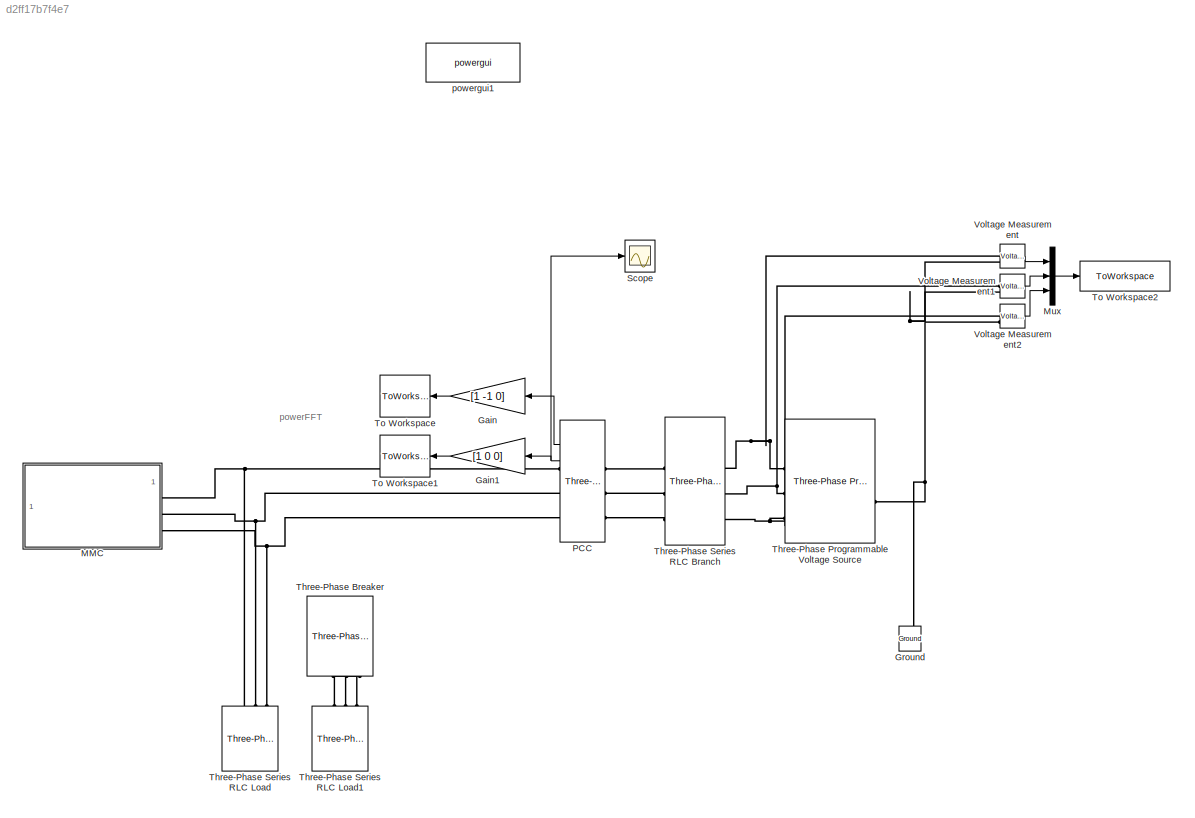
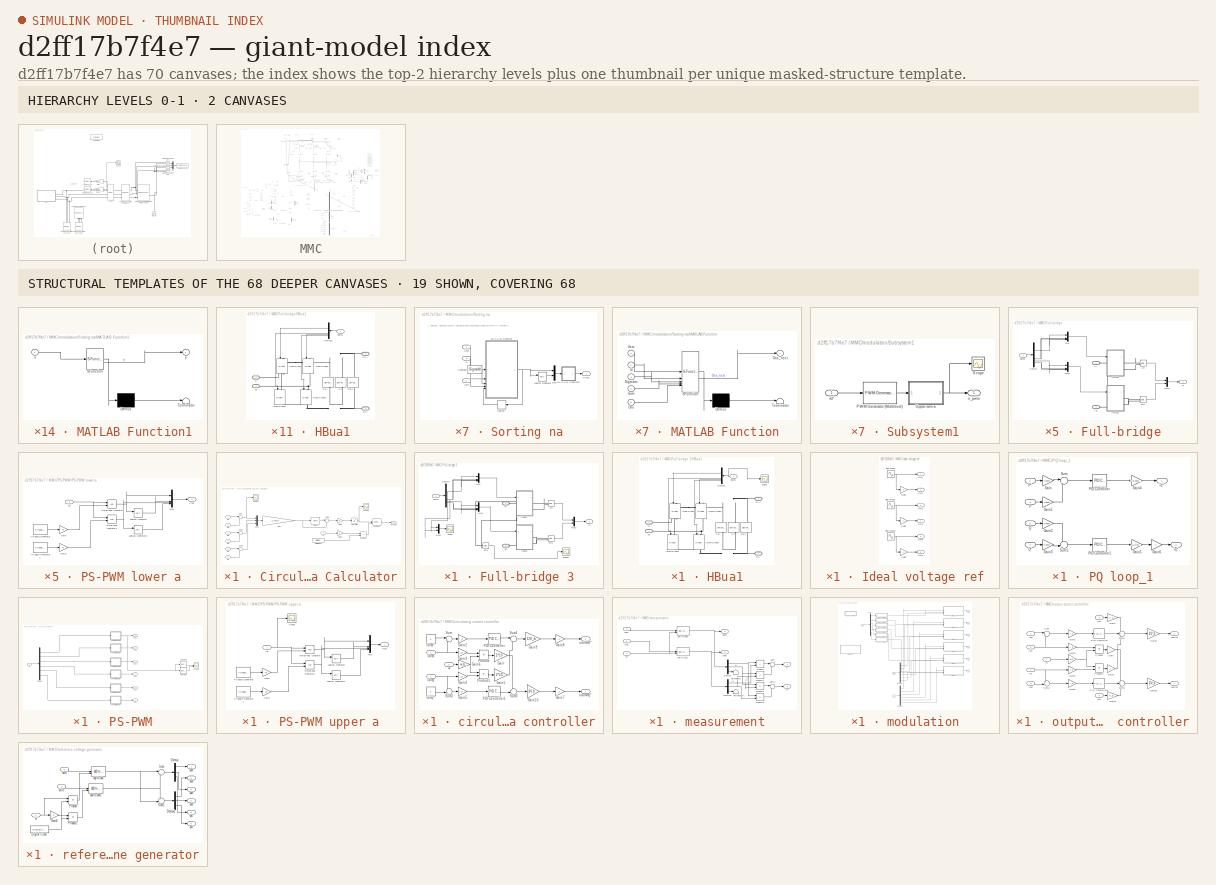
[diagram: thumbnail index - top-2 hierarchy levels (2 canvases) + 19 structural-template representatives of the remaining 68 canvases]
MODEL slx_d2ff17b7f4e7
KIND model
CONFIG AbsTol = auto
CONFIG EnableMultiTasking = off
CONFIG FixedStep = Ts_Power
CONFIG MaxStep = auto
CONFIG MinStep = auto
CONFIG RelTol = auto
CONFIG SampleTimeConstraint = Unconstrained
CONFIG SolverName = ode23t
CONFIG StartTime = 0.0
CONFIG StopTime = .3
BLOCK [Gain] Gain
  Gain = [1 -1 0]
  Multiplication = Matrix(K*u)
  NameLocation = top
BLOCK [Gain] Gain1
  Gain = [1 0 0]
  Multiplication = Matrix(K*u)
  NameLocation = top
BLOCK [Reference] Ground  REF=spsGroundLib/Ground
  LibrarySourceBlock = sps_lib/Utilities/Ground
  NameLocation = right
  SourceBlock = spsGroundLib/Ground
  SourceType = Ground
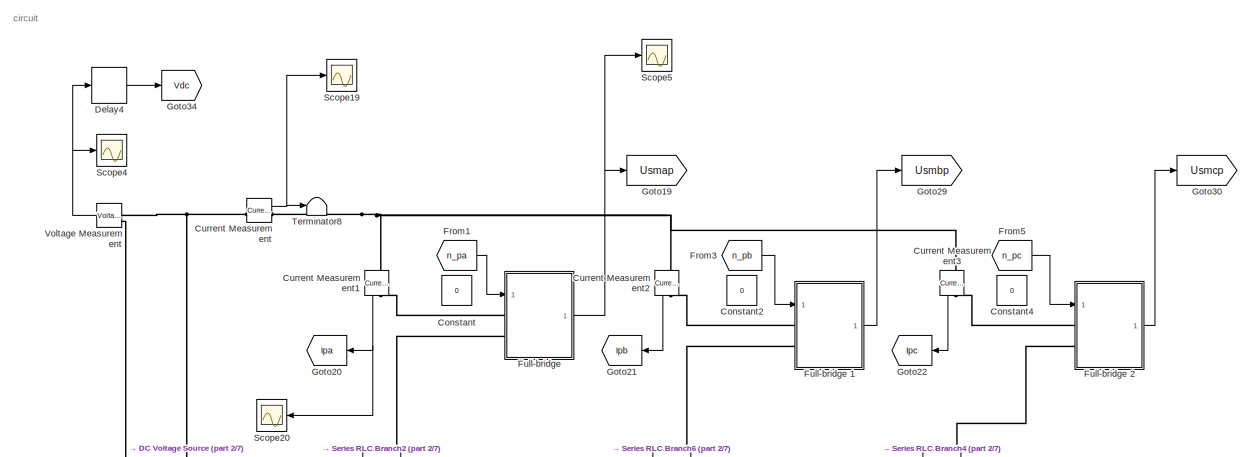
[diagram: MMC - part 1/7, top center region]
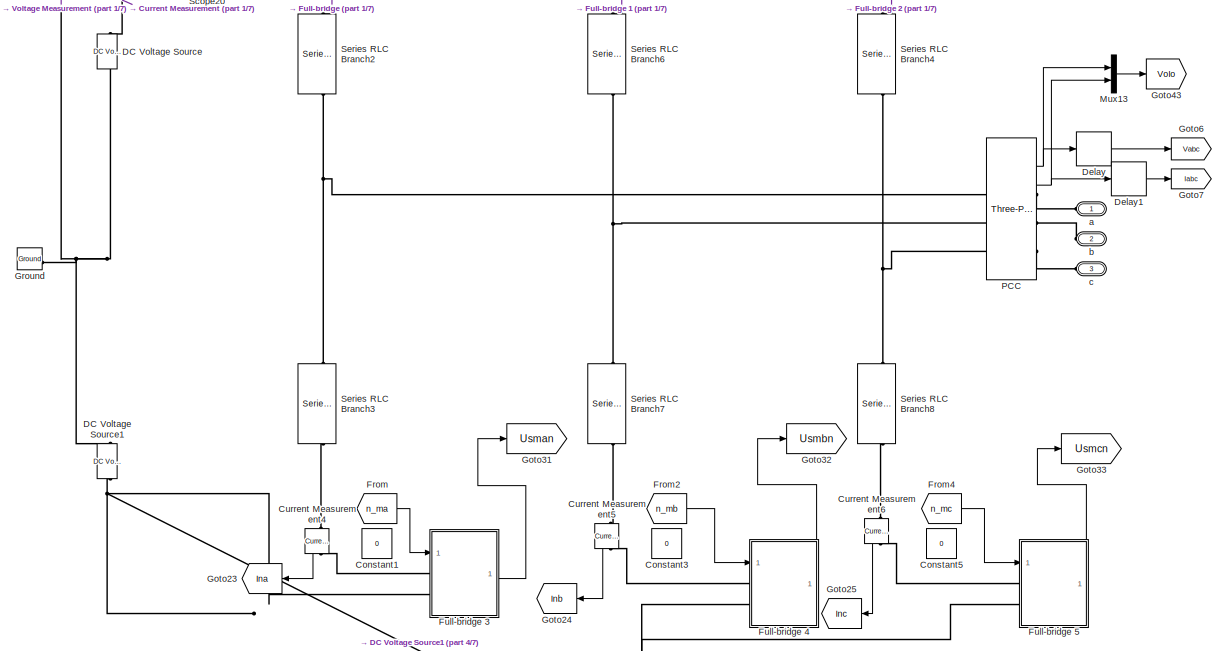
[diagram: MMC - part 2/7, central region]
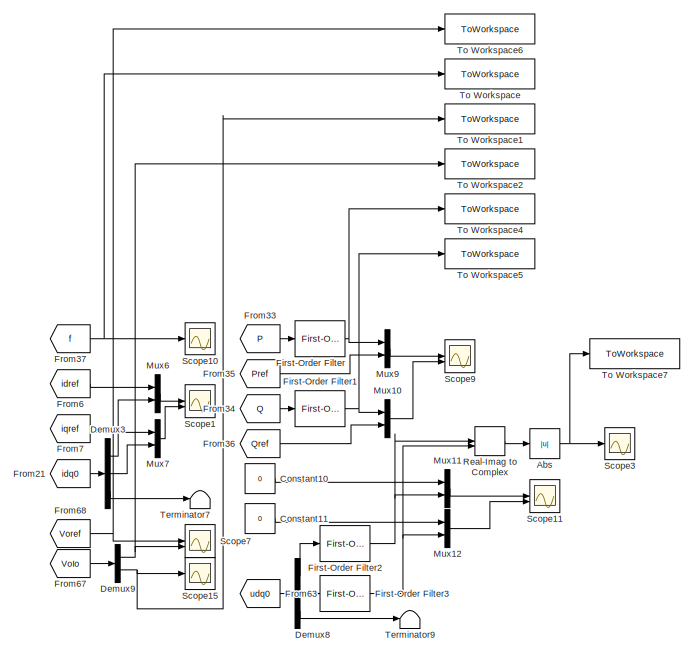
[diagram: MMC - part 3/7, middle right region]
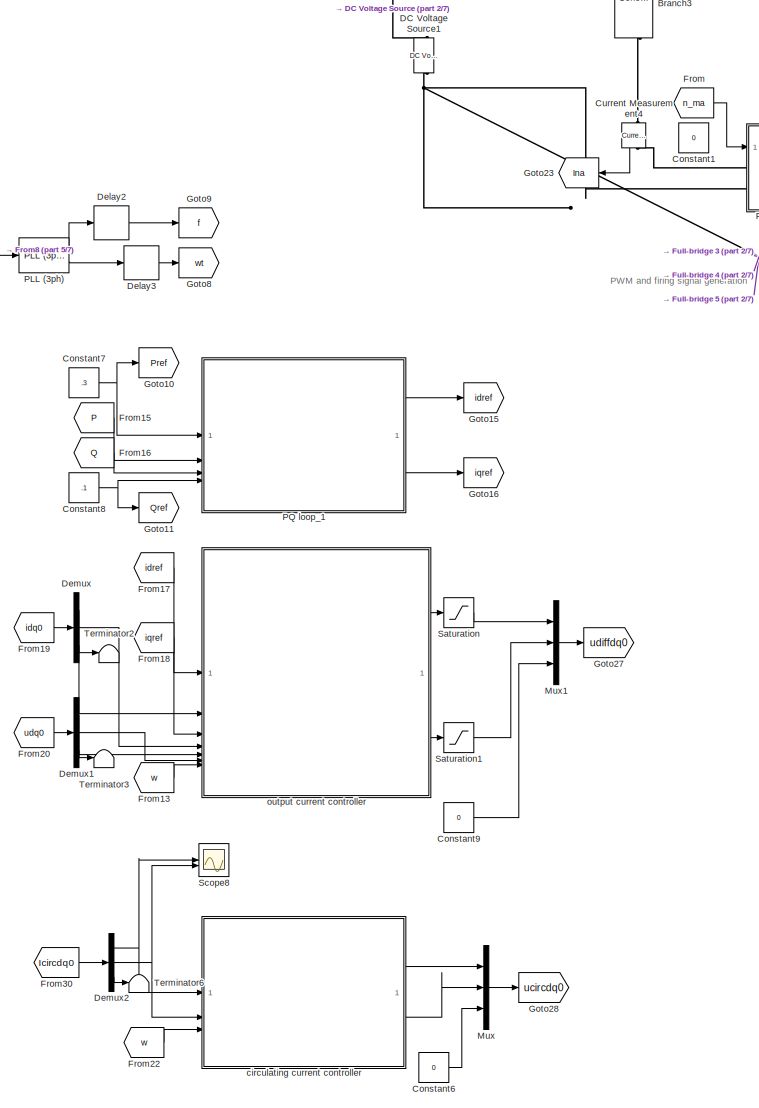
[diagram: MMC - part 4/7, middle left region]
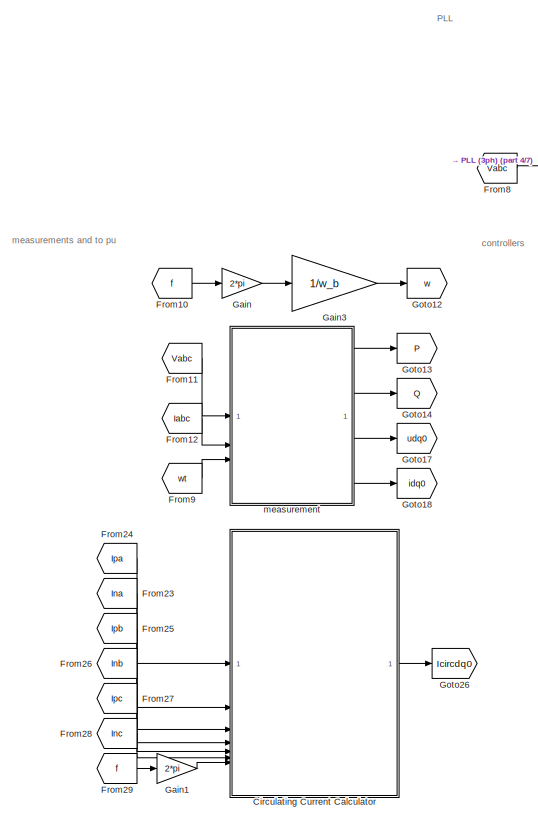
[diagram: MMC - part 5/7, middle left region]
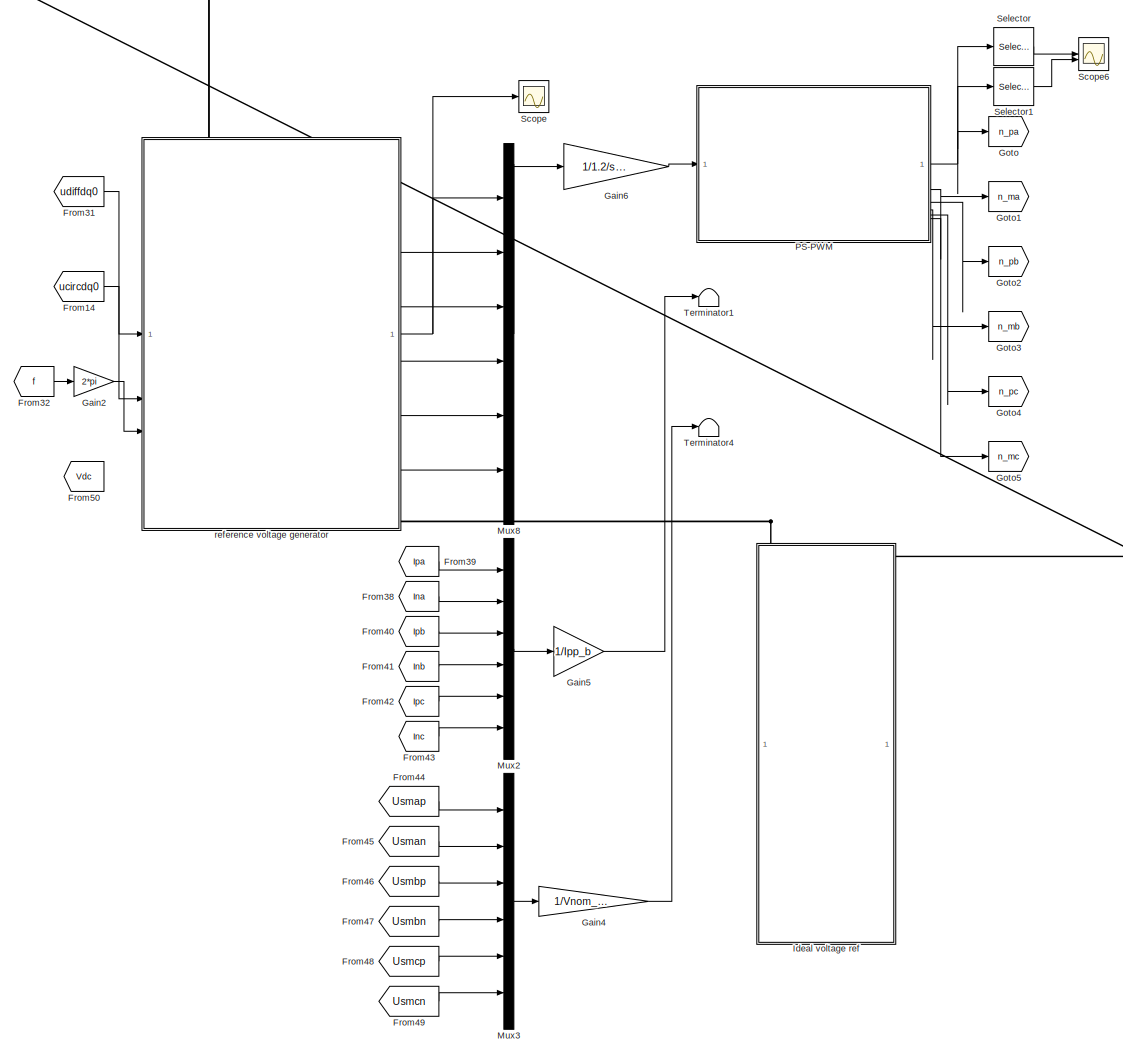
[diagram: MMC - part 6/7, bottom center region]
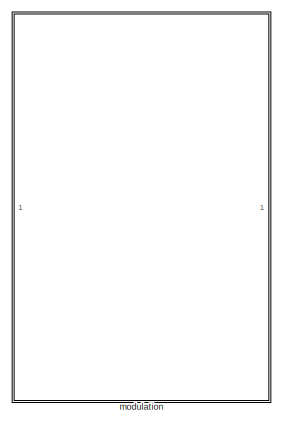
[diagram: MMC - part 7/7, bottom right region]
BLOCK [SubSystem] MMC
BLOCK [Abs] MMC/Abs
  SaturateOnIntegerOverflow = off
BLOCK [SubSystem] MMC/Circulating Current Calculator
BLOCK [DigitalClock] MMC/Circulating Current Calculator/Digital Clock
  SampleTime = Ts_Power
BLOCK [Gain] MMC/Circulating Current Calculator/Gain
  Gain = 1/Ipp_b
BLOCK [Gain] MMC/Circulating Current Calculator/Gain1
  Gain = .5
BLOCK [Gain] MMC/Circulating Current Calculator/Gain2
  Gain = -2
BLOCK [Reference] MMC/Circulating Current Calculator/Mean  REF=spsMeanLib/Mean
  LibrarySourceBlock = sps_lib/Sensors and Measurements/Mean
  SourceBlock = spsMeanLib/Mean
  SourceType = Mean
BLOCK [Mux] MMC/Circulating Current Calculator/Mux1
  DisplayOption = bar
  Inputs = 3
BLOCK [Product] MMC/Circulating Current Calculator/Product
BLOCK [Saturate] MMC/Circulating Current Calculator/Saturation
  LowerLimit = -1.2
  UpperLimit = 1.2
BLOCK [Scope] MMC/Circulating Current Calculator/Scope
  Floating = off
  NumInputPorts = 1
  ScopeSpecificationString = Simulink.scopes.TimeScopeBlockCfg('CurrentConfiguration', extmgr.ConfigurationSet(extmgr.Configuration('Core','General UI',true),extmgr.Configuration('Core','Source UI',true),extmgr.Configuration('Sources','WiredSimulink',true,'DataLoggingVariableName','ScopeData9'),extmgr.Configuration('Visuals','Time Domain',true,'SerializedDisplays',{struct('MinYLimReal','-186.41809','MaxYLimReal','749.99029','...<+1536ch>
BLOCK [Scope] MMC/Circulating Current Calculator/Scope1
  Floating = off
  NumInputPorts = 1
  ScopeSpecificationString = Simulink.scopes.TimeScopeBlockCfg('CurrentConfiguration', extmgr.ConfigurationSet(extmgr.Configuration('Core','General UI',true),extmgr.Configuration('Core','Source UI',true),extmgr.Configuration('Sources','WiredSimulink',true,'DataLoggingVariableName','ScopeData2'),extmgr.Configuration('Visuals','Time Domain',true,'SerializedDisplays',{struct('MinYLimReal','-0.03181','MaxYLimReal','0.03931','YLab...<+1561ch>
BLOCK [Sum] MMC/Circulating Current Calculator/Sum
  Inputs = |++
BLOCK [Sum] MMC/Circulating Current Calculator/Sum1
  Inputs = |++
BLOCK [Sum] MMC/Circulating Current Calculator/Sum2
  Inputs = |++
BLOCK [Sum] MMC/Circulating Current Calculator/Sum3
  Inputs = |-+
BLOCK [Reference] MMC/Circulating Current Calculator/abc to dq0  REF=spsabctodq0Lib/abc to dq0
  LibrarySourceBlock = sps_lib/Control/abc to dq0
  SourceBlock = spsabctodq0Lib/abc to dq0
  SourceType = abc to dq0 Transformation
BLOCK [Outport] MMC/Circulating Current Calculator/icircdq0
BLOCK [Inport] MMC/Circulating Current Calculator/ina
  Port = 2
BLOCK [Inport] MMC/Circulating Current Calculator/inb
  Port = 4
BLOCK [Inport] MMC/Circulating Current Calculator/inc
  Port = 6
BLOCK [Inport] MMC/Circulating Current Calculator/ipa
BLOCK [Inport] MMC/Circulating Current Calculator/ipb
  Port = 3
BLOCK [Inport] MMC/Circulating Current Calculator/ipc
  Port = 5
BLOCK [Inport] MMC/Circulating Current Calculator/w
  Port = 7
BLOCK [Constant] MMC/Constant
  Commented = on
  Value = 0
BLOCK [Constant] MMC/Constant1
  Commented = on
  Value = 0
BLOCK [Constant] MMC/Constant10
  Value = 0
BLOCK [Constant] MMC/Constant11
  Value = 0
BLOCK [Constant] MMC/Constant2
  Commented = on
  Value = 0
BLOCK [Constant] MMC/Constant3
  Commented = on
  Value = 0
BLOCK [Constant] MMC/Constant4
  Commented = on
  Value = 0
BLOCK [Constant] MMC/Constant5
  Commented = on
  Value = 0
BLOCK [Constant] MMC/Constant6
  Value = 0
BLOCK [Constant] MMC/Constant7
  Value = .3
BLOCK [Constant] MMC/Constant8
  Value = .1
BLOCK [Constant] MMC/Constant9
  Value = 0
BLOCK [Reference] MMC/Current Measurement  REF=spsCurrentMeasurementLib/Current Measurement
  LibrarySourceBlock = sps_lib/Sensors and Measurements/Current Measurement
  SourceBlock = spsCurrentMeasurementLib/Current Measurement
  SourceType = Current Measurement
  UserDataPersistent = on
BLOCK [Reference] MMC/Current Measurement1  REF=spsCurrentMeasurementLib/Current Measurement
  LibrarySourceBlock = sps_lib/Sensors and Measurements/Current Measurement
  NameLocation = left
  SourceBlock = spsCurrentMeasurementLib/Current Measurement
  SourceType = Current Measurement
  UserDataPersistent = on
BLOCK [Reference] MMC/Current Measurement2  REF=spsCurrentMeasurementLib/Current Measurement
  LibrarySourceBlock = sps_lib/Sensors and Measurements/Current Measurement
  NameLocation = left
  SourceBlock = spsCurrentMeasurementLib/Current Measurement
  SourceType = Current Measurement
  UserDataPersistent = on
BLOCK [Reference] MMC/Current Measurement3  REF=spsCurrentMeasurementLib/Current Measurement
  LibrarySourceBlock = sps_lib/Sensors and Measurements/Current Measurement
  NameLocation = left
  SourceBlock = spsCurrentMeasurementLib/Current Measurement
  SourceType = Current Measurement
  UserDataPersistent = on
BLOCK [Reference] MMC/Current Measurement4  REF=spsCurrentMeasurementLib/Current Measurement
  LibrarySourceBlock = sps_lib/Sensors and Measurements/Current Measurement
  NameLocation = left
  SourceBlock = spsCurrentMeasurementLib/Current Measurement
  SourceType = Current Measurement
  UserDataPersistent = on
BLOCK [Reference] MMC/Current Measurement5  REF=spsCurrentMeasurementLib/Current Measurement
  LibrarySourceBlock = sps_lib/Sensors and Measurements/Current Measurement
  NameLocation = left
  SourceBlock = spsCurrentMeasurementLib/Current Measurement
  SourceType = Current Measurement
  UserDataPersistent = on
BLOCK [Reference] MMC/Current Measurement6  REF=spsCurrentMeasurementLib/Current Measurement
  LibrarySourceBlock = sps_lib/Sensors and Measurements/Current Measurement
  NameLocation = left
  SourceBlock = spsCurrentMeasurementLib/Current Measurement
  SourceType = Current Measurement
  UserDataPersistent = on
BLOCK [Reference] MMC/DC Voltage Source  REF=spsDCVoltageSourceLib/DC Voltage Source
  LibrarySourceBlock = sps_lib/Sources/DC Voltage Source
  SourceBlock = spsDCVoltageSourceLib/DC Voltage Source
  SourceType = DC Voltage Source
BLOCK [Reference] MMC/DC Voltage Source1  REF=spsDCVoltageSourceLib/DC Voltage Source
  LibrarySourceBlock = sps_lib/Sources/DC Voltage Source
  SourceBlock = spsDCVoltageSourceLib/DC Voltage Source
  SourceType = DC Voltage Source
BLOCK [Delay] MMC/Delay
  DelayLength = 1
  InputPortMap = u0
  SampleTime = Ts_Power
BLOCK [Delay] MMC/Delay1
  DelayLength = 1
  InputPortMap = u0
  SampleTime = Ts_Power
BLOCK [Delay] MMC/Delay2
  DelayLength = 1
  InitialCondition = 50
  InputPortMap = u0
  SampleTime = Ts_Power
BLOCK [Delay] MMC/Delay3
  DelayLength = 1
  InputPortMap = u0
  SampleTime = Ts_Power
BLOCK [Delay] MMC/Delay4
  DelayLength = 1
  InputPortMap = u0
  InputProcessing = Columns as channels (frame based)
BLOCK [Demux] MMC/Demux
  Outputs = 3
BLOCK [Demux] MMC/Demux1
  Outputs = 3
BLOCK [Demux] MMC/Demux2
  Outputs = 3
BLOCK [Demux] MMC/Demux3
  Outputs = 3
BLOCK [Demux] MMC/Demux8
  Outputs = 3
BLOCK [Demux] MMC/Demux9
  Outputs = 2
BLOCK [Reference] MMC/First-Order Filter  REF=spsFirstOrderFilterLib/First-Order
Filter
  LibrarySourceBlock = sps_lib/Control/Filters/First-Order\nFilter
  SourceBlock = spsFirstOrderFilterLib/First-Order\nFilter
  SourceType = First-Order Filter
BLOCK [Reference] MMC/First-Order Filter1  REF=spsFirstOrderFilterLib/First-Order
Filter
  LibrarySourceBlock = sps_lib/Control/Filters/First-Order\nFilter
  SourceBlock = spsFirstOrderFilterLib/First-Order\nFilter
  SourceType = First-Order Filter
BLOCK [Reference] MMC/First-Order Filter2  REF=spsFirstOrderFilterLib/First-Order
Filter
  LibrarySourceBlock = sps_lib/Control/Filters/First-Order\nFilter
  SourceBlock = spsFirstOrderFilterLib/First-Order\nFilter
  SourceType = First-Order Filter
BLOCK [Reference] MMC/First-Order Filter3  REF=spsFirstOrderFilterLib/First-Order
Filter
  LibrarySourceBlock = sps_lib/Control/Filters/First-Order\nFilter
  SourceBlock = spsFirstOrderFilterLib/First-Order\nFilter
  SourceType = First-Order Filter
BLOCK [From] MMC/From
  GotoTag = n_ma
BLOCK [From] MMC/From1
  GotoTag = n_pa
BLOCK [From] MMC/From10
  GotoTag = f
BLOCK [From] MMC/From11
  GotoTag = Vabc
BLOCK [From] MMC/From12
  GotoTag = Iabc
BLOCK [From] MMC/From13
  GotoTag = w
BLOCK [From] MMC/From14
  GotoTag = ucircdq0
BLOCK [From] MMC/From15
  GotoTag = P
BLOCK [From] MMC/From16
  GotoTag = Q
BLOCK [From] MMC/From17
  GotoTag = idref
BLOCK [From] MMC/From18
  GotoTag = iqref
BLOCK [From] MMC/From19
  GotoTag = idq0
BLOCK [From] MMC/From2
  GotoTag = n_mb
BLOCK [From] MMC/From20
  GotoTag = udq0
BLOCK [From] MMC/From21
  GotoTag = idq0
BLOCK [From] MMC/From22
  GotoTag = w
BLOCK [From] MMC/From23
  GotoTag = Ina
  NameLocation = top
BLOCK [From] MMC/From24
  GotoTag = Ipa
  NameLocation = top
BLOCK [From] MMC/From25
  GotoTag = Ipb
BLOCK [From] MMC/From26
  GotoTag = Inb
BLOCK [From] MMC/From27
  GotoTag = Ipc
BLOCK [From] MMC/From28
  GotoTag = Inc
BLOCK [From] MMC/From29
  GotoTag = f
BLOCK [From] MMC/From3
  GotoTag = n_pb
BLOCK [From] MMC/From30
  GotoTag = Icircdq0
BLOCK [From] MMC/From31
  GotoTag = udiffdq0
BLOCK [From] MMC/From32
  GotoTag = f
BLOCK [From] MMC/From33
  GotoTag = P
BLOCK [From] MMC/From34
  GotoTag = Q
BLOCK [From] MMC/From35
  GotoTag = Pref
BLOCK [From] MMC/From36
  GotoTag = Qref
BLOCK [From] MMC/From37
  GotoTag = f
BLOCK [From] MMC/From38
  GotoTag = Ina
  NameLocation = top
BLOCK [From] MMC/From39
  GotoTag = Ipa
  NameLocation = top
BLOCK [From] MMC/From4
  GotoTag = n_mc
BLOCK [From] MMC/From40
  GotoTag = Ipb
BLOCK [From] MMC/From41
  GotoTag = Inb
BLOCK [From] MMC/From42
  GotoTag = Ipc
BLOCK [From] MMC/From43
  GotoTag = Inc
BLOCK [From] MMC/From44
  GotoTag = Usmap
BLOCK [From] MMC/From45
  GotoTag = Usman
BLOCK [From] MMC/From46
  GotoTag = Usmbp
BLOCK [From] MMC/From47
  GotoTag = Usmbn
BLOCK [From] MMC/From48
  GotoTag = Usmcp
BLOCK [From] MMC/From49
  GotoTag = Usmcn
BLOCK [From] MMC/From5
  GotoTag = n_pc
BLOCK [From] MMC/From50
  GotoTag = Vdc
BLOCK [From] MMC/From6
  GotoTag = idref
BLOCK [From] MMC/From63
  GotoTag = udq0
BLOCK [From] MMC/From67
  GotoTag = VoIo
BLOCK [From] MMC/From68
  GotoTag = Voref
BLOCK [From] MMC/From7
  GotoTag = iqref
BLOCK [From] MMC/From8
  GotoTag = Vabc
BLOCK [From] MMC/From9
  GotoTag = wt
BLOCK [SubSystem] MMC/Full-bridge
BLOCK [SubSystem] MMC/Full-bridge 1
BLOCK [Demux] MMC/Full-bridge 1/Demux
BLOCK [SubSystem] MMC/Full-bridge 1/HBua1
BLOCK [Reference] MMC/Full-bridge 1/HBua1/Ch  REF=spsSeriesRLCBranchLib/Series RLC Branch
  NameLocation = left
  SourceBlock = spsSeriesRLCBranchLib/Series RLC Branch
  SourceType = Series RLC Branch
BLOCK [Reference] MMC/Full-bridge 1/HBua1/Cm  REF=spsSeriesRLCBranchLib/Series RLC Branch
  NameLocation = left
  SourceBlock = spsSeriesRLCBranchLib/Series RLC Branch
  SourceType = Series RLC Branch
BLOCK [PMIOPort] MMC/Full-bridge 1/HBua1/DC+
  Port = 3
  Side = Right
BLOCK [PMIOPort] MMC/Full-bridge 1/HBua1/DC-
  Port = 4
  Side = Right
BLOCK [Demux] MMC/Full-bridge 1/HBua1/Demux1
BLOCK [Reference] MMC/Full-bridge 1/HBua1/IGBT//Diode  REF=spsIGBTDiodeLib/IGBT//Diode
  NameLocation = right
  SourceBlock = spsIGBTDiodeLib/IGBT//Diode
  SourceType = IGBT/Diode
BLOCK [Reference] MMC/Full-bridge 1/HBua1/IGBT//Diode1  REF=spsIGBTDiodeLib/IGBT//Diode
  NameLocation = right
  SourceBlock = spsIGBTDiodeLib/IGBT//Diode
  SourceType = IGBT/Diode
BLOCK [Reference] MMC/Full-bridge 1/HBua1/IGBT//Diode2  REF=spsIGBTDiodeLib/IGBT//Diode
  NameLocation = right
  SourceBlock = spsIGBTDiodeLib/IGBT//Diode
  SourceType = IGBT/Diode
BLOCK [Reference] MMC/Full-bridge 1/HBua1/IGBT//Diode3  REF=spsIGBTDiodeLib/IGBT//Diode
  NameLocation = right
  SourceBlock = spsIGBTDiodeLib/IGBT//Diode
  SourceType = IGBT/Diode
BLOCK [Reference] MMC/Full-bridge 1/HBua1/Rdis  REF=spsSeriesRLCBranchLib/Series RLC Branch
  NameLocation = right
  SourceBlock = spsSeriesRLCBranchLib/Series RLC Branch
  SourceType = Series RLC Branch
BLOCK [PMIOPort] MMC/Full-bridge 1/HBua1/VA
  Side = Left
BLOCK [PMIOPort] MMC/Full-bridge 1/HBua1/VB
  Port = 2
  Side = Left
BLOCK [Inport] MMC/Full-bridge 1/HBua1/gates
BLOCK [SubSystem] MMC/Full-bridge 1/HBua2
BLOCK [Reference] MMC/Full-bridge 1/HBua2/Ch  REF=spsSeriesRLCBranchLib/Series RLC Branch
  NameLocation = left
  SourceBlock = spsSeriesRLCBranchLib/Series RLC Branch
  SourceType = Series RLC Branch
BLOCK [Reference] MMC/Full-bridge 1/HBua2/Cm  REF=spsSeriesRLCBranchLib/Series RLC Branch
  NameLocation = left
  SourceBlock = spsSeriesRLCBranchLib/Series RLC Branch
  SourceType = Series RLC Branch
BLOCK [PMIOPort] MMC/Full-bridge 1/HBua2/DC+
  Port = 3
  Side = Right
BLOCK [PMIOPort] MMC/Full-bridge 1/HBua2/DC-
  Port = 4
  Side = Right
BLOCK [Demux] MMC/Full-bridge 1/HBua2/Demux1
BLOCK [Reference] MMC/Full-bridge 1/HBua2/IGBT//Diode  REF=spsIGBTDiodeLib/IGBT//Diode
  NameLocation = right
  SourceBlock = spsIGBTDiodeLib/IGBT//Diode
  SourceType = IGBT/Diode
BLOCK [Reference] MMC/Full-bridge 1/HBua2/IGBT//Diode1  REF=spsIGBTDiodeLib/IGBT//Diode
  NameLocation = right
  SourceBlock = spsIGBTDiodeLib/IGBT//Diode
  SourceType = IGBT/Diode
BLOCK [Reference] MMC/Full-bridge 1/HBua2/IGBT//Diode2  REF=spsIGBTDiodeLib/IGBT//Diode
  NameLocation = right
  SourceBlock = spsIGBTDiodeLib/IGBT//Diode
  SourceType = IGBT/Diode
BLOCK [Reference] MMC/Full-bridge 1/HBua2/IGBT//Diode3  REF=spsIGBTDiodeLib/IGBT//Diode
  NameLocation = right
  SourceBlock = spsIGBTDiodeLib/IGBT//Diode
  SourceType = IGBT/Diode
BLOCK [Reference] MMC/Full-bridge 1/HBua2/Rdis  REF=spsSeriesRLCBranchLib/Series RLC Branch
  NameLocation = right
  SourceBlock = spsSeriesRLCBranchLib/Series RLC Branch
  SourceType = Series RLC Branch
BLOCK [PMIOPort] MMC/Full-bridge 1/HBua2/VA
  Side = Left
BLOCK [PMIOPort] MMC/Full-bridge 1/HBua2/VB
  Port = 2
  Side = Left
BLOCK [Inport] MMC/Full-bridge 1/HBua2/gates
BLOCK [Mux] MMC/Full-bridge 1/Mux
  DisplayOption = bar
BLOCK [Mux] MMC/Full-bridge 1/Mux1
  DisplayOption = bar
BLOCK [Mux] MMC/Full-bridge 1/Mux2
  DisplayOption = bar
  Inputs = 2
BLOCK [PMIOPort] MMC/Full-bridge 1/VA
  Side = Left
BLOCK [PMIOPort] MMC/Full-bridge 1/VB
  Port = 2
  Side = Left
BLOCK [Inport] MMC/Full-bridge 1/gates
BLOCK [Outport] MMC/Full-bridge 1/m
BLOCK [Reference] MMC/Full-bridge 1/vm  REF=spsVoltageMeasurementLib/Voltage Measurement
  SourceBlock = spsVoltageMeasurementLib/Voltage Measurement
  SourceType = Voltage Measurement
  UserDataPersistent = on
BLOCK [Reference] MMC/Full-bridge 1/vm1  REF=spsVoltageMeasurementLib/Voltage Measurement
  SourceBlock = spsVoltageMeasurementLib/Voltage Measurement
  SourceType = Voltage Measurement
  UserDataPersistent = on
BLOCK [SubSystem] MMC/Full-bridge 2
BLOCK [Demux] MMC/Full-bridge 2/Demux
BLOCK [SubSystem] MMC/Full-bridge 2/HBua1
BLOCK [Reference] MMC/Full-bridge 2/HBua1/Ch  REF=spsSeriesRLCBranchLib/Series RLC Branch
  NameLocation = left
  SourceBlock = spsSeriesRLCBranchLib/Series RLC Branch
  SourceType = Series RLC Branch
BLOCK [Reference] MMC/Full-bridge 2/HBua1/Cm  REF=spsSeriesRLCBranchLib/Series RLC Branch
  NameLocation = left
  SourceBlock = spsSeriesRLCBranchLib/Series RLC Branch
  SourceType = Series RLC Branch
BLOCK [PMIOPort] MMC/Full-bridge 2/HBua1/DC+
  Port = 3
  Side = Right
BLOCK [PMIOPort] MMC/Full-bridge 2/HBua1/DC-
  Port = 4
  Side = Right
BLOCK [Demux] MMC/Full-bridge 2/HBua1/Demux1
BLOCK [Reference] MMC/Full-bridge 2/HBua1/IGBT//Diode  REF=spsIGBTDiodeLib/IGBT//Diode
  NameLocation = right
  SourceBlock = spsIGBTDiodeLib/IGBT//Diode
  SourceType = IGBT/Diode
BLOCK [Reference] MMC/Full-bridge 2/HBua1/IGBT//Diode1  REF=spsIGBTDiodeLib/IGBT//Diode
  NameLocation = right
  SourceBlock = spsIGBTDiodeLib/IGBT//Diode
  SourceType = IGBT/Diode
BLOCK [Reference] MMC/Full-bridge 2/HBua1/IGBT//Diode2  REF=spsIGBTDiodeLib/IGBT//Diode
  NameLocation = right
  SourceBlock = spsIGBTDiodeLib/IGBT//Diode
  SourceType = IGBT/Diode
BLOCK [Reference] MMC/Full-bridge 2/HBua1/IGBT//Diode3  REF=spsIGBTDiodeLib/IGBT//Diode
  NameLocation = right
  SourceBlock = spsIGBTDiodeLib/IGBT//Diode
  SourceType = IGBT/Diode
BLOCK [Reference] MMC/Full-bridge 2/HBua1/Rdis  REF=spsSeriesRLCBranchLib/Series RLC Branch
  NameLocation = right
  SourceBlock = spsSeriesRLCBranchLib/Series RLC Branch
  SourceType = Series RLC Branch
BLOCK [PMIOPort] MMC/Full-bridge 2/HBua1/VA
  Side = Left
BLOCK [PMIOPort] MMC/Full-bridge 2/HBua1/VB
  Port = 2
  Side = Left
BLOCK [Inport] MMC/Full-bridge 2/HBua1/gates
BLOCK [SubSystem] MMC/Full-bridge 2/HBua2
BLOCK [Reference] MMC/Full-bridge 2/HBua2/Ch  REF=spsSeriesRLCBranchLib/Series RLC Branch
  NameLocation = left
  SourceBlock = spsSeriesRLCBranchLib/Series RLC Branch
  SourceType = Series RLC Branch
BLOCK [Reference] MMC/Full-bridge 2/HBua2/Cm  REF=spsSeriesRLCBranchLib/Series RLC Branch
  NameLocation = left
  SourceBlock = spsSeriesRLCBranchLib/Series RLC Branch
  SourceType = Series RLC Branch
BLOCK [PMIOPort] MMC/Full-bridge 2/HBua2/DC+
  Port = 3
  Side = Right
BLOCK [PMIOPort] MMC/Full-bridge 2/HBua2/DC-
  Port = 4
  Side = Right
BLOCK [Demux] MMC/Full-bridge 2/HBua2/Demux1
BLOCK [Reference] MMC/Full-bridge 2/HBua2/IGBT//Diode  REF=spsIGBTDiodeLib/IGBT//Diode
  NameLocation = right
  SourceBlock = spsIGBTDiodeLib/IGBT//Diode
  SourceType = IGBT/Diode
BLOCK [Reference] MMC/Full-bridge 2/HBua2/IGBT//Diode1  REF=spsIGBTDiodeLib/IGBT//Diode
  NameLocation = right
  SourceBlock = spsIGBTDiodeLib/IGBT//Diode
  SourceType = IGBT/Diode
BLOCK [Reference] MMC/Full-bridge 2/HBua2/IGBT//Diode2  REF=spsIGBTDiodeLib/IGBT//Diode
  NameLocation = right
  SourceBlock = spsIGBTDiodeLib/IGBT//Diode
  SourceType = IGBT/Diode
BLOCK [Reference] MMC/Full-bridge 2/HBua2/IGBT//Diode3  REF=spsIGBTDiodeLib/IGBT//Diode
  NameLocation = right
  SourceBlock = spsIGBTDiodeLib/IGBT//Diode
  SourceType = IGBT/Diode
BLOCK [Reference] MMC/Full-bridge 2/HBua2/Rdis  REF=spsSeriesRLCBranchLib/Series RLC Branch
  NameLocation = right
  SourceBlock = spsSeriesRLCBranchLib/Series RLC Branch
  SourceType = Series RLC Branch
BLOCK [PMIOPort] MMC/Full-bridge 2/HBua2/VA
  Side = Left
BLOCK [PMIOPort] MMC/Full-bridge 2/HBua2/VB
  Port = 2
  Side = Left
BLOCK [Inport] MMC/Full-bridge 2/HBua2/gates
BLOCK [Mux] MMC/Full-bridge 2/Mux
  DisplayOption = bar
BLOCK [Mux] MMC/Full-bridge 2/Mux1
  DisplayOption = bar
BLOCK [Mux] MMC/Full-bridge 2/Mux2
  DisplayOption = bar
  Inputs = 2
BLOCK [PMIOPort] MMC/Full-bridge 2/VA
  Side = Left
BLOCK [PMIOPort] MMC/Full-bridge 2/VB
  Port = 2
  Side = Left
BLOCK [Inport] MMC/Full-bridge 2/gates
BLOCK [Outport] MMC/Full-bridge 2/m
BLOCK [Reference] MMC/Full-bridge 2/vm  REF=spsVoltageMeasurementLib/Voltage Measurement
  SourceBlock = spsVoltageMeasurementLib/Voltage Measurement
  SourceType = Voltage Measurement
  UserDataPersistent = on
BLOCK [Reference] MMC/Full-bridge 2/vm1  REF=spsVoltageMeasurementLib/Voltage Measurement
  SourceBlock = spsVoltageMeasurementLib/Voltage Measurement
  SourceType = Voltage Measurement
  UserDataPersistent = on
BLOCK [SubSystem] MMC/Full-bridge 3
BLOCK [Demux] MMC/Full-bridge 3/Demux
BLOCK [SubSystem] MMC/Full-bridge 3/HBua1
BLOCK [Reference] MMC/Full-bridge 3/HBua1/Ch  REF=spsSeriesRLCBranchLib/Series RLC Branch
  NameLocation = left
  SourceBlock = spsSeriesRLCBranchLib/Series RLC Branch
  SourceType = Series RLC Branch
BLOCK [Reference] MMC/Full-bridge 3/HBua1/Cm  REF=spsSeriesRLCBranchLib/Series RLC Branch
  NameLocation = left
  SourceBlock = spsSeriesRLCBranchLib/Series RLC Branch
  SourceType = Series RLC Branch
BLOCK [PMIOPort] MMC/Full-bridge 3/HBua1/DC+
  Port = 3
  Side = Right
BLOCK [PMIOPort] MMC/Full-bridge 3/HBua1/DC-
  Port = 4
  Side = Right
BLOCK [Demux] MMC/Full-bridge 3/HBua1/Demux1
BLOCK [Reference] MMC/Full-bridge 3/HBua1/IGBT//Diode  REF=spsIGBTDiodeLib/IGBT//Diode
  NameLocation = right
  SourceBlock = spsIGBTDiodeLib/IGBT//Diode
  SourceType = IGBT/Diode
BLOCK [Reference] MMC/Full-bridge 3/HBua1/IGBT//Diode1  REF=spsIGBTDiodeLib/IGBT//Diode
  NameLocation = right
  SourceBlock = spsIGBTDiodeLib/IGBT//Diode
  SourceType = IGBT/Diode
BLOCK [Reference] MMC/Full-bridge 3/HBua1/IGBT//Diode2  REF=spsIGBTDiodeLib/IGBT//Diode
  NameLocation = right
  SourceBlock = spsIGBTDiodeLib/IGBT//Diode
  SourceType = IGBT/Diode
BLOCK [Reference] MMC/Full-bridge 3/HBua1/IGBT//Diode3  REF=spsIGBTDiodeLib/IGBT//Diode
  NameLocation = right
  SourceBlock = spsIGBTDiodeLib/IGBT//Diode
  SourceType = IGBT/Diode
BLOCK [Reference] MMC/Full-bridge 3/HBua1/Rdis  REF=spsSeriesRLCBranchLib/Series RLC Branch
  NameLocation = right
  SourceBlock = spsSeriesRLCBranchLib/Series RLC Branch
  SourceType = Series RLC Branch
BLOCK [Scope] MMC/Full-bridge 3/HBua1/Scope
  Floating = off
  NumInputPorts = 1
  ScopeSpecificationString = Simulink.scopes.TimeScopeBlockCfg('CurrentConfiguration', extmgr.ConfigurationSet(extmgr.Configuration('Core','General UI',true),extmgr.Configuration('Core','Source UI',true),extmgr.Configuration('Sources','WiredSimulink',true,'DataLoggingVariableName','ScopeData2'),extmgr.Configuration('Visuals','Time Domain',true,'SerializedDisplays',{struct('MinYLimReal','-0.125','MaxYLimReal','1.125','YLabelRe...<+1593ch>
BLOCK [PMIOPort] MMC/Full-bridge 3/HBua1/VA
  Side = Left
BLOCK [PMIOPort] MMC/Full-bridge 3/HBua1/VB
  Port = 2
  Side = Left
BLOCK [Inport] MMC/Full-bridge 3/HBua1/gates
BLOCK [SubSystem] MMC/Full-bridge 3/HBua2
BLOCK [Reference] MMC/Full-bridge 3/HBua2/Ch  REF=spsSeriesRLCBranchLib/Series RLC Branch
  NameLocation = left
  SourceBlock = spsSeriesRLCBranchLib/Series RLC Branch
  SourceType = Series RLC Branch
BLOCK [Reference] MMC/Full-bridge 3/HBua2/Cm  REF=spsSeriesRLCBranchLib/Series RLC Branch
  NameLocation = left
  SourceBlock = spsSeriesRLCBranchLib/Series RLC Branch
  SourceType = Series RLC Branch
BLOCK [PMIOPort] MMC/Full-bridge 3/HBua2/DC+
  Port = 3
  Side = Right
BLOCK [PMIOPort] MMC/Full-bridge 3/HBua2/DC-
  Port = 4
  Side = Right
BLOCK [Demux] MMC/Full-bridge 3/HBua2/Demux1
BLOCK [Reference] MMC/Full-bridge 3/HBua2/IGBT//Diode  REF=spsIGBTDiodeLib/IGBT//Diode
  NameLocation = right
  SourceBlock = spsIGBTDiodeLib/IGBT//Diode
  SourceType = IGBT/Diode
BLOCK [Reference] MMC/Full-bridge 3/HBua2/IGBT//Diode1  REF=spsIGBTDiodeLib/IGBT//Diode
  NameLocation = right
  SourceBlock = spsIGBTDiodeLib/IGBT//Diode
  SourceType = IGBT/Diode
BLOCK [Reference] MMC/Full-bridge 3/HBua2/IGBT//Diode2  REF=spsIGBTDiodeLib/IGBT//Diode
  NameLocation = right
  SourceBlock = spsIGBTDiodeLib/IGBT//Diode
  SourceType = IGBT/Diode
BLOCK [Reference] MMC/Full-bridge 3/HBua2/IGBT//Diode3  REF=spsIGBTDiodeLib/IGBT//Diode
  NameLocation = right
  SourceBlock = spsIGBTDiodeLib/IGBT//Diode
  SourceType = IGBT/Diode
BLOCK [Reference] MMC/Full-bridge 3/HBua2/Rdis  REF=spsSeriesRLCBranchLib/Series RLC Branch
  NameLocation = right
  SourceBlock = spsSeriesRLCBranchLib/Series RLC Branch
  SourceType = Series RLC Branch
BLOCK [PMIOPort] MMC/Full-bridge 3/HBua2/VA
  Side = Left
BLOCK [PMIOPort] MMC/Full-bridge 3/HBua2/VB
  Port = 2
  Side = Left
BLOCK [Inport] MMC/Full-bridge 3/HBua2/gates
BLOCK [Mux] MMC/Full-bridge 3/Mux
  DisplayOption = bar
BLOCK [Mux] MMC/Full-bridge 3/Mux1
  DisplayOption = bar
BLOCK [Mux] MMC/Full-bridge 3/Mux2
  DisplayOption = bar
  Inputs = 2
BLOCK [Mux] MMC/Full-bridge 3/Mux3
  DisplayOption = bar
  Inputs = 2
BLOCK [Scope] MMC/Full-bridge 3/Scope
  Floating = off
  NumInputPorts = 1
  ScopeSpecificationString = Simulink.scopes.TimeScopeBlockCfg('CurrentConfiguration', extmgr.ConfigurationSet(extmgr.Configuration('Core','General UI',true),extmgr.Configuration('Core','Source UI',true),extmgr.Configuration('Sources','WiredSimulink',true,'DataLoggingVariableName','ScopeData1'),extmgr.Configuration('Visuals','Time Domain',true,'SerializedDisplays',{struct('MinYLimReal','-0.125','MaxYLimReal','1.125','YLabelRe...<+1908ch>
BLOCK [Scope] MMC/Full-bridge 3/Scope1
  Floating = off
  NumInputPorts = 1
  ScopeSpecificationString = Simulink.scopes.TimeScopeBlockCfg('CurrentConfiguration', extmgr.ConfigurationSet(extmgr.Configuration('Core','General UI',true),extmgr.Configuration('Core','Source UI',true),extmgr.Configuration('Sources','WiredSimulink',true,'DataLoggingVariableName','ScopeData3'),extmgr.Configuration('Visuals','Time Domain',true,'SerializedDisplays',{struct('MinYLimReal','-30.10817','MaxYLimReal','25.95068','YL...<+1505ch>
BLOCK [PMIOPort] MMC/Full-bridge 3/VA
  Side = Left
BLOCK [PMIOPort] MMC/Full-bridge 3/VB
  Port = 2
  Side = Left
BLOCK [Inport] MMC/Full-bridge 3/gates
BLOCK [Outport] MMC/Full-bridge 3/m
BLOCK [Reference] MMC/Full-bridge 3/vm  REF=spsVoltageMeasurementLib/Voltage Measurement
  SourceBlock = spsVoltageMeasurementLib/Voltage Measurement
  SourceType = Voltage Measurement
  UserDataPersistent = on
BLOCK [Reference] MMC/Full-bridge 3/vm1  REF=spsVoltageMeasurementLib/Voltage Measurement
  SourceBlock = spsVoltageMeasurementLib/Voltage Measurement
  SourceType = Voltage Measurement
  UserDataPersistent = on
BLOCK [Reference] MMC/Full-bridge 3/vm2  REF=spsVoltageMeasurementLib/Voltage Measurement
  SourceBlock = spsVoltageMeasurementLib/Voltage Measurement
  SourceType = Voltage Measurement
  UserDataPersistent = on
BLOCK [SubSystem] MMC/Full-bridge 4
BLOCK [Demux] MMC/Full-bridge 4/Demux
BLOCK [SubSystem] MMC/Full-bridge 4/HBua1
BLOCK [Reference] MMC/Full-bridge 4/HBua1/Ch  REF=spsSeriesRLCBranchLib/Series RLC Branch
  NameLocation = left
  SourceBlock = spsSeriesRLCBranchLib/Series RLC Branch
  SourceType = Series RLC Branch
BLOCK [Reference] MMC/Full-bridge 4/HBua1/Cm  REF=spsSeriesRLCBranchLib/Series RLC Branch
  NameLocation = left
  SourceBlock = spsSeriesRLCBranchLib/Series RLC Branch
  SourceType = Series RLC Branch
BLOCK [PMIOPort] MMC/Full-bridge 4/HBua1/DC+
  Port = 3
  Side = Right
BLOCK [PMIOPort] MMC/Full-bridge 4/HBua1/DC-
  Port = 4
  Side = Right
BLOCK [Demux] MMC/Full-bridge 4/HBua1/Demux1
BLOCK [Reference] MMC/Full-bridge 4/HBua1/IGBT//Diode  REF=spsIGBTDiodeLib/IGBT//Diode
  NameLocation = right
  SourceBlock = spsIGBTDiodeLib/IGBT//Diode
  SourceType = IGBT/Diode
BLOCK [Reference] MMC/Full-bridge 4/HBua1/IGBT//Diode1  REF=spsIGBTDiodeLib/IGBT//Diode
  NameLocation = right
  SourceBlock = spsIGBTDiodeLib/IGBT//Diode
  SourceType = IGBT/Diode
BLOCK [Reference] MMC/Full-bridge 4/HBua1/IGBT//Diode2  REF=spsIGBTDiodeLib/IGBT//Diode
  NameLocation = right
  SourceBlock = spsIGBTDiodeLib/IGBT//Diode
  SourceType = IGBT/Diode
BLOCK [Reference] MMC/Full-bridge 4/HBua1/IGBT//Diode3  REF=spsIGBTDiodeLib/IGBT//Diode
  NameLocation = right
  SourceBlock = spsIGBTDiodeLib/IGBT//Diode
  SourceType = IGBT/Diode
BLOCK [Reference] MMC/Full-bridge 4/HBua1/Rdis  REF=spsSeriesRLCBranchLib/Series RLC Branch
  NameLocation = right
  SourceBlock = spsSeriesRLCBranchLib/Series RLC Branch
  SourceType = Series RLC Branch
BLOCK [PMIOPort] MMC/Full-bridge 4/HBua1/VA
  Side = Left
BLOCK [PMIOPort] MMC/Full-bridge 4/HBua1/VB
  Port = 2
  Side = Left
BLOCK [Inport] MMC/Full-bridge 4/HBua1/gates
BLOCK [SubSystem] MMC/Full-bridge 4/HBua2
BLOCK [Reference] MMC/Full-bridge 4/HBua2/Ch  REF=spsSeriesRLCBranchLib/Series RLC Branch
  NameLocation = left
  SourceBlock = spsSeriesRLCBranchLib/Series RLC Branch
  SourceType = Series RLC Branch
BLOCK [Reference] MMC/Full-bridge 4/HBua2/Cm  REF=spsSeriesRLCBranchLib/Series RLC Branch
  NameLocation = left
  SourceBlock = spsSeriesRLCBranchLib/Series RLC Branch
  SourceType = Series RLC Branch
BLOCK [PMIOPort] MMC/Full-bridge 4/HBua2/DC+
  Port = 3
  Side = Right
BLOCK [PMIOPort] MMC/Full-bridge 4/HBua2/DC-
  Port = 4
  Side = Right
BLOCK [Demux] MMC/Full-bridge 4/HBua2/Demux1
BLOCK [Reference] MMC/Full-bridge 4/HBua2/IGBT//Diode  REF=spsIGBTDiodeLib/IGBT//Diode
  NameLocation = right
  SourceBlock = spsIGBTDiodeLib/IGBT//Diode
  SourceType = IGBT/Diode
BLOCK [Reference] MMC/Full-bridge 4/HBua2/IGBT//Diode1  REF=spsIGBTDiodeLib/IGBT//Diode
  NameLocation = right
  SourceBlock = spsIGBTDiodeLib/IGBT//Diode
  SourceType = IGBT/Diode
BLOCK [Reference] MMC/Full-bridge 4/HBua2/IGBT//Diode2  REF=spsIGBTDiodeLib/IGBT//Diode
  NameLocation = right
  SourceBlock = spsIGBTDiodeLib/IGBT//Diode
  SourceType = IGBT/Diode
BLOCK [Reference] MMC/Full-bridge 4/HBua2/IGBT//Diode3  REF=spsIGBTDiodeLib/IGBT//Diode
  NameLocation = right
  SourceBlock = spsIGBTDiodeLib/IGBT//Diode
  SourceType = IGBT/Diode
BLOCK [Reference] MMC/Full-bridge 4/HBua2/Rdis  REF=spsSeriesRLCBranchLib/Series RLC Branch
  NameLocation = right
  SourceBlock = spsSeriesRLCBranchLib/Series RLC Branch
  SourceType = Series RLC Branch
BLOCK [PMIOPort] MMC/Full-bridge 4/HBua2/VA
  Side = Left
BLOCK [PMIOPort] MMC/Full-bridge 4/HBua2/VB
  Port = 2
  Side = Left
BLOCK [Inport] MMC/Full-bridge 4/HBua2/gates
BLOCK [Mux] MMC/Full-bridge 4/Mux
  DisplayOption = bar
BLOCK [Mux] MMC/Full-bridge 4/Mux1
  DisplayOption = bar
BLOCK [Mux] MMC/Full-bridge 4/Mux2
  DisplayOption = bar
  Inputs = 2
BLOCK [PMIOPort] MMC/Full-bridge 4/VA
  Side = Left
BLOCK [PMIOPort] MMC/Full-bridge 4/VB
  Port = 2
  Side = Left
BLOCK [Inport] MMC/Full-bridge 4/gates
BLOCK [Outport] MMC/Full-bridge 4/m
BLOCK [Reference] MMC/Full-bridge 4/vm  REF=spsVoltageMeasurementLib/Voltage Measurement
  SourceBlock = spsVoltageMeasurementLib/Voltage Measurement
  SourceType = Voltage Measurement
  UserDataPersistent = on
BLOCK [Reference] MMC/Full-bridge 4/vm1  REF=spsVoltageMeasurementLib/Voltage Measurement
  SourceBlock = spsVoltageMeasurementLib/Voltage Measurement
  SourceType = Voltage Measurement
  UserDataPersistent = on
BLOCK [SubSystem] MMC/Full-bridge 5
BLOCK [Demux] MMC/Full-bridge 5/Demux
BLOCK [SubSystem] MMC/Full-bridge 5/HBua1
BLOCK [Reference] MMC/Full-bridge 5/HBua1/Ch  REF=spsSeriesRLCBranchLib/Series RLC Branch
  NameLocation = left
  SourceBlock = spsSeriesRLCBranchLib/Series RLC Branch
  SourceType = Series RLC Branch
BLOCK [Reference] MMC/Full-bridge 5/HBua1/Cm  REF=spsSeriesRLCBranchLib/Series RLC Branch
  NameLocation = left
  SourceBlock = spsSeriesRLCBranchLib/Series RLC Branch
  SourceType = Series RLC Branch
BLOCK [PMIOPort] MMC/Full-bridge 5/HBua1/DC+
  Port = 3
  Side = Right
BLOCK [PMIOPort] MMC/Full-bridge 5/HBua1/DC-
  Port = 4
  Side = Right
BLOCK [Demux] MMC/Full-bridge 5/HBua1/Demux1
BLOCK [Reference] MMC/Full-bridge 5/HBua1/IGBT//Diode  REF=spsIGBTDiodeLib/IGBT//Diode
  NameLocation = right
  SourceBlock = spsIGBTDiodeLib/IGBT//Diode
  SourceType = IGBT/Diode
BLOCK [Reference] MMC/Full-bridge 5/HBua1/IGBT//Diode1  REF=spsIGBTDiodeLib/IGBT//Diode
  NameLocation = right
  SourceBlock = spsIGBTDiodeLib/IGBT//Diode
  SourceType = IGBT/Diode
BLOCK [Reference] MMC/Full-bridge 5/HBua1/IGBT//Diode2  REF=spsIGBTDiodeLib/IGBT//Diode
  NameLocation = right
  SourceBlock = spsIGBTDiodeLib/IGBT//Diode
  SourceType = IGBT/Diode
BLOCK [Reference] MMC/Full-bridge 5/HBua1/IGBT//Diode3  REF=spsIGBTDiodeLib/IGBT//Diode
  NameLocation = right
  SourceBlock = spsIGBTDiodeLib/IGBT//Diode
  SourceType = IGBT/Diode
BLOCK [Reference] MMC/Full-bridge 5/HBua1/Rdis  REF=spsSeriesRLCBranchLib/Series RLC Branch
  NameLocation = right
  SourceBlock = spsSeriesRLCBranchLib/Series RLC Branch
  SourceType = Series RLC Branch
BLOCK [PMIOPort] MMC/Full-bridge 5/HBua1/VA
  Side = Left
BLOCK [PMIOPort] MMC/Full-bridge 5/HBua1/VB
  Port = 2
  Side = Left
BLOCK [Inport] MMC/Full-bridge 5/HBua1/gates
BLOCK [SubSystem] MMC/Full-bridge 5/HBua2
BLOCK [Reference] MMC/Full-bridge 5/HBua2/Ch  REF=spsSeriesRLCBranchLib/Series RLC Branch
  NameLocation = left
  SourceBlock = spsSeriesRLCBranchLib/Series RLC Branch
  SourceType = Series RLC Branch
BLOCK [Reference] MMC/Full-bridge 5/HBua2/Cm  REF=spsSeriesRLCBranchLib/Series RLC Branch
  NameLocation = left
  SourceBlock = spsSeriesRLCBranchLib/Series RLC Branch
  SourceType = Series RLC Branch
BLOCK [PMIOPort] MMC/Full-bridge 5/HBua2/DC+
  Port = 3
  Side = Right
BLOCK [PMIOPort] MMC/Full-bridge 5/HBua2/DC-
  Port = 4
  Side = Right
BLOCK [Demux] MMC/Full-bridge 5/HBua2/Demux1
BLOCK [Reference] MMC/Full-bridge 5/HBua2/IGBT//Diode  REF=spsIGBTDiodeLib/IGBT//Diode
  NameLocation = right
  SourceBlock = spsIGBTDiodeLib/IGBT//Diode
  SourceType = IGBT/Diode
BLOCK [Reference] MMC/Full-bridge 5/HBua2/IGBT//Diode1  REF=spsIGBTDiodeLib/IGBT//Diode
  NameLocation = right
  SourceBlock = spsIGBTDiodeLib/IGBT//Diode
  SourceType = IGBT/Diode
BLOCK [Reference] MMC/Full-bridge 5/HBua2/IGBT//Diode2  REF=spsIGBTDiodeLib/IGBT//Diode
  NameLocation = right
  SourceBlock = spsIGBTDiodeLib/IGBT//Diode
  SourceType = IGBT/Diode
BLOCK [Reference] MMC/Full-bridge 5/HBua2/IGBT//Diode3  REF=spsIGBTDiodeLib/IGBT//Diode
  NameLocation = right
  SourceBlock = spsIGBTDiodeLib/IGBT//Diode
  SourceType = IGBT/Diode
BLOCK [Reference] MMC/Full-bridge 5/HBua2/Rdis  REF=spsSeriesRLCBranchLib/Series RLC Branch
  NameLocation = right
  SourceBlock = spsSeriesRLCBranchLib/Series RLC Branch
  SourceType = Series RLC Branch
BLOCK [PMIOPort] MMC/Full-bridge 5/HBua2/VA
  Side = Left
BLOCK [PMIOPort] MMC/Full-bridge 5/HBua2/VB
  Port = 2
  Side = Left
BLOCK [Inport] MMC/Full-bridge 5/HBua2/gates
BLOCK [Mux] MMC/Full-bridge 5/Mux
  DisplayOption = bar
BLOCK [Mux] MMC/Full-bridge 5/Mux1
  DisplayOption = bar
BLOCK [Mux] MMC/Full-bridge 5/Mux2
  DisplayOption = bar
  Inputs = 2
BLOCK [PMIOPort] MMC/Full-bridge 5/VA
  Side = Left
BLOCK [PMIOPort] MMC/Full-bridge 5/VB
  Port = 2
  Side = Left
BLOCK [Inport] MMC/Full-bridge 5/gates
BLOCK [Outport] MMC/Full-bridge 5/m
BLOCK [Reference] MMC/Full-bridge 5/vm  REF=spsVoltageMeasurementLib/Voltage Measurement
  SourceBlock = spsVoltageMeasurementLib/Voltage Measurement
  SourceType = Voltage Measurement
  UserDataPersistent = on
BLOCK [Reference] MMC/Full-bridge 5/vm1  REF=spsVoltageMeasurementLib/Voltage Measurement
  SourceBlock = spsVoltageMeasurementLib/Voltage Measurement
  SourceType = Voltage Measurement
  UserDataPersistent = on
BLOCK [Demux] MMC/Full-bridge/Demux
BLOCK [SubSystem] MMC/Full-bridge/HBua1
BLOCK [Reference] MMC/Full-bridge/HBua1/Ch  REF=spsSeriesRLCBranchLib/Series RLC Branch
  NameLocation = left
  SourceBlock = spsSeriesRLCBranchLib/Series RLC Branch
  SourceType = Series RLC Branch
BLOCK [Reference] MMC/Full-bridge/HBua1/Cm  REF=spsSeriesRLCBranchLib/Series RLC Branch
  NameLocation = left
  SourceBlock = spsSeriesRLCBranchLib/Series RLC Branch
  SourceType = Series RLC Branch
BLOCK [PMIOPort] MMC/Full-bridge/HBua1/DC+
  Port = 3
  Side = Right
BLOCK [PMIOPort] MMC/Full-bridge/HBua1/DC-
  Port = 4
  Side = Right
BLOCK [Demux] MMC/Full-bridge/HBua1/Demux1
BLOCK [Reference] MMC/Full-bridge/HBua1/IGBT//Diode  REF=spsIGBTDiodeLib/IGBT//Diode
  NameLocation = right
  SourceBlock = spsIGBTDiodeLib/IGBT//Diode
  SourceType = IGBT/Diode
BLOCK [Reference] MMC/Full-bridge/HBua1/IGBT//Diode1  REF=spsIGBTDiodeLib/IGBT//Diode
  NameLocation = right
  SourceBlock = spsIGBTDiodeLib/IGBT//Diode
  SourceType = IGBT/Diode
BLOCK [Reference] MMC/Full-bridge/HBua1/IGBT//Diode2  REF=spsIGBTDiodeLib/IGBT//Diode
  NameLocation = right
  SourceBlock = spsIGBTDiodeLib/IGBT//Diode
  SourceType = IGBT/Diode
BLOCK [Reference] MMC/Full-bridge/HBua1/IGBT//Diode3  REF=spsIGBTDiodeLib/IGBT//Diode
  NameLocation = right
  SourceBlock = spsIGBTDiodeLib/IGBT//Diode
  SourceType = IGBT/Diode
BLOCK [Reference] MMC/Full-bridge/HBua1/Rdis  REF=spsSeriesRLCBranchLib/Series RLC Branch
  NameLocation = right
  SourceBlock = spsSeriesRLCBranchLib/Series RLC Branch
  SourceType = Series RLC Branch
BLOCK [PMIOPort] MMC/Full-bridge/HBua1/VA
  Side = Left
BLOCK [PMIOPort] MMC/Full-bridge/HBua1/VB
  Port = 2
  Side = Left
BLOCK [Inport] MMC/Full-bridge/HBua1/gates
BLOCK [SubSystem] MMC/Full-bridge/HBua2
BLOCK [Reference] MMC/Full-bridge/HBua2/Ch  REF=spsSeriesRLCBranchLib/Series RLC Branch
  NameLocation = left
  SourceBlock = spsSeriesRLCBranchLib/Series RLC Branch
  SourceType = Series RLC Branch
BLOCK [Reference] MMC/Full-bridge/HBua2/Cm  REF=spsSeriesRLCBranchLib/Series RLC Branch
  NameLocation = left
  SourceBlock = spsSeriesRLCBranchLib/Series RLC Branch
  SourceType = Series RLC Branch
BLOCK [PMIOPort] MMC/Full-bridge/HBua2/DC+
  Port = 3
  Side = Right
BLOCK [PMIOPort] MMC/Full-bridge/HBua2/DC-
  Port = 4
  Side = Right
BLOCK [Demux] MMC/Full-bridge/HBua2/Demux1
BLOCK [Reference] MMC/Full-bridge/HBua2/IGBT//Diode  REF=spsIGBTDiodeLib/IGBT//Diode
  NameLocation = right
  SourceBlock = spsIGBTDiodeLib/IGBT//Diode
  SourceType = IGBT/Diode
BLOCK [Reference] MMC/Full-bridge/HBua2/IGBT//Diode1  REF=spsIGBTDiodeLib/IGBT//Diode
  NameLocation = right
  SourceBlock = spsIGBTDiodeLib/IGBT//Diode
  SourceType = IGBT/Diode
BLOCK [Reference] MMC/Full-bridge/HBua2/IGBT//Diode2  REF=spsIGBTDiodeLib/IGBT//Diode
  NameLocation = right
  SourceBlock = spsIGBTDiodeLib/IGBT//Diode
  SourceType = IGBT/Diode
BLOCK [Reference] MMC/Full-bridge/HBua2/IGBT//Diode3  REF=spsIGBTDiodeLib/IGBT//Diode
  NameLocation = right
  SourceBlock = spsIGBTDiodeLib/IGBT//Diode
  SourceType = IGBT/Diode
BLOCK [Reference] MMC/Full-bridge/HBua2/Rdis  REF=spsSeriesRLCBranchLib/Series RLC Branch
  NameLocation = right
  SourceBlock = spsSeriesRLCBranchLib/Series RLC Branch
  SourceType = Series RLC Branch
BLOCK [PMIOPort] MMC/Full-bridge/HBua2/VA
  Side = Left
BLOCK [PMIOPort] MMC/Full-bridge/HBua2/VB
  Port = 2
  Side = Left
BLOCK [Inport] MMC/Full-bridge/HBua2/gates
BLOCK [Mux] MMC/Full-bridge/Mux
  DisplayOption = bar
BLOCK [Mux] MMC/Full-bridge/Mux1
  DisplayOption = bar
BLOCK [Mux] MMC/Full-bridge/Mux2
  DisplayOption = bar
  Inputs = 2
BLOCK [PMIOPort] MMC/Full-bridge/VA
  Side = Left
BLOCK [PMIOPort] MMC/Full-bridge/VB
  Port = 2
  Side = Left
BLOCK [Inport] MMC/Full-bridge/gates
BLOCK [Outport] MMC/Full-bridge/m
BLOCK [Reference] MMC/Full-bridge/vm  REF=spsVoltageMeasurementLib/Voltage Measurement
  SourceBlock = spsVoltageMeasurementLib/Voltage Measurement
  SourceType = Voltage Measurement
  UserDataPersistent = on
BLOCK [Reference] MMC/Full-bridge/vm1  REF=spsVoltageMeasurementLib/Voltage Measurement
  SourceBlock = spsVoltageMeasurementLib/Voltage Measurement
  SourceType = Voltage Measurement
  UserDataPersistent = on
BLOCK [Gain] MMC/Gain
  Gain = 2*pi
BLOCK [Gain] MMC/Gain1
  Gain = 2*pi
BLOCK [Gain] MMC/Gain2
  Gain = 2*pi
BLOCK [Gain] MMC/Gain3
  Gain = 1/w_b
BLOCK [Gain] MMC/Gain4
  Gain = 1/Vnom_PM
BLOCK [Gain] MMC/Gain5
  Gain = 1/Ipp_b
BLOCK [Gain] MMC/Gain6
  Gain = 1/1.2/sqrt(3/2)
BLOCK [Goto] MMC/Goto
  GotoTag = n_pa
BLOCK [Goto] MMC/Goto1
  GotoTag = n_ma
BLOCK [Goto] MMC/Goto10
  GotoTag = Pref
BLOCK [Goto] MMC/Goto11
  GotoTag = Qref
BLOCK [Goto] MMC/Goto12
  GotoTag = w
BLOCK [Goto] MMC/Goto13
  GotoTag = P
BLOCK [Goto] MMC/Goto14
  GotoTag = Q
BLOCK [Goto] MMC/Goto15
  GotoTag = idref
BLOCK [Goto] MMC/Goto16
  GotoTag = iqref
BLOCK [Goto] MMC/Goto17
  GotoTag = udq0
BLOCK [Goto] MMC/Goto18
  GotoTag = idq0
BLOCK [Goto] MMC/Goto19
  GotoTag = Usmap
BLOCK [Goto] MMC/Goto2
  GotoTag = n_pb
BLOCK [Goto] MMC/Goto20
  GotoTag = Ipa
  NameLocation = top
BLOCK [Goto] MMC/Goto21
  GotoTag = Ipb
  NameLocation = top
BLOCK [Goto] MMC/Goto22
  GotoTag = Ipc
  NameLocation = top
BLOCK [Goto] MMC/Goto23
  GotoTag = Ina
  NameLocation = top
BLOCK [Goto] MMC/Goto24
  GotoTag = Inb
  NameLocation = top
BLOCK [Goto] MMC/Goto25
  GotoTag = Inc
  NameLocation = top
BLOCK [Goto] MMC/Goto26
  GotoTag = Icircdq0
BLOCK [Goto] MMC/Goto27
  GotoTag = udiffdq0
BLOCK [Goto] MMC/Goto28
  GotoTag = ucircdq0
BLOCK [Goto] MMC/Goto29
  GotoTag = Usmbp
BLOCK [Goto] MMC/Goto3
  GotoTag = n_mb
BLOCK [Goto] MMC/Goto30
  GotoTag = Usmcp
BLOCK [Goto] MMC/Goto31
  GotoTag = Usman
BLOCK [Goto] MMC/Goto32
  GotoTag = Usmbn
BLOCK [Goto] MMC/Goto33
  GotoTag = Usmcn
BLOCK [Goto] MMC/Goto34
  GotoTag = Vdc
BLOCK [Goto] MMC/Goto4
  GotoTag = n_pc
BLOCK [Goto] MMC/Goto43
  GotoTag = VoIo
BLOCK [Goto] MMC/Goto5
  GotoTag = n_mc
BLOCK [Goto] MMC/Goto6
  GotoTag = Vabc
BLOCK [Goto] MMC/Goto7
  GotoTag = Iabc
BLOCK [Goto] MMC/Goto8
  GotoTag = wt
BLOCK [Goto] MMC/Goto9
  GotoTag = f
BLOCK [Reference] MMC/Ground  REF=spsGroundLib/Ground
  LibrarySourceBlock = sps_lib/Utilities/Ground
  SourceBlock = spsGroundLib/Ground
  SourceType = Ground
BLOCK [SubSystem] MMC/Ideal voltage ref
  Commented = on
BLOCK [Gain] MMC/Ideal voltage ref/Gain4
  Gain = -1
BLOCK [Gain] MMC/Ideal voltage ref/Gain5
  Gain = -1
BLOCK [Gain] MMC/Ideal voltage ref/Gain6
  Gain = -1
BLOCK [Outport] MMC/Ideal voltage ref/Out1
BLOCK [Outport] MMC/Ideal voltage ref/Out2
  Port = 2
BLOCK [Outport] MMC/Ideal voltage ref/Out3
  Port = 3
BLOCK [Outport] MMC/Ideal voltage ref/Out4
  Port = 4
BLOCK [Outport] MMC/Ideal voltage ref/Out5
  Port = 5
BLOCK [Outport] MMC/Ideal voltage ref/Out6
  Port = 6
BLOCK [Sin] MMC/Ideal voltage ref/Sine Wave
  Amplitude = sqrt(3/2)
  Frequency = 50*2*pi
  SampleTime = Ts_Power
BLOCK [Sin] MMC/Ideal voltage ref/Sine Wave1
  Amplitude = Vnom_AC*sqrt(2/3)/Vnom_PM/Nb_PM
  Frequency = 50*2*pi
  Phase = 4*pi/3
  SampleTime = Ts_Power
BLOCK [Sin] MMC/Ideal voltage ref/Sine Wave2
  Amplitude = Vnom_AC*sqrt(2/3)/Vnom_PM/Nb_PM
  Frequency = 50*2*pi
  Phase = 2*pi/3
  SampleTime = Ts_Power
BLOCK [Mux] MMC/Mux
  DisplayOption = bar
  Inputs = 3
BLOCK [Mux] MMC/Mux1
  DisplayOption = bar
  Inputs = 3
BLOCK [Mux] MMC/Mux10
  DisplayOption = bar
  Inputs = 2
BLOCK [Mux] MMC/Mux11
  DisplayOption = bar
  Inputs = 2
BLOCK [Mux] MMC/Mux12
  DisplayOption = bar
  Inputs = 2
BLOCK [Mux] MMC/Mux13
  DisplayOption = bar
  Inputs = 2
BLOCK [Mux] MMC/Mux2
  DisplayOption = bar
  Inputs = 6
BLOCK [Mux] MMC/Mux3
  DisplayOption = bar
  Inputs = 6
BLOCK [Mux] MMC/Mux6
  DisplayOption = bar
  Inputs = 2
BLOCK [Mux] MMC/Mux7
  DisplayOption = bar
  Inputs = 2
BLOCK [Mux] MMC/Mux8
  DisplayOption = bar
  Inputs = 6
BLOCK [Mux] MMC/Mux9
  DisplayOption = bar
  Inputs = 2
BLOCK [Reference] MMC/PCC  REF=spsThreePhaseVIMeasurementLib/Three-Phase
V-I Measurement
  LibrarySourceBlock = sps_lib/Sensors and Measurements/Three-Phase\nV-I Measurement
  SourceBlock = spsThreePhaseVIMeasurementLib/Three-Phase\nV-I Measurement
  SourceType = Three-Phase VI Measurement
BLOCK [Reference] MMC/PLL (3ph)  REF=spsPLL3phLib/PLL
(3ph)
  LibrarySourceBlock = sps_lib/Control/PLL\n(3ph)
  SourceBlock = spsPLL3phLib/PLL\n(3ph)
  SourceType = PLL (3ph)
BLOCK [SubSystem] MMC/PQ loop_1
BLOCK [Gain] MMC/PQ loop_1/Gain
  Commented = through
  Gain = Snom
BLOCK [Gain] MMC/PQ loop_1/Gain1
  Commented = through
  Gain = Snom
BLOCK [Gain] MMC/PQ loop_1/Gain2
  Commented = through
  Gain = Snom
BLOCK [Gain] MMC/PQ loop_1/Gain3
  Commented = through
  Gain = Snom
BLOCK [Gain] MMC/PQ loop_1/Gain4
  Commented = through
  Gain = 1/(Snom/Vnom_AC/sqrt(3))
BLOCK [Gain] MMC/PQ loop_1/Gain5
  Commented = through
  Gain = -1/(Snom/Vnom_AC/sqrt(3))
BLOCK [Gain] MMC/PQ loop_1/Gain6
  Gain = -1
BLOCK [Inport] MMC/PQ loop_1/P
  Port = 2
BLOCK [Inport] MMC/PQ loop_1/P*
BLOCK [Reference] MMC/PQ loop_1/PID Controller  REF=slpidlib/PID Controller
  SourceBlock = slpidlib/PID Controller
  SourceType = PID 1dof
BLOCK [Reference] MMC/PQ loop_1/PID Controller1  REF=slpidlib/PID Controller
  SourceBlock = slpidlib/PID Controller
  SourceType = PID 1dof
BLOCK [Inport] MMC/PQ loop_1/Q
  Port = 3
BLOCK [Inport] MMC/PQ loop_1/Q*
  Port = 4
BLOCK [Sum] MMC/PQ loop_1/Sum
  Inputs = |+-
BLOCK [Sum] MMC/PQ loop_1/Sum1
  Inputs = -+|
BLOCK [Outport] MMC/PQ loop_1/id*
BLOCK [Outport] MMC/PQ loop_1/iq*
  Port = 2
BLOCK [SubSystem] MMC/PS-PWM
BLOCK [Demux] MMC/PS-PWM/Demux
  Outputs = 6
BLOCK [SubSystem] MMC/PS-PWM/PS-PWM lower a
BLOCK [Gain] MMC/PS-PWM/PS-PWM lower a/Gain
  Gain = 70
BLOCK [Gain] MMC/PS-PWM/PS-PWM lower a/Gain1
  Gain = 70
BLOCK [Logic] MMC/PS-PWM/PS-PWM lower a/Logical Operator
  AllPortsSameDT = off
  Operator = NOT
  OutDataTypeStr = boolean
BLOCK [Logic] MMC/PS-PWM/PS-PWM lower a/Logical Operator1
  AllPortsSameDT = off
  Operator = NOT
  OutDataTypeStr = boolean
BLOCK [Mux] MMC/PS-PWM/PS-PWM lower a/Mux
  DisplayOption = bar
BLOCK [Outport] MMC/PS-PWM/PS-PWM lower a/Ppa
BLOCK [RelationalOperator] MMC/PS-PWM/PS-PWM lower a/Relational Operator
  InputSameDT = off
  OutDataTypeStr = boolean
  RndMeth = Simplest
BLOCK [RelationalOperator] MMC/PS-PWM/PS-PWM lower a/Relational Operator1
  InputSameDT = off
  OutDataTypeStr = boolean
  RndMeth = Simplest
BLOCK [Reference] MMC/PS-PWM/PS-PWM lower a/Triangle Generator  REF=spsTriangleGeneratorLib/Triangle
Generator
  LibrarySourceBlock = sps_lib/Sources/Signal Generator Sources/Triangle\nGenerator
  SourceBlock = spsTriangleGeneratorLib/Triangle\nGenerator
  SourceType = Triangle Generator
BLOCK [Reference] MMC/PS-PWM/PS-PWM lower a/Triangle Generator1  REF=spsTriangleGeneratorLib/Triangle
Generator
  LibrarySourceBlock = sps_lib/Sources/Signal Generator Sources/Triangle\nGenerator
  SourceBlock = spsTriangleGeneratorLib/Triangle\nGenerator
  SourceType = Triangle Generator
BLOCK [Inport] MMC/PS-PWM/PS-PWM lower a/ref
BLOCK [SubSystem] MMC/PS-PWM/PS-PWM lower b
BLOCK [Gain] MMC/PS-PWM/PS-PWM lower b/Gain
  Gain = 70
BLOCK [Gain] MMC/PS-PWM/PS-PWM lower b/Gain1
  Gain = 70
BLOCK [Logic] MMC/PS-PWM/PS-PWM lower b/Logical Operator
  AllPortsSameDT = off
  Operator = NOT
  OutDataTypeStr = boolean
BLOCK [Logic] MMC/PS-PWM/PS-PWM lower b/Logical Operator1
  AllPortsSameDT = off
  Operator = NOT
  OutDataTypeStr = boolean
BLOCK [Mux] MMC/PS-PWM/PS-PWM lower b/Mux
  DisplayOption = bar
BLOCK [Outport] MMC/PS-PWM/PS-PWM lower b/Ppa
BLOCK [RelationalOperator] MMC/PS-PWM/PS-PWM lower b/Relational Operator
  InputSameDT = off
  OutDataTypeStr = boolean
  RndMeth = Simplest
BLOCK [RelationalOperator] MMC/PS-PWM/PS-PWM lower b/Relational Operator1
  InputSameDT = off
  OutDataTypeStr = boolean
  RndMeth = Simplest
BLOCK [Reference] MMC/PS-PWM/PS-PWM lower b/Triangle Generator  REF=spsTriangleGeneratorLib/Triangle
Generator
  SourceBlock = spsTriangleGeneratorLib/Triangle\nGenerator
  SourceType = Triangle Generator
BLOCK [Reference] MMC/PS-PWM/PS-PWM lower b/Triangle Generator1  REF=spsTriangleGeneratorLib/Triangle
Generator
  SourceBlock = spsTriangleGeneratorLib/Triangle\nGenerator
  SourceType = Triangle Generator
BLOCK [Inport] MMC/PS-PWM/PS-PWM lower b/ref
BLOCK [SubSystem] MMC/PS-PWM/PS-PWM lower c
BLOCK [Gain] MMC/PS-PWM/PS-PWM lower c/Gain
  Gain = 70
BLOCK [Gain] MMC/PS-PWM/PS-PWM lower c/Gain1
  Gain = 70
BLOCK [Logic] MMC/PS-PWM/PS-PWM lower c/Logical Operator
  AllPortsSameDT = off
  Operator = NOT
  OutDataTypeStr = boolean
BLOCK [Logic] MMC/PS-PWM/PS-PWM lower c/Logical Operator1
  AllPortsSameDT = off
  Operator = NOT
  OutDataTypeStr = boolean
BLOCK [Mux] MMC/PS-PWM/PS-PWM lower c/Mux
  DisplayOption = bar
BLOCK [Outport] MMC/PS-PWM/PS-PWM lower c/Ppa
BLOCK [RelationalOperator] MMC/PS-PWM/PS-PWM lower c/Relational Operator
  InputSameDT = off
  OutDataTypeStr = boolean
  RndMeth = Simplest
BLOCK [RelationalOperator] MMC/PS-PWM/PS-PWM lower c/Relational Operator1
  InputSameDT = off
  OutDataTypeStr = boolean
  RndMeth = Simplest
BLOCK [Reference] MMC/PS-PWM/PS-PWM lower c/Triangle Generator  REF=spsTriangleGeneratorLib/Triangle
Generator
  SourceBlock = spsTriangleGeneratorLib/Triangle\nGenerator
  SourceType = Triangle Generator
BLOCK [Reference] MMC/PS-PWM/PS-PWM lower c/Triangle Generator1  REF=spsTriangleGeneratorLib/Triangle
Generator
  SourceBlock = spsTriangleGeneratorLib/Triangle\nGenerator
  SourceType = Triangle Generator
BLOCK [Inport] MMC/PS-PWM/PS-PWM lower c/ref
BLOCK [SubSystem] MMC/PS-PWM/PS-PWM upper a
BLOCK [Gain] MMC/PS-PWM/PS-PWM upper a/Gain
  Gain = 70
BLOCK [Gain] MMC/PS-PWM/PS-PWM upper a/Gain1
  Gain = 70
BLOCK [Logic] MMC/PS-PWM/PS-PWM upper a/Logical Operator
  AllPortsSameDT = off
  Operator = NOT
  OutDataTypeStr = boolean
BLOCK [Logic] MMC/PS-PWM/PS-PWM upper a/Logical Operator1
  AllPortsSameDT = off
  Operator = NOT
  OutDataTypeStr = boolean
BLOCK [Mux] MMC/PS-PWM/PS-PWM upper a/Mux
  DisplayOption = bar
BLOCK [Outport] MMC/PS-PWM/PS-PWM upper a/Ppa
BLOCK [RelationalOperator] MMC/PS-PWM/PS-PWM upper a/Relational Operator
  InputSameDT = off
  OutDataTypeStr = boolean
  RndMeth = Simplest
BLOCK [RelationalOperator] MMC/PS-PWM/PS-PWM upper a/Relational Operator1
  InputSameDT = off
  OutDataTypeStr = boolean
  RndMeth = Simplest
BLOCK [Scope] MMC/PS-PWM/PS-PWM upper a/Scope
  Floating = off
  NumInputPorts = 1
  ScopeSpecificationString = Simulink.scopes.TimeScopeBlockCfg('CurrentConfiguration', extmgr.ConfigurationSet(extmgr.Configuration('Core','General UI',true),extmgr.Configuration('Core','Source UI',true),extmgr.Configuration('Sources','WiredSimulink',true,'DataLoggingVariableName','ScopeData2'),extmgr.Configuration('Visuals','Time Domain',true,'SerializedDisplays',{struct('MinYLimReal','-136.47977','MaxYLimReal','138.29537','...<+1465ch>
BLOCK [Reference] MMC/PS-PWM/PS-PWM upper a/Triangle Generator  REF=spsTriangleGeneratorLib/Triangle
Generator
  LibrarySourceBlock = sps_lib/Sources/Signal Generator Sources/Triangle\nGenerator
  SourceBlock = spsTriangleGeneratorLib/Triangle\nGenerator
  SourceType = Triangle Generator
BLOCK [Reference] MMC/PS-PWM/PS-PWM upper a/Triangle Generator1  REF=spsTriangleGeneratorLib/Triangle
Generator
  LibrarySourceBlock = sps_lib/Sources/Signal Generator Sources/Triangle\nGenerator
  SourceBlock = spsTriangleGeneratorLib/Triangle\nGenerator
  SourceType = Triangle Generator
BLOCK [Inport] MMC/PS-PWM/PS-PWM upper a/ref
BLOCK [SubSystem] MMC/PS-PWM/PS-PWM upper b
BLOCK [Gain] MMC/PS-PWM/PS-PWM upper b/Gain
  Gain = 70
BLOCK [Gain] MMC/PS-PWM/PS-PWM upper b/Gain1
  Gain = 70
BLOCK [Logic] MMC/PS-PWM/PS-PWM upper b/Logical Operator
  AllPortsSameDT = off
  Operator = NOT
  OutDataTypeStr = boolean
BLOCK [Logic] MMC/PS-PWM/PS-PWM upper b/Logical Operator1
  AllPortsSameDT = off
  Operator = NOT
  OutDataTypeStr = boolean
BLOCK [Mux] MMC/PS-PWM/PS-PWM upper b/Mux
  DisplayOption = bar
BLOCK [Outport] MMC/PS-PWM/PS-PWM upper b/Ppa
BLOCK [RelationalOperator] MMC/PS-PWM/PS-PWM upper b/Relational Operator
  InputSameDT = off
  OutDataTypeStr = boolean
  RndMeth = Simplest
BLOCK [RelationalOperator] MMC/PS-PWM/PS-PWM upper b/Relational Operator1
  InputSameDT = off
  OutDataTypeStr = boolean
  RndMeth = Simplest
BLOCK [Reference] MMC/PS-PWM/PS-PWM upper b/Triangle Generator  REF=spsTriangleGeneratorLib/Triangle
Generator
  SourceBlock = spsTriangleGeneratorLib/Triangle\nGenerator
  SourceType = Triangle Generator
BLOCK [Reference] MMC/PS-PWM/PS-PWM upper b/Triangle Generator1  REF=spsTriangleGeneratorLib/Triangle
Generator
  SourceBlock = spsTriangleGeneratorLib/Triangle\nGenerator
  SourceType = Triangle Generator
BLOCK [Inport] MMC/PS-PWM/PS-PWM upper b/ref
BLOCK [SubSystem] MMC/PS-PWM/PS-PWM upper c
BLOCK [Gain] MMC/PS-PWM/PS-PWM upper c/Gain
  Gain = 70
BLOCK [Gain] MMC/PS-PWM/PS-PWM upper c/Gain1
  Gain = 70
BLOCK [Logic] MMC/PS-PWM/PS-PWM upper c/Logical Operator
  AllPortsSameDT = off
  Operator = NOT
  OutDataTypeStr = boolean
BLOCK [Logic] MMC/PS-PWM/PS-PWM upper c/Logical Operator1
  AllPortsSameDT = off
  Operator = NOT
  OutDataTypeStr = boolean
BLOCK [Mux] MMC/PS-PWM/PS-PWM upper c/Mux
  DisplayOption = bar
BLOCK [Outport] MMC/PS-PWM/PS-PWM upper c/Ppa
BLOCK [RelationalOperator] MMC/PS-PWM/PS-PWM upper c/Relational Operator
  InputSameDT = off
  OutDataTypeStr = boolean
  RndMeth = Simplest
BLOCK [RelationalOperator] MMC/PS-PWM/PS-PWM upper c/Relational Operator1
  InputSameDT = off
  OutDataTypeStr = boolean
  RndMeth = Simplest
BLOCK [Reference] MMC/PS-PWM/PS-PWM upper c/Triangle Generator  REF=spsTriangleGeneratorLib/Triangle
Generator
  SourceBlock = spsTriangleGeneratorLib/Triangle\nGenerator
  SourceType = Triangle Generator
BLOCK [Reference] MMC/PS-PWM/PS-PWM upper c/Triangle Generator1  REF=spsTriangleGeneratorLib/Triangle
Generator
  SourceBlock = spsTriangleGeneratorLib/Triangle\nGenerator
  SourceType = Triangle Generator
BLOCK [Inport] MMC/PS-PWM/PS-PWM upper c/ref
BLOCK [Outport] MMC/PS-PWM/Pna
  Port = 2
BLOCK [Outport] MMC/PS-PWM/Pnb
  Port = 4
BLOCK [Outport] MMC/PS-PWM/Pnc
  Port = 6
BLOCK [Outport] MMC/PS-PWM/Ppa
BLOCK [Outport] MMC/PS-PWM/Ppb
  Port = 3
BLOCK [Outport] MMC/PS-PWM/Ppc
  Port = 5
BLOCK [Scope] MMC/PS-PWM/Scope2
  Floating = off
  NumInputPorts = 2
  ScopeSpecificationString = Simulink.scopes.TimeScopeBlockCfg('CurrentConfiguration', extmgr.ConfigurationSet(extmgr.Configuration('Core','General UI',true),extmgr.Configuration('Core','Source UI',true),extmgr.Configuration('Sources','WiredSimulink',true,'DataLoggingVariableName','ScopeData1'),extmgr.Configuration('Visuals','Time Domain',true,'SerializedDisplays',{struct('MinYLimReal','-0.05243','MaxYLimReal','1.04354','YLab...<+2284ch>
BLOCK [Selector] MMC/PS-PWM/Selector2
  IndexOptions = Index vector (dialog)
  Indices = [1]
  InputPortWidth = 2*Nb_PM
  OutputSizes = 1
BLOCK [Selector] MMC/PS-PWM/Selector3
  IndexOptions = Index vector (dialog)
  Indices = [Nb_PM]
  InputPortWidth = 2*Nb_PM
  OutputSizes = 1
BLOCK [Inport] MMC/PS-PWM/U*
BLOCK [RealImagToComplex] MMC/Real-Imag to Complex
BLOCK [Saturate] MMC/Saturation
  LowerLimit = -1.2
  UpperLimit = 1.2
BLOCK [Saturate] MMC/Saturation1
  LowerLimit = -1.2
  UpperLimit = 1.2
BLOCK [Scope] MMC/Scope
  Floating = off
  NumInputPorts = 1
  ScopeSpecificationString = Simulink.scopes.TimeScopeBlockCfg('CurrentConfiguration', extmgr.ConfigurationSet(extmgr.Configuration('Core','General UI',true),extmgr.Configuration('Core','Source UI',true),extmgr.Configuration('Sources','WiredSimulink',true,'DataLoggingVariableName','ScopeData2'),extmgr.Configuration('Visuals','Time Domain',true,'SerializedDisplays',{struct('MinYLimReal','-1.29196','MaxYLimReal','1.29671','YLab...<+1548ch>
BLOCK [Scope] MMC/Scope1
  Floating = off
  NumInputPorts = 2
  ScopeSpecificationString = Simulink.scopes.TimeScopeBlockCfg('CurrentConfiguration', extmgr.ConfigurationSet(extmgr.Configuration('Core','General UI',true),extmgr.Configuration('Core','Source UI',true),extmgr.Configuration('Sources','WiredSimulink',true,'DataLoggingVariableName','ScopeData1'),extmgr.Configuration('Visuals','Time Domain',true,'SerializedDisplays',{struct('MinYLimReal','-12.65437','MaxYLimReal','60.16856','YL...<+2804ch>
BLOCK [Scope] MMC/Scope10
  Floating = off
  NumInputPorts = 1
  ScopeSpecificationString = Simulink.scopes.TimeScopeBlockCfg('CurrentConfiguration', extmgr.ConfigurationSet(extmgr.Configuration('Core','General UI',true),extmgr.Configuration('Core','Source UI',true),extmgr.Configuration('Sources','WiredSimulink',true,'DataLoggingVariableName','ScopeData2'),extmgr.Configuration('Visuals','Time Domain',true,'SerializedDisplays',{struct('MinYLimReal','49.40598','MaxYLimReal','50.30704','YLa...<+1533ch>
BLOCK [Scope] MMC/Scope11
  Floating = off
  NumInputPorts = 2
  ScopeSpecificationString = Simulink.scopes.TimeScopeBlockCfg('CurrentConfiguration', extmgr.ConfigurationSet(extmgr.Configuration('Core','General UI',true),extmgr.Configuration('Core','Source UI',true),extmgr.Configuration('Sources','WiredSimulink',true,'DataLoggingVariableName','ScopeData3'),extmgr.Configuration('Visuals','Time Domain',true,'SerializedDisplays',{struct('MinYLimReal','-0.12554','MaxYLimReal','1.12985','YLab...<+2329ch>
BLOCK [Scope] MMC/Scope15
  Floating = off
  NumInputPorts = 1
  ScopeSpecificationString = Simulink.scopes.TimeScopeBlockCfg('CurrentConfiguration', extmgr.ConfigurationSet(extmgr.Configuration('Core','General UI',true),extmgr.Configuration('Core','Source UI',true),extmgr.Configuration('Sources','WiredSimulink',true,'DataLoggingVariableName','ScopeData4'),extmgr.Configuration('Visuals','Time Domain',true,'SerializedDisplays',{struct('MinYLimReal','-8.36896','MaxYLimReal','8.2925','YLabe...<+1555ch>
BLOCK [Scope] MMC/Scope19
  Floating = off
  NumInputPorts = 1
  ScopeSpecificationString = Simulink.scopes.TimeScopeBlockCfg('CurrentConfiguration', extmgr.ConfigurationSet(extmgr.Configuration('Core','General UI',true),extmgr.Configuration('Core','Source UI',true),extmgr.Configuration('Sources','WiredSimulink',true,'DataLoggingVariableName','ScopeData6'),extmgr.Configuration('Visuals','Time Domain',true,'SerializedDisplays',{struct('MinYLimReal','-5809.46073','MaxYLimReal','4377.10626'...<+1560ch>
BLOCK [Scope] MMC/Scope20
  Floating = off
  NameLocation = top
  NumInputPorts = 1
  ScopeSpecificationString = Simulink.scopes.TimeScopeBlockCfg('CurrentConfiguration', extmgr.ConfigurationSet(extmgr.Configuration('Core','General UI',true),extmgr.Configuration('Core','Source UI',true),extmgr.Configuration('Sources','WiredSimulink',true,'DataLoggingVariableName','ScopeData8'),extmgr.Configuration('Visuals','Time Domain',true,'SerializedDisplays',{struct('MinYLimReal','-939.8138','MaxYLimReal','1109.03096','...<+1555ch>
BLOCK [Scope] MMC/Scope3
  Floating = off
  NumInputPorts = 1
  ScopeSpecificationString = Simulink.scopes.TimeScopeBlockCfg('CurrentConfiguration', extmgr.ConfigurationSet(extmgr.Configuration('Core','General UI',true),extmgr.Configuration('Core','Source UI',true),extmgr.Configuration('Sources','WiredSimulink',true,'DataLoggingVariableName','ScopeData5'),extmgr.Configuration('Visuals','Time Domain',true,'SerializedDisplays',{struct('MinYLimReal','0.69871','MaxYLimReal','1.03344','YLabe...<+1548ch>
BLOCK [Scope] MMC/Scope4
  Floating = off
  NumInputPorts = 1
  ScopeSpecificationString = Simulink.scopes.TimeScopeBlockCfg('CurrentConfiguration', extmgr.ConfigurationSet(extmgr.Configuration('Core','General UI',true),extmgr.Configuration('Core','Source UI',true),extmgr.Configuration('Sources','WiredSimulink',true,'DataLoggingVariableName','ScopeData1'),extmgr.Configuration('Visuals','Time Domain',true,'SerializedDisplays',{struct('MinYLimReal','39271.03455','MaxYLimReal','67908.87329...<+1568ch>
BLOCK [Scope] MMC/Scope5
  Floating = off
  NumInputPorts = 1
  ScopeSpecificationString = Simulink.scopes.TimeScopeBlockCfg('CurrentConfiguration', extmgr.ConfigurationSet(extmgr.Configuration('Core','General UI',true),extmgr.Configuration('Core','Source UI',true),extmgr.Configuration('Sources','WiredSimulink',true,'DataLoggingVariableName','ScopeData3'),extmgr.Configuration('Visuals','Time Domain',true,'SerializedDisplays',{struct('MinYLimReal','4521.5358','MaxYLimReal','5070.08276','...<+1946ch>
BLOCK [Scope] MMC/Scope6
  Floating = off
  NumInputPorts = 2
  ScopeSpecificationString = Simulink.scopes.TimeScopeBlockCfg('CurrentConfiguration', extmgr.ConfigurationSet(extmgr.Configuration('Core','General UI',true),extmgr.Configuration('Core','Source UI',true),extmgr.Configuration('Sources','WiredSimulink',true,'DataLoggingVariableName','ScopeData4'),extmgr.Configuration('Visuals','Time Domain',true,'SerializedDisplays',{struct('MinYLimReal','-0.01392','MaxYLimReal','1.03466','YLab...<+2283ch>
BLOCK [Scope] MMC/Scope7
  Floating = off
  NumInputPorts = 2
  ScopeSpecificationString = Simulink.scopes.TimeScopeBlockCfg('CurrentConfiguration', extmgr.ConfigurationSet(extmgr.Configuration('Core','General UI',true),extmgr.Configuration('Core','Source UI',true),extmgr.Configuration('Sources','WiredSimulink',true,'DataLoggingVariableName','ScopeData6'),extmgr.Configuration('Visuals','Time Domain',true,'SerializedDisplays',{struct('MinYLimReal','-1.00000','MaxYLimReal','1.00000','YLab...<+2280ch>
BLOCK [Scope] MMC/Scope8
  Floating = off
  NumInputPorts = 2
  ScopeSpecificationString = Simulink.scopes.TimeScopeBlockCfg('CurrentConfiguration', extmgr.ConfigurationSet(extmgr.Configuration('Core','General UI',true),extmgr.Configuration('Core','Source UI',true),extmgr.Configuration('Sources','WiredSimulink',true,'DataLoggingVariableName','ScopeData2'),extmgr.Configuration('Visuals','Time Domain',true,'SerializedDisplays',{struct('MinYLimReal','-0.01454','MaxYLimReal','0.01298','YLab...<+1538ch>
BLOCK [Scope] MMC/Scope9
  Floating = off
  NumInputPorts = 2
  ScopeSpecificationString = Simulink.scopes.TimeScopeBlockCfg('CurrentConfiguration', extmgr.ConfigurationSet(extmgr.Configuration('Core','General UI',true),extmgr.Configuration('Core','Source UI',true),extmgr.Configuration('Sources','WiredSimulink',true,'DataLoggingVariableName','ScopeData7'),extmgr.Configuration('Visuals','Time Domain',true,'SerializedDisplays',{struct('MinYLimReal','-3.3299','MaxYLimReal','3.28581','YLabe...<+2281ch>
BLOCK [Selector] MMC/Selector
  IndexOptions = Index vector (dialog)
  Indices = [1]
  InputPortWidth = 2*Nb_PM
  OutputSizes = 1
BLOCK [Selector] MMC/Selector1
  IndexOptions = Index vector (dialog)
  Indices = [Nb_PM]
  InputPortWidth = 2*Nb_PM
  OutputSizes = 1
BLOCK [Reference] MMC/Series RLC Branch2  REF=spsSeriesRLCBranchLib/Series RLC Branch
  LibrarySourceBlock = sps_lib/Passives/Series RLC Branch
  NameLocation = left
  SourceBlock = spsSeriesRLCBranchLib/Series RLC Branch
  SourceType = Series RLC Branch
BLOCK [Reference] MMC/Series RLC Branch3  REF=spsSeriesRLCBranchLib/Series RLC Branch
  LibrarySourceBlock = sps_lib/Passives/Series RLC Branch
  NameLocation = left
  SourceBlock = spsSeriesRLCBranchLib/Series RLC Branch
  SourceType = Series RLC Branch
BLOCK [Reference] MMC/Series RLC Branch4  REF=spsSeriesRLCBranchLib/Series RLC Branch
  LibrarySourceBlock = sps_lib/Passives/Series RLC Branch
  NameLocation = left
  SourceBlock = spsSeriesRLCBranchLib/Series RLC Branch
  SourceType = Series RLC Branch
BLOCK [Reference] MMC/Series RLC Branch6  REF=spsSeriesRLCBranchLib/Series RLC Branch
  LibrarySourceBlock = sps_lib/Passives/Series RLC Branch
  NameLocation = left
  SourceBlock = spsSeriesRLCBranchLib/Series RLC Branch
  SourceType = Series RLC Branch
BLOCK [Reference] MMC/Series RLC Branch7  REF=spsSeriesRLCBranchLib/Series RLC Branch
  LibrarySourceBlock = sps_lib/Passives/Series RLC Branch
  NameLocation = left
  SourceBlock = spsSeriesRLCBranchLib/Series RLC Branch
  SourceType = Series RLC Branch
BLOCK [Reference] MMC/Series RLC Branch8  REF=spsSeriesRLCBranchLib/Series RLC Branch
  LibrarySourceBlock = sps_lib/Passives/Series RLC Branch
  NameLocation = left
  SourceBlock = spsSeriesRLCBranchLib/Series RLC Branch
  SourceType = Series RLC Branch
BLOCK [Terminator] MMC/Terminator1
BLOCK [Terminator] MMC/Terminator2
BLOCK [Terminator] MMC/Terminator3
BLOCK [Terminator] MMC/Terminator4
BLOCK [Terminator] MMC/Terminator6
BLOCK [Terminator] MMC/Terminator7
BLOCK [Terminator] MMC/Terminator8
BLOCK [Terminator] MMC/Terminator9
BLOCK [ToWorkspace] MMC/To Workspace
  FixptAsFi = on
  MaxDataPoints = inf
  SampleTime = -1
  SaveFormat = Structure With Time
  VariableName = freq
BLOCK [ToWorkspace] MMC/To Workspace1
  FixptAsFi = on
  MaxDataPoints = inf
  SampleTime = -1
  SaveFormat = Structure With Time
  VariableName = Io
BLOCK [ToWorkspace] MMC/To Workspace2
  FixptAsFi = on
  MaxDataPoints = inf
  SampleTime = -1
  SaveFormat = Structure With Time
  VariableName = Vo
BLOCK [ToWorkspace] MMC/To Workspace4
  FixptAsFi = on
  MaxDataPoints = inf
  SampleTime = -1
  SaveFormat = Structure With Time
  VariableName = P
BLOCK [ToWorkspace] MMC/To Workspace5
  FixptAsFi = on
  MaxDataPoints = inf
  SampleTime = -1
  SaveFormat = Structure With Time
  VariableName = Q
BLOCK [ToWorkspace] MMC/To Workspace6
  FixptAsFi = on
  MaxDataPoints = inf
  SampleTime = -1
  SaveFormat = Structure With Time
  VariableName = Voref
BLOCK [ToWorkspace] MMC/To Workspace7
  FixptAsFi = on
  MaxDataPoints = inf
  SampleTime = -1
  SaveFormat = Structure With Time
  VariableName = Vabs
BLOCK [Reference] MMC/Voltage Measurement  REF=spsVoltageMeasurementLib/Voltage Measurement
  LibrarySourceBlock = sps_lib/Sensors and Measurements/Voltage Measurement
  SourceBlock = spsVoltageMeasurementLib/Voltage Measurement
  SourceType = Voltage Measurement
  UserDataPersistent = on
BLOCK [PMIOPort] MMC/a
  NameLocation = top
  Side = Left
BLOCK [PMIOPort] MMC/b
  NameLocation = top
  Port = 2
  Side = Left
BLOCK [PMIOPort] MMC/c
  NameLocation = top
  Port = 3
  Side = Left
BLOCK [SubSystem] MMC/circulating current controller
BLOCK [Gain] MMC/circulating current controller/Gain
  Gain = 2*L0
BLOCK [Gain] MMC/circulating current controller/Gain1
  Gain = 2*L0
BLOCK [Gain] MMC/circulating current controller/Gain10
  Gain = 1/V_b
BLOCK [Gain] MMC/circulating current controller/Gain2
  Gain = I_b
BLOCK [Gain] MMC/circulating current controller/Gain3
  Gain = I_b
BLOCK [Gain] MMC/circulating current controller/Gain4
  Gain = I_b
BLOCK [Gain] MMC/circulating current controller/Gain5
  Gain = I_b
BLOCK [Gain] MMC/circulating current controller/Gain6
  Gain = w_b
BLOCK [Gain] MMC/circulating current controller/Gain7
  Gain = -1
BLOCK [Gain] MMC/circulating current controller/Gain8
  Gain = -1
BLOCK [Gain] MMC/circulating current controller/Gain9
  Gain = 1/V_b
BLOCK [Inport] MMC/circulating current controller/Icircd
BLOCK [Constant] MMC/circulating current controller/Icircd*
  Value = 0
BLOCK [Inport] MMC/circulating current controller/Icircq
  Port = 2
BLOCK [Constant] MMC/circulating current controller/Icircq*
  Value = 0
BLOCK [Reference] MMC/circulating current controller/PID Controller  REF=slpidlib/PID Controller
  LibrarySourceBlock = simulink/Continuous/PID Controller
  SourceBlock = slpidlib/PID Controller
  SourceType = PID 1dof
BLOCK [Reference] MMC/circulating current controller/PID Controller1  REF=slpidlib/PID Controller
  LibrarySourceBlock = simulink/Continuous/PID Controller
  SourceBlock = slpidlib/PID Controller
  SourceType = PID 1dof
BLOCK [Product] MMC/circulating current controller/Product
BLOCK [Product] MMC/circulating current controller/Product1
BLOCK [Sum] MMC/circulating current controller/Sum
  Inputs = |+-
BLOCK [Sum] MMC/circulating current controller/Sum1
  Inputs = |--
BLOCK [Sum] MMC/circulating current controller/Sum2
  Inputs = -+|
BLOCK [Sum] MMC/circulating current controller/Sum3
  Inputs = +-|
BLOCK [Outport] MMC/circulating current controller/ucommd*
BLOCK [Outport] MMC/circulating current controller/ucommq*
  Port = 2
BLOCK [Inport] MMC/circulating current controller/w
  Port = 3
BLOCK [SubSystem] MMC/measurement
BLOCK [Demux] MMC/measurement/Demux
  Outputs = 3
BLOCK [Demux] MMC/measurement/Demux1
  Outputs = 3
BLOCK [Inport] MMC/measurement/Iabc
  NameLocation = left
  Port = 2
BLOCK [Outport] MMC/measurement/Idq0
  NameLocation = right
  Port = 4
BLOCK [Outport] MMC/measurement/P
  NameLocation = right
BLOCK [Product] MMC/measurement/Product
BLOCK [Product] MMC/measurement/Product1
BLOCK [Product] MMC/measurement/Product2
BLOCK [Product] MMC/measurement/Product3
BLOCK [Outport] MMC/measurement/Q
  NameLocation = right
  Port = 2
BLOCK [Sum] MMC/measurement/Sum
  Inputs = |++
BLOCK [Sum] MMC/measurement/Sum1
  Inputs = |+-
BLOCK [Terminator] MMC/measurement/Terminator
BLOCK [Terminator] MMC/measurement/Terminator1
BLOCK [Inport] MMC/measurement/Vabc
  NameLocation = left
BLOCK [Outport] MMC/measurement/Vdq0
  NameLocation = right
  Port = 3
BLOCK [Reference] MMC/measurement/abc to dq0  REF=spsabctodq0Lib/abc to dq0
  LibrarySourceBlock = sps_lib/Control/abc to dq0
  SourceBlock = spsabctodq0Lib/abc to dq0
  SourceType = abc to dq0 Transformation
BLOCK [Reference] MMC/measurement/abc to dq1  REF=spsabctodq0Lib/abc to dq0
  LibrarySourceBlock = sps_lib/Control/abc to dq0
  SourceBlock = spsabctodq0Lib/abc to dq0
  SourceType = abc to dq0 Transformation
BLOCK [Inport] MMC/measurement/wt
  NameLocation = left
  Port = 3
BLOCK [SubSystem] MMC/modulation
  Commented = on
BLOCK [Demux] MMC/modulation/Demux
  Outputs = 6
BLOCK [Demux] MMC/modulation/Demux1
  Outputs = 6
BLOCK [Demux] MMC/modulation/Demux2
  Outputs = 6
BLOCK [Inport] MMC/modulation/Iarm
  Port = 2
BLOCK [Outport] MMC/modulation/Pna
  Port = 2
BLOCK [Outport] MMC/modulation/Pnb
  Port = 4
BLOCK [Outport] MMC/modulation/Pnc
  Port = 6
BLOCK [Outport] MMC/modulation/Ppa
BLOCK [Outport] MMC/modulation/Ppb
  Port = 3
BLOCK [Outport] MMC/modulation/Ppc
  Port = 5
BLOCK [SubSystem] MMC/modulation/Sorting na
BLOCK [Constant] MMC/modulation/Sorting na/Constant
  Value = SigmaM
BLOCK [Inport] MMC/modulation/Sorting na/Iarm
  Port = 3
BLOCK [Logic] MMC/modulation/Sorting na/Logical Operator
  AllPortsSameDT = off
  Operator = NOT
  OutDataTypeStr = float('double')
BLOCK [SubSystem] MMC/modulation/Sorting na/MATLAB Function
  ErrorFcn = Stateflow.Translate.translate
  PermitHierarchicalResolution = ExplicitOnly
  SFBlockType = MATLAB Function
  TreatAsAtomicUnit = on
BLOCK [Demux] MMC/modulation/Sorting na/MATLAB Function/ Demux 
  Outputs = 1
BLOCK [S-Function] MMC/modulation/Sorting na/MATLAB Function/ SFunction 
  EnableBusSupport = on
  FunctionName = sf_sfun
  PortCounts = [5 2]
  SFcnIsStateOwnerBlock = off
  SFunctionDeploymentMode = off
  Tag = Stateflow S-Function 21
BLOCK [Terminator] MMC/modulation/Sorting na/MATLAB Function/ Terminator 
BLOCK [Inport] MMC/modulation/Sorting na/MATLAB Function/Iarm
  Port = 4
BLOCK [Inport] MMC/modulation/Sorting na/MATLAB Function/N
  Port = 2
BLOCK [Inport] MMC/modulation/Sorting na/MATLAB Function/Ons
  Port = 5
BLOCK [Outport] MMC/modulation/Sorting na/MATLAB Function/Ons_next
BLOCK [Inport] MMC/modulation/Sorting na/MATLAB Function/Sigmam
  Port = 3
BLOCK [Inport] MMC/modulation/Sorting na/MATLAB Function/Usm
BLOCK [SubSystem] MMC/modulation/Sorting na/MATLAB Function1
  ErrorFcn = Stateflow.Translate.translate
  PermitHierarchicalResolution = ExplicitOnly
  SFBlockType = MATLAB Function
  TreatAsAtomicUnit = on
BLOCK [Demux] MMC/modulation/Sorting na/MATLAB Function1/ Demux 
  Outputs = 1
BLOCK [S-Function] MMC/modulation/Sorting na/MATLAB Function1/ SFunction 
  EnableBusSupport = on
  FunctionName = sf_sfun
  PortCounts = [1 2]
  SFcnIsStateOwnerBlock = off
  SFunctionDeploymentMode = off
  Tag = Stateflow S-Function 22
BLOCK [Terminator] MMC/modulation/Sorting na/MATLAB Function1/ Terminator 
BLOCK [Inport] MMC/modulation/Sorting na/MATLAB Function1/u
BLOCK [Outport] MMC/modulation/Sorting na/MATLAB Function1/y
BLOCK [Memory] MMC/modulation/Sorting na/Memory
  InheritSampleTime = on
  InitialCondition = logical(zeros(Nb_PM, 1))
  NameLocation = top
BLOCK [Mux] MMC/modulation/Sorting na/Mux
  DisplayOption = bar
  Inputs = 2
BLOCK [Inport] MMC/modulation/Sorting na/N
  Port = 2
BLOCK [Inport] MMC/modulation/Sorting na/Usm
BLOCK [Outport] MMC/modulation/Sorting na/firing
BLOCK [SubSystem] MMC/modulation/Sorting nb
BLOCK [Constant] MMC/modulation/Sorting nb/Constant
  Value = SigmaM
BLOCK [Inport] MMC/modulation/Sorting nb/Iarm
  Port = 3
BLOCK [Logic] MMC/modulation/Sorting nb/Logical Operator
  AllPortsSameDT = off
  Operator = NOT
  OutDataTypeStr = float('double')
BLOCK [SubSystem] MMC/modulation/Sorting nb/MATLAB Function
  ErrorFcn = Stateflow.Translate.translate
  PermitHierarchicalResolution = ExplicitOnly
  SFBlockType = MATLAB Function
  TreatAsAtomicUnit = on
BLOCK [Demux] MMC/modulation/Sorting nb/MATLAB Function/ Demux 
  Outputs = 1
BLOCK [S-Function] MMC/modulation/Sorting nb/MATLAB Function/ SFunction 
  EnableBusSupport = on
  FunctionName = sf_sfun
  PortCounts = [5 2]
  SFcnIsStateOwnerBlock = off
  SFunctionDeploymentMode = off
  Tag = Stateflow S-Function 25
BLOCK [Terminator] MMC/modulation/Sorting nb/MATLAB Function/ Terminator 
BLOCK [Inport] MMC/modulation/Sorting nb/MATLAB Function/Iarm
  Port = 4
BLOCK [Inport] MMC/modulation/Sorting nb/MATLAB Function/N
  Port = 2
BLOCK [Inport] MMC/modulation/Sorting nb/MATLAB Function/Ons
  Port = 5
BLOCK [Outport] MMC/modulation/Sorting nb/MATLAB Function/Ons_next
BLOCK [Inport] MMC/modulation/Sorting nb/MATLAB Function/Sigmam
  Port = 3
BLOCK [Inport] MMC/modulation/Sorting nb/MATLAB Function/Usm
BLOCK [SubSystem] MMC/modulation/Sorting nb/MATLAB Function1
  ErrorFcn = Stateflow.Translate.translate
  PermitHierarchicalResolution = ExplicitOnly
  SFBlockType = MATLAB Function
  TreatAsAtomicUnit = on
BLOCK [Demux] MMC/modulation/Sorting nb/MATLAB Function1/ Demux 
  Outputs = 1
BLOCK [S-Function] MMC/modulation/Sorting nb/MATLAB Function1/ SFunction 
  EnableBusSupport = on
  FunctionName = sf_sfun
  PortCounts = [1 2]
  SFcnIsStateOwnerBlock = off
  SFunctionDeploymentMode = off
  Tag = Stateflow S-Function 26
BLOCK [Terminator] MMC/modulation/Sorting nb/MATLAB Function1/ Terminator 
BLOCK [Inport] MMC/modulation/Sorting nb/MATLAB Function1/u
BLOCK [Outport] MMC/modulation/Sorting nb/MATLAB Function1/y
BLOCK [Memory] MMC/modulation/Sorting nb/Memory
  InheritSampleTime = on
  InitialCondition = logical(zeros(Nb_PM, 1))
  NameLocation = top
BLOCK [Mux] MMC/modulation/Sorting nb/Mux
  DisplayOption = bar
  Inputs = 2
BLOCK [Inport] MMC/modulation/Sorting nb/N
  Port = 2
BLOCK [Inport] MMC/modulation/Sorting nb/Usm
BLOCK [Outport] MMC/modulation/Sorting nb/firing
BLOCK [SubSystem] MMC/modulation/Sorting nc
BLOCK [Constant] MMC/modulation/Sorting nc/Constant
  Value = SigmaM
BLOCK [Inport] MMC/modulation/Sorting nc/Iarm
  Port = 3
BLOCK [Logic] MMC/modulation/Sorting nc/Logical Operator
  AllPortsSameDT = off
  Operator = NOT
  OutDataTypeStr = float('double')
BLOCK [SubSystem] MMC/modulation/Sorting nc/MATLAB Function
  ErrorFcn = Stateflow.Translate.translate
  PermitHierarchicalResolution = ExplicitOnly
  SFBlockType = MATLAB Function
  TreatAsAtomicUnit = on
BLOCK [Demux] MMC/modulation/Sorting nc/MATLAB Function/ Demux 
  Outputs = 1
BLOCK [S-Function] MMC/modulation/Sorting nc/MATLAB Function/ SFunction 
  EnableBusSupport = on
  FunctionName = sf_sfun
  PortCounts = [5 2]
  SFcnIsStateOwnerBlock = off
  SFunctionDeploymentMode = off
  Tag = Stateflow S-Function 29
BLOCK [Terminator] MMC/modulation/Sorting nc/MATLAB Function/ Terminator 
BLOCK [Inport] MMC/modulation/Sorting nc/MATLAB Function/Iarm
  Port = 4
BLOCK [Inport] MMC/modulation/Sorting nc/MATLAB Function/N
  Port = 2
BLOCK [Inport] MMC/modulation/Sorting nc/MATLAB Function/Ons
  Port = 5
BLOCK [Outport] MMC/modulation/Sorting nc/MATLAB Function/Ons_next
BLOCK [Inport] MMC/modulation/Sorting nc/MATLAB Function/Sigmam
  Port = 3
BLOCK [Inport] MMC/modulation/Sorting nc/MATLAB Function/Usm
BLOCK [SubSystem] MMC/modulation/Sorting nc/MATLAB Function1
  ErrorFcn = Stateflow.Translate.translate
  PermitHierarchicalResolution = ExplicitOnly
  SFBlockType = MATLAB Function
  TreatAsAtomicUnit = on
BLOCK [Demux] MMC/modulation/Sorting nc/MATLAB Function1/ Demux 
  Outputs = 1
BLOCK [S-Function] MMC/modulation/Sorting nc/MATLAB Function1/ SFunction 
  EnableBusSupport = on
  FunctionName = sf_sfun
  PortCounts = [1 2]
  SFcnIsStateOwnerBlock = off
  SFunctionDeploymentMode = off
  Tag = Stateflow S-Function 30
BLOCK [Terminator] MMC/modulation/Sorting nc/MATLAB Function1/ Terminator 
BLOCK [Inport] MMC/modulation/Sorting nc/MATLAB Function1/u
BLOCK [Outport] MMC/modulation/Sorting nc/MATLAB Function1/y
BLOCK [Memory] MMC/modulation/Sorting nc/Memory
  InheritSampleTime = on
  InitialCondition = logical(zeros(Nb_PM, 1))
  NameLocation = top
BLOCK [Mux] MMC/modulation/Sorting nc/Mux
  DisplayOption = bar
  Inputs = 2
BLOCK [Inport] MMC/modulation/Sorting nc/N
  Port = 2
BLOCK [Inport] MMC/modulation/Sorting nc/Usm
BLOCK [Outport] MMC/modulation/Sorting nc/firing
BLOCK [SubSystem] MMC/modulation/Sorting pa
  Commented = on
BLOCK [Constant] MMC/modulation/Sorting pa/Constant
  Value = SigmaM
BLOCK [Inport] MMC/modulation/Sorting pa/Iarm
  Port = 3
BLOCK [Logic] MMC/modulation/Sorting pa/Logical Operator
  AllPortsSameDT = off
  Operator = NOT
  OutDataTypeStr = float('double')
BLOCK [SubSystem] MMC/modulation/Sorting pa/MATLAB Function
  ErrorFcn = Stateflow.Translate.translate
  PermitHierarchicalResolution = ExplicitOnly
  SFBlockType = MATLAB Function
  TreatAsAtomicUnit = on
BLOCK [Demux] MMC/modulation/Sorting pa/MATLAB Function/ Demux 
  Outputs = 1
BLOCK [S-Function] MMC/modulation/Sorting pa/MATLAB Function/ SFunction 
  EnableBusSupport = on
  FunctionName = sf_sfun
  PortCounts = [5 2]
  SFcnIsStateOwnerBlock = off
  SFunctionDeploymentMode = off
  Tag = Stateflow S-Function 7
BLOCK [Terminator] MMC/modulation/Sorting pa/MATLAB Function/ Terminator 
BLOCK [Inport] MMC/modulation/Sorting pa/MATLAB Function/Iarm
  Port = 4
BLOCK [Inport] MMC/modulation/Sorting pa/MATLAB Function/N
  Port = 2
BLOCK [Inport] MMC/modulation/Sorting pa/MATLAB Function/Ons
  Port = 5
BLOCK [Outport] MMC/modulation/Sorting pa/MATLAB Function/Ons_next
BLOCK [Inport] MMC/modulation/Sorting pa/MATLAB Function/Sigmam
  Port = 3
BLOCK [Inport] MMC/modulation/Sorting pa/MATLAB Function/Usm
BLOCK [SubSystem] MMC/modulation/Sorting pa/MATLAB Function1
  ErrorFcn = Stateflow.Translate.translate
  PermitHierarchicalResolution = ExplicitOnly
  SFBlockType = MATLAB Function
  TreatAsAtomicUnit = on
BLOCK [Demux] MMC/modulation/Sorting pa/MATLAB Function1/ Demux 
  Outputs = 1
BLOCK [S-Function] MMC/modulation/Sorting pa/MATLAB Function1/ SFunction 
  EnableBusSupport = on
  FunctionName = sf_sfun
  PortCounts = [1 2]
  SFcnIsStateOwnerBlock = off
  SFunctionDeploymentMode = off
  Tag = Stateflow S-Function 8
BLOCK [Terminator] MMC/modulation/Sorting pa/MATLAB Function1/ Terminator 
BLOCK [Inport] MMC/modulation/Sorting pa/MATLAB Function1/u
BLOCK [Outport] MMC/modulation/Sorting pa/MATLAB Function1/y
BLOCK [Memory] MMC/modulation/Sorting pa/Memory
  InheritSampleTime = on
  InitialCondition = logical(zeros(Nb_PM, 1))
  NameLocation = top
BLOCK [Mux] MMC/modulation/Sorting pa/Mux
  DisplayOption = bar
  Inputs = 2
BLOCK [Inport] MMC/modulation/Sorting pa/N
  Port = 2
BLOCK [Inport] MMC/modulation/Sorting pa/Usm
BLOCK [Outport] MMC/modulation/Sorting pa/firing
BLOCK [SubSystem] MMC/modulation/Sorting pb
BLOCK [Constant] MMC/modulation/Sorting pb/Constant
  Value = SigmaM
BLOCK [Inport] MMC/modulation/Sorting pb/Iarm
  Port = 3
BLOCK [Logic] MMC/modulation/Sorting pb/Logical Operator
  AllPortsSameDT = off
  Operator = NOT
  OutDataTypeStr = float('double')
BLOCK [SubSystem] MMC/modulation/Sorting pb/MATLAB Function
  ErrorFcn = Stateflow.Translate.translate
  PermitHierarchicalResolution = ExplicitOnly
  SFBlockType = MATLAB Function
  TreatAsAtomicUnit = on
BLOCK [Demux] MMC/modulation/Sorting pb/MATLAB Function/ Demux 
  Outputs = 1
BLOCK [S-Function] MMC/modulation/Sorting pb/MATLAB Function/ SFunction 
  EnableBusSupport = on
  FunctionName = sf_sfun
  PortCounts = [5 2]
  SFcnIsStateOwnerBlock = off
  SFunctionDeploymentMode = off
  Tag = Stateflow S-Function 23
BLOCK [Terminator] MMC/modulation/Sorting pb/MATLAB Function/ Terminator 
BLOCK [Inport] MMC/modulation/Sorting pb/MATLAB Function/Iarm
  Port = 4
BLOCK [Inport] MMC/modulation/Sorting pb/MATLAB Function/N
  Port = 2
BLOCK [Inport] MMC/modulation/Sorting pb/MATLAB Function/Ons
  Port = 5
BLOCK [Outport] MMC/modulation/Sorting pb/MATLAB Function/Ons_next
BLOCK [Inport] MMC/modulation/Sorting pb/MATLAB Function/Sigmam
  Port = 3
BLOCK [Inport] MMC/modulation/Sorting pb/MATLAB Function/Usm
BLOCK [SubSystem] MMC/modulation/Sorting pb/MATLAB Function1
  ErrorFcn = Stateflow.Translate.translate
  PermitHierarchicalResolution = ExplicitOnly
  SFBlockType = MATLAB Function
  TreatAsAtomicUnit = on
BLOCK [Demux] MMC/modulation/Sorting pb/MATLAB Function1/ Demux 
  Outputs = 1
BLOCK [S-Function] MMC/modulation/Sorting pb/MATLAB Function1/ SFunction 
  EnableBusSupport = on
  FunctionName = sf_sfun
  PortCounts = [1 2]
  SFcnIsStateOwnerBlock = off
  SFunctionDeploymentMode = off
  Tag = Stateflow S-Function 24
BLOCK [Terminator] MMC/modulation/Sorting pb/MATLAB Function1/ Terminator 
BLOCK [Inport] MMC/modulation/Sorting pb/MATLAB Function1/u
BLOCK [Outport] MMC/modulation/Sorting pb/MATLAB Function1/y
BLOCK [Memory] MMC/modulation/Sorting pb/Memory
  InheritSampleTime = on
  InitialCondition = logical(zeros(Nb_PM, 1))
  NameLocation = top
BLOCK [Mux] MMC/modulation/Sorting pb/Mux
  DisplayOption = bar
  Inputs = 2
BLOCK [Inport] MMC/modulation/Sorting pb/N
  Port = 2
BLOCK [Inport] MMC/modulation/Sorting pb/Usm
BLOCK [Outport] MMC/modulation/Sorting pb/firing
BLOCK [SubSystem] MMC/modulation/Sorting pb1
BLOCK [Constant] MMC/modulation/Sorting pb1/Constant
  Value = SigmaM
BLOCK [Inport] MMC/modulation/Sorting pb1/Iarm
  Port = 3
BLOCK [Logic] MMC/modulation/Sorting pb1/Logical Operator
  AllPortsSameDT = off
  Operator = NOT
  OutDataTypeStr = float('double')
BLOCK [SubSystem] MMC/modulation/Sorting pb1/MATLAB Function
  ErrorFcn = Stateflow.Translate.translate
  PermitHierarchicalResolution = ExplicitOnly
  SFBlockType = MATLAB Function
  TreatAsAtomicUnit = on
BLOCK [Demux] MMC/modulation/Sorting pb1/MATLAB Function/ Demux 
  Outputs = 1
BLOCK [S-Function] MMC/modulation/Sorting pb1/MATLAB Function/ SFunction 
  EnableBusSupport = on
  FunctionName = sf_sfun
  PortCounts = [5 2]
  SFcnIsStateOwnerBlock = off
  SFunctionDeploymentMode = off
  Tag = Stateflow S-Function 1
BLOCK [Terminator] MMC/modulation/Sorting pb1/MATLAB Function/ Terminator 
BLOCK [Inport] MMC/modulation/Sorting pb1/MATLAB Function/Iarm
  Port = 4
BLOCK [Inport] MMC/modulation/Sorting pb1/MATLAB Function/N
  Port = 2
BLOCK [Inport] MMC/modulation/Sorting pb1/MATLAB Function/Ons
  Port = 5
BLOCK [Outport] MMC/modulation/Sorting pb1/MATLAB Function/Ons_next
BLOCK [Inport] MMC/modulation/Sorting pb1/MATLAB Function/Sigmam
  Port = 3
BLOCK [Inport] MMC/modulation/Sorting pb1/MATLAB Function/Usm
BLOCK [SubSystem] MMC/modulation/Sorting pb1/MATLAB Function1
  ErrorFcn = Stateflow.Translate.translate
  PermitHierarchicalResolution = ExplicitOnly
  SFBlockType = MATLAB Function
  TreatAsAtomicUnit = on
BLOCK [Demux] MMC/modulation/Sorting pb1/MATLAB Function1/ Demux 
  Outputs = 1
BLOCK [S-Function] MMC/modulation/Sorting pb1/MATLAB Function1/ SFunction 
  EnableBusSupport = on
  FunctionName = sf_sfun
  PortCounts = [1 2]
  SFcnIsStateOwnerBlock = off
  SFunctionDeploymentMode = off
  Tag = Stateflow S-Function 2
BLOCK [Terminator] MMC/modulation/Sorting pb1/MATLAB Function1/ Terminator 
BLOCK [Inport] MMC/modulation/Sorting pb1/MATLAB Function1/u
BLOCK [Outport] MMC/modulation/Sorting pb1/MATLAB Function1/y
BLOCK [Memory] MMC/modulation/Sorting pb1/Memory
  InheritSampleTime = on
  InitialCondition = logical(zeros(Nb_PM, 1))
  NameLocation = top
BLOCK [Mux] MMC/modulation/Sorting pb1/Mux
  DisplayOption = bar
  Inputs = 2
BLOCK [Inport] MMC/modulation/Sorting pb1/N
  Port = 2
BLOCK [Inport] MMC/modulation/Sorting pb1/Usm
BLOCK [Outport] MMC/modulation/Sorting pb1/firing
BLOCK [SubSystem] MMC/modulation/Sorting pc
BLOCK [Constant] MMC/modulation/Sorting pc/Constant
  Value = SigmaM
BLOCK [Inport] MMC/modulation/Sorting pc/Iarm
  Port = 3
BLOCK [Logic] MMC/modulation/Sorting pc/Logical Operator
  AllPortsSameDT = off
  Operator = NOT
  OutDataTypeStr = float('double')
BLOCK [SubSystem] MMC/modulation/Sorting pc/MATLAB Function
  ErrorFcn = Stateflow.Translate.translate
  PermitHierarchicalResolution = ExplicitOnly
  SFBlockType = MATLAB Function
  TreatAsAtomicUnit = on
BLOCK [Demux] MMC/modulation/Sorting pc/MATLAB Function/ Demux 
  Outputs = 1
BLOCK [S-Function] MMC/modulation/Sorting pc/MATLAB Function/ SFunction 
  EnableBusSupport = on
  FunctionName = sf_sfun
  PortCounts = [5 2]
  SFcnIsStateOwnerBlock = off
  SFunctionDeploymentMode = off
  Tag = Stateflow S-Function 27
BLOCK [Terminator] MMC/modulation/Sorting pc/MATLAB Function/ Terminator 
BLOCK [Inport] MMC/modulation/Sorting pc/MATLAB Function/Iarm
  Port = 4
BLOCK [Inport] MMC/modulation/Sorting pc/MATLAB Function/N
  Port = 2
BLOCK [Inport] MMC/modulation/Sorting pc/MATLAB Function/Ons
  Port = 5
BLOCK [Outport] MMC/modulation/Sorting pc/MATLAB Function/Ons_next
BLOCK [Inport] MMC/modulation/Sorting pc/MATLAB Function/Sigmam
  Port = 3
BLOCK [Inport] MMC/modulation/Sorting pc/MATLAB Function/Usm
BLOCK [SubSystem] MMC/modulation/Sorting pc/MATLAB Function1
  ErrorFcn = Stateflow.Translate.translate
  PermitHierarchicalResolution = ExplicitOnly
  SFBlockType = MATLAB Function
  TreatAsAtomicUnit = on
BLOCK [Demux] MMC/modulation/Sorting pc/MATLAB Function1/ Demux 
  Outputs = 1
BLOCK [S-Function] MMC/modulation/Sorting pc/MATLAB Function1/ SFunction 
  EnableBusSupport = on
  FunctionName = sf_sfun
  PortCounts = [1 2]
  SFcnIsStateOwnerBlock = off
  SFunctionDeploymentMode = off
  Tag = Stateflow S-Function 28
BLOCK [Terminator] MMC/modulation/Sorting pc/MATLAB Function1/ Terminator 
BLOCK [Inport] MMC/modulation/Sorting pc/MATLAB Function1/u
BLOCK [Outport] MMC/modulation/Sorting pc/MATLAB Function1/y
BLOCK [Memory] MMC/modulation/Sorting pc/Memory
  InheritSampleTime = on
  InitialCondition = logical(zeros(Nb_PM, 1))
  NameLocation = top
BLOCK [Mux] MMC/modulation/Sorting pc/Mux
  DisplayOption = bar
  Inputs = 2
BLOCK [Inport] MMC/modulation/Sorting pc/N
  Port = 2
BLOCK [Inport] MMC/modulation/Sorting pc/Usm
BLOCK [Outport] MMC/modulation/Sorting pc/firing
BLOCK [SubSystem] MMC/modulation/Subsystem1
BLOCK [Reference] MMC/modulation/Subsystem1/PWM Generator (Multilevel)  REF=eePwmGeneratorMultilevel/PWM Generator
(Multilevel)
  SourceBlock = eePwmGeneratorMultilevel/PWM Generator\n(Multilevel)
  SourceType = PWM Generator (Multilevel)
BLOCK [Scope] MMC/modulation/Subsystem1/Scope
  Floating = off
  NumInputPorts = 1
  ScopeSpecificationString = Simulink.scopes.TimeScopeBlockCfg('CurrentConfiguration', extmgr.ConfigurationSet(extmgr.Configuration('Core','General UI',true),extmgr.Configuration('Core','Source UI',true),extmgr.Configuration('Sources','WiredSimulink',true,'DataLoggingVariableName','ScopeData1'),extmgr.Configuration('Visuals','Time Domain',true,'SerializedDisplays',{struct('MinYLimReal','-2.5','MaxYLimReal','22.5','YLabelReal'...<+1512ch>  <repeated x6 — deduplicated; at blocks: Scope>
BLOCK [SubSystem] MMC/modulation/Subsystem1/Upper arm a
  ErrorFcn = Stateflow.Translate.translate
  PermitHierarchicalResolution = ExplicitOnly
  SFBlockType = MATLAB Function
  TreatAsAtomicUnit = on
BLOCK [Demux] MMC/modulation/Subsystem1/Upper arm a/ Demux 
  Outputs = 1
BLOCK [S-Function] MMC/modulation/Subsystem1/Upper arm a/ SFunction 
  EnableBusSupport = on
  FunctionName = sf_sfun
  PortCounts = [1 2]
  SFcnIsStateOwnerBlock = off
  SFunctionDeploymentMode = off
  Tag = Stateflow S-Function 3
BLOCK [Terminator] MMC/modulation/Subsystem1/Upper arm a/ Terminator 
BLOCK [Outport] MMC/modulation/Subsystem1/Upper arm a/n_pwm
BLOCK [Inport] MMC/modulation/Subsystem1/Upper arm a/signals
BLOCK [Outport] MMC/modulation/Subsystem1/n_pwm
BLOCK [Inport] MMC/modulation/Subsystem1/ref
BLOCK [SubSystem] MMC/modulation/Subsystem10
BLOCK [Reference] MMC/modulation/Subsystem10/PWM Generator (Multilevel)  REF=eePwmGeneratorMultilevel/PWM Generator
(Multilevel)
  SourceBlock = eePwmGeneratorMultilevel/PWM Generator\n(Multilevel)
  SourceType = PWM Generator (Multilevel)
BLOCK [Scope] MMC/modulation/Subsystem10/Scope
  Floating = off
  NumInputPorts = 1
BLOCK [SubSystem] MMC/modulation/Subsystem10/Upper arm a
  ErrorFcn = Stateflow.Translate.translate
  PermitHierarchicalResolution = ExplicitOnly
  SFBlockType = MATLAB Function
  TreatAsAtomicUnit = on
BLOCK [Demux] MMC/modulation/Subsystem10/Upper arm a/ Demux 
  Outputs = 1
BLOCK [S-Function] MMC/modulation/Subsystem10/Upper arm a/ SFunction 
  EnableBusSupport = on
  FunctionName = sf_sfun
  PortCounts = [1 2]
  SFcnIsStateOwnerBlock = off
  SFunctionDeploymentMode = off
  Tag = Stateflow S-Function 6
BLOCK [Terminator] MMC/modulation/Subsystem10/Upper arm a/ Terminator 
BLOCK [Outport] MMC/modulation/Subsystem10/Upper arm a/n_pwm
BLOCK [Inport] MMC/modulation/Subsystem10/Upper arm a/signals
BLOCK [Outport] MMC/modulation/Subsystem10/n_pwm
BLOCK [Inport] MMC/modulation/Subsystem10/ref
BLOCK [SubSystem] MMC/modulation/Subsystem11
BLOCK [Reference] MMC/modulation/Subsystem11/PWM Generator (Multilevel)  REF=eePwmGeneratorMultilevel/PWM Generator
(Multilevel)
  SourceBlock = eePwmGeneratorMultilevel/PWM Generator\n(Multilevel)
  SourceType = PWM Generator (Multilevel)
BLOCK [Scope] MMC/modulation/Subsystem11/Scope
  Floating = off
  NumInputPorts = 1
BLOCK [SubSystem] MMC/modulation/Subsystem11/Upper arm a
  ErrorFcn = Stateflow.Translate.translate
  PermitHierarchicalResolution = ExplicitOnly
  SFBlockType = MATLAB Function
  TreatAsAtomicUnit = on
BLOCK [Demux] MMC/modulation/Subsystem11/Upper arm a/ Demux 
  Outputs = 1
BLOCK [S-Function] MMC/modulation/Subsystem11/Upper arm a/ SFunction 
  EnableBusSupport = on
  FunctionName = sf_sfun
  PortCounts = [1 2]
  SFcnIsStateOwnerBlock = off
  SFunctionDeploymentMode = off
  Tag = Stateflow S-Function 10
BLOCK [Terminator] MMC/modulation/Subsystem11/Upper arm a/ Terminator 
BLOCK [Outport] MMC/modulation/Subsystem11/Upper arm a/n_pwm
BLOCK [Inport] MMC/modulation/Subsystem11/Upper arm a/signals
BLOCK [Outport] MMC/modulation/Subsystem11/n_pwm
BLOCK [Inport] MMC/modulation/Subsystem11/ref
BLOCK [SubSystem] MMC/modulation/Subsystem6
  Commented = on
BLOCK [Reference] MMC/modulation/Subsystem6/PWM Generator (Multilevel)  REF=eePwmGeneratorMultilevel/PWM Generator
(Multilevel)
  SourceBlock = eePwmGeneratorMultilevel/PWM Generator\n(Multilevel)
  SourceType = PWM Generator (Multilevel)
BLOCK [Scope] MMC/modulation/Subsystem6/Scope
  Floating = off
  NumInputPorts = 1
  ScopeSpecificationString = Simulink.scopes.TimeScopeBlockCfg('CurrentConfiguration', extmgr.ConfigurationSet(extmgr.Configuration('Core','General UI',true),extmgr.Configuration('Core','Source UI',true),extmgr.Configuration('Sources','WiredSimulink',true,'DataLoggingVariableName','ScopeData1'),extmgr.Configuration('Visuals','Time Domain',true,'SerializedDisplays',{struct('MinYLimReal','-2.5','MaxYLimReal','22.5','YLabelReal'...<+1539ch>
BLOCK [SubSystem] MMC/modulation/Subsystem6/Upper arm a
  ErrorFcn = Stateflow.Translate.translate
  PermitHierarchicalResolution = ExplicitOnly
  SFBlockType = MATLAB Function
  TreatAsAtomicUnit = on
BLOCK [Demux] MMC/modulation/Subsystem6/Upper arm a/ Demux 
  Outputs = 1
BLOCK [S-Function] MMC/modulation/Subsystem6/Upper arm a/ SFunction 
  EnableBusSupport = on
  FunctionName = sf_sfun
  PortCounts = [1 2]
  SFcnIsStateOwnerBlock = off
  SFunctionDeploymentMode = off
  Tag = Stateflow S-Function 11
BLOCK [Terminator] MMC/modulation/Subsystem6/Upper arm a/ Terminator 
BLOCK [Outport] MMC/modulation/Subsystem6/Upper arm a/n_pwm
BLOCK [Inport] MMC/modulation/Subsystem6/Upper arm a/signals
BLOCK [Outport] MMC/modulation/Subsystem6/n_pwm
BLOCK [Inport] MMC/modulation/Subsystem6/ref
BLOCK [SubSystem] MMC/modulation/Subsystem7
BLOCK [Reference] MMC/modulation/Subsystem7/PWM Generator (Multilevel)  REF=eePwmGeneratorMultilevel/PWM Generator
(Multilevel)
  SourceBlock = eePwmGeneratorMultilevel/PWM Generator\n(Multilevel)
  SourceType = PWM Generator (Multilevel)
BLOCK [Scope] MMC/modulation/Subsystem7/Scope
  Floating = off
  NumInputPorts = 1
BLOCK [SubSystem] MMC/modulation/Subsystem7/Upper arm a
  ErrorFcn = Stateflow.Translate.translate
  PermitHierarchicalResolution = ExplicitOnly
  SFBlockType = MATLAB Function
  TreatAsAtomicUnit = on
BLOCK [Demux] MMC/modulation/Subsystem7/Upper arm a/ Demux 
  Outputs = 1
BLOCK [S-Function] MMC/modulation/Subsystem7/Upper arm a/ SFunction 
  EnableBusSupport = on
  FunctionName = sf_sfun
  PortCounts = [1 2]
  SFcnIsStateOwnerBlock = off
  SFunctionDeploymentMode = off
  Tag = Stateflow S-Function 4
BLOCK [Terminator] MMC/modulation/Subsystem7/Upper arm a/ Terminator 
BLOCK [Outport] MMC/modulation/Subsystem7/Upper arm a/n_pwm
BLOCK [Inport] MMC/modulation/Subsystem7/Upper arm a/signals
BLOCK [Outport] MMC/modulation/Subsystem7/n_pwm
BLOCK [Inport] MMC/modulation/Subsystem7/ref
BLOCK [SubSystem] MMC/modulation/Subsystem8
BLOCK [Reference] MMC/modulation/Subsystem8/PWM Generator (Multilevel)  REF=eePwmGeneratorMultilevel/PWM Generator
(Multilevel)
  SourceBlock = eePwmGeneratorMultilevel/PWM Generator\n(Multilevel)
  SourceType = PWM Generator (Multilevel)
BLOCK [Scope] MMC/modulation/Subsystem8/Scope
  Floating = off
  NumInputPorts = 1
BLOCK [SubSystem] MMC/modulation/Subsystem8/Upper arm a
  ErrorFcn = Stateflow.Translate.translate
  PermitHierarchicalResolution = ExplicitOnly
  SFBlockType = MATLAB Function
  TreatAsAtomicUnit = on
BLOCK [Demux] MMC/modulation/Subsystem8/Upper arm a/ Demux 
  Outputs = 1
BLOCK [S-Function] MMC/modulation/Subsystem8/Upper arm a/ SFunction 
  EnableBusSupport = on
  FunctionName = sf_sfun
  PortCounts = [1 2]
  SFcnIsStateOwnerBlock = off
  SFunctionDeploymentMode = off
  Tag = Stateflow S-Function 5
BLOCK [Terminator] MMC/modulation/Subsystem8/Upper arm a/ Terminator 
BLOCK [Outport] MMC/modulation/Subsystem8/Upper arm a/n_pwm
BLOCK [Inport] MMC/modulation/Subsystem8/Upper arm a/signals
BLOCK [Outport] MMC/modulation/Subsystem8/n_pwm
BLOCK [Inport] MMC/modulation/Subsystem8/ref
BLOCK [SubSystem] MMC/modulation/Subsystem9
BLOCK [Reference] MMC/modulation/Subsystem9/PWM Generator (Multilevel)  REF=eePwmGeneratorMultilevel/PWM Generator
(Multilevel)
  SourceBlock = eePwmGeneratorMultilevel/PWM Generator\n(Multilevel)
  SourceType = PWM Generator (Multilevel)
BLOCK [Scope] MMC/modulation/Subsystem9/Scope
  Floating = off
  NumInputPorts = 1
BLOCK [SubSystem] MMC/modulation/Subsystem9/Upper arm a
  ErrorFcn = Stateflow.Translate.translate
  PermitHierarchicalResolution = ExplicitOnly
  SFBlockType = MATLAB Function
  TreatAsAtomicUnit = on
BLOCK [Demux] MMC/modulation/Subsystem9/Upper arm a/ Demux 
  Outputs = 1
BLOCK [S-Function] MMC/modulation/Subsystem9/Upper arm a/ SFunction 
  EnableBusSupport = on
  FunctionName = sf_sfun
  PortCounts = [1 2]
  SFcnIsStateOwnerBlock = off
  SFunctionDeploymentMode = off
  Tag = Stateflow S-Function 9
BLOCK [Terminator] MMC/modulation/Subsystem9/Upper arm a/ Terminator 
BLOCK [Outport] MMC/modulation/Subsystem9/Upper arm a/n_pwm
BLOCK [Inport] MMC/modulation/Subsystem9/Upper arm a/signals
BLOCK [Outport] MMC/modulation/Subsystem9/n_pwm
BLOCK [Inport] MMC/modulation/Subsystem9/ref
BLOCK [Inport] MMC/modulation/U*
BLOCK [Inport] MMC/modulation/Usm
  Port = 3
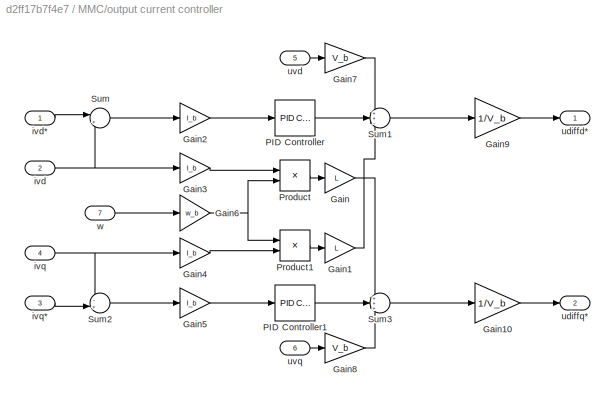
BLOCK [SubSystem] MMC/output current controller
BLOCK [Gain] MMC/output current controller/Gain
  Gain = L
BLOCK [Gain] MMC/output current controller/Gain1
  Gain = L
BLOCK [Gain] MMC/output current controller/Gain10
  Gain = 1/V_b
BLOCK [Gain] MMC/output current controller/Gain2
  Gain = I_b
BLOCK [Gain] MMC/output current controller/Gain3
  Gain = I_b
BLOCK [Gain] MMC/output current controller/Gain4
  Gain = I_b
BLOCK [Gain] MMC/output current controller/Gain5
  Gain = I_b
BLOCK [Gain] MMC/output current controller/Gain6
  Gain = w_b
BLOCK [Gain] MMC/output current controller/Gain7
  Gain = V_b
BLOCK [Gain] MMC/output current controller/Gain8
  Gain = V_b
BLOCK [Gain] MMC/output current controller/Gain9
  Gain = 1/V_b
BLOCK [Reference] MMC/output current controller/PID Controller  REF=slpidlib/PID Controller
  LibrarySourceBlock = simulink/Continuous/PID Controller
  SourceBlock = slpidlib/PID Controller
  SourceType = PID 1dof
BLOCK [Reference] MMC/output current controller/PID Controller1  REF=slpidlib/PID Controller
  LibrarySourceBlock = simulink/Continuous/PID Controller
  SourceBlock = slpidlib/PID Controller
  SourceType = PID 1dof
BLOCK [Product] MMC/output current controller/Product
BLOCK [Product] MMC/output current controller/Product1
BLOCK [Sum] MMC/output current controller/Sum
  Inputs = |+-
BLOCK [Sum] MMC/output current controller/Sum1
  Inputs = ++-
BLOCK [Sum] MMC/output current controller/Sum2
  Inputs = -+|
BLOCK [Sum] MMC/output current controller/Sum3
  Inputs = +++
BLOCK [Inport] MMC/output current controller/ivd
  Port = 2
BLOCK [Inport] MMC/output current controller/ivd*
BLOCK [Inport] MMC/output current controller/ivq
  Port = 4
BLOCK [Inport] MMC/output current controller/ivq*
  Port = 3
BLOCK [Outport] MMC/output current controller/udiffd*
BLOCK [Outport] MMC/output current controller/udiffq*
  Port = 2
BLOCK [Inport] MMC/output current controller/uvd
  Port = 5
BLOCK [Inport] MMC/output current controller/uvq
  Port = 6
BLOCK [Inport] MMC/output current controller/w
  Port = 7
BLOCK [SubSystem] MMC/reference voltage generator
BLOCK [Demux] MMC/reference voltage generator/Demux
  Outputs = 3
BLOCK [Demux] MMC/reference voltage generator/Demux1
  Outputs = 3
BLOCK [DigitalClock] MMC/reference voltage generator/Digital Clock
  SampleTime = Ts_Power
BLOCK [Gain] MMC/reference voltage generator/Gain2
  Gain = -2
BLOCK [Product] MMC/reference voltage generator/Product
BLOCK [Product] MMC/reference voltage generator/Product1
BLOCK [Sum] MMC/reference voltage generator/Sum
  Inputs = |++
BLOCK [Sum] MMC/reference voltage generator/Sum1
  Inputs = +-|
BLOCK [Reference] MMC/reference voltage generator/dq0 to abc  REF=spsdq0toabcLib/dq0 to abc
  LibrarySourceBlock = sps_lib/Control/dq0 to abc
  SourceBlock = spsdq0toabcLib/dq0 to abc
  SourceType = dq0 to abc Transformation
BLOCK [Reference] MMC/reference voltage generator/dq0 to abc1  REF=spsdq0toabcLib/dq0 to abc
  LibrarySourceBlock = sps_lib/Control/dq0 to abc
  SourceBlock = spsdq0toabcLib/dq0 to abc
  SourceType = dq0 to abc Transformation
BLOCK [Inport] MMC/reference voltage generator/ucirc
  Port = 2
BLOCK [Inport] MMC/reference voltage generator/udiff
BLOCK [Outport] MMC/reference voltage generator/una*
  Port = 2
BLOCK [Outport] MMC/reference voltage generator/unb*
  Port = 4
BLOCK [Outport] MMC/reference voltage generator/unc*
  Port = 6
BLOCK [Outport] MMC/reference voltage generator/upa*
BLOCK [Outport] MMC/reference voltage generator/upb*
  Port = 3
BLOCK [Outport] MMC/reference voltage generator/upc*
  Port = 5
BLOCK [Inport] MMC/reference voltage generator/w
  Port = 3
BLOCK [Mux] Mux
  DisplayOption = bar
  Inputs = 3
BLOCK [Reference] PCC  REF=spsThreePhaseVIMeasurementLib/Three-Phase
V-I Measurement
  LibrarySourceBlock = sps_lib/Sensors and Measurements/Three-Phase\nV-I Measurement
  SourceBlock = spsThreePhaseVIMeasurementLib/Three-Phase\nV-I Measurement
  SourceType = Three-Phase VI Measurement
BLOCK [Scope] Scope
  Floating = off
  NumInputPorts = 1
  ScopeSpecificationString = Simulink.scopes.TimeScopeBlockCfg('CurrentConfiguration', extmgr.ConfigurationSet(extmgr.Configuration('Core','General UI',true),extmgr.Configuration('Core','Source UI',true),extmgr.Configuration('Sources','WiredSimulink',true,'DataLoggingVariableName','ScopeData1'),extmgr.Configuration('Visuals','Time Domain',true,'SerializedDisplays',{struct('MinYLimReal','-13.52278','MaxYLimReal','13.40931','YL...<+1525ch>
BLOCK [Reference] Three-Phase Breaker  REF=spsThreePhaseBreakerLib/Three-Phase Breaker
  Commented = on
  LibrarySourceBlock = sps_lib/Power Grid Elements/Three-Phase Breaker
  NameLocation = left
  SourceBlock = spsThreePhaseBreakerLib/Three-Phase Breaker
  SourceType = Three-Phase Breaker
BLOCK [Reference] Three-Phase Programmable Voltage Source  REF=spsThreePhaseProgrammableVoltageSourceLib/Three-Phase
Programmable
Voltage Source
  LibrarySourceBlock = sps_lib/Sources/Three-Phase\nProgrammable\nVoltage Source
  SourceBlock = spsThreePhaseProgrammableVoltageSourceLib/Three-Phase\nProgrammable\nVoltage Source
  SourceType = Three-Phase Programmable Voltage Source
BLOCK [Reference] Three-Phase Series RLC Branch  REF=spsThreePhaseSeriesRLCBranchLib/Three-Phase
Series RLC Branch
  AttributesFormatString = \n
  LibrarySourceBlock = sps_lib/Passives/Three-Phase\nSeries RLC Branch
  SourceBlock = spsThreePhaseSeriesRLCBranchLib/Three-Phase\nSeries RLC Branch
  SourceType = Three-Phase Series RLC Branch
BLOCK [Reference] Three-Phase Series RLC Load  REF=spsThreePhaseSeriesRLCLoadLib/Three-Phase
Series RLC Load
  AttributesFormatString = \n
  LibrarySourceBlock = sps_lib/Passives/Three-Phase\nSeries RLC Load
  SourceBlock = spsThreePhaseSeriesRLCLoadLib/Three-Phase\nSeries RLC Load
  SourceType = Three-Phase Series RLC Load
BLOCK [Reference] Three-Phase Series RLC Load1  REF=spsThreePhaseSeriesRLCLoadLib/Three-Phase
Series RLC Load
  AttributesFormatString = \n
  Commented = on
  LibrarySourceBlock = sps_lib/Passives/Three-Phase\nSeries RLC Load
  SourceBlock = spsThreePhaseSeriesRLCLoadLib/Three-Phase\nSeries RLC Load
  SourceType = Three-Phase Series RLC Load
BLOCK [ToWorkspace] To Workspace
  MaxDataPoints = inf
  NameLocation = top
  SampleTime = -1
  Save2DSignal = 2-D array (concatenate along first dimension)
  SaveFormat = Structure With Time
  VariableName = Vab
BLOCK [ToWorkspace] To Workspace1
  MaxDataPoints = inf
  NameLocation = top
  SampleTime = -1
  Save2DSignal = 2-D array (concatenate along first dimension)
  SaveFormat = Structure With Time
  VariableName = Iab
BLOCK [ToWorkspace] To Workspace2
  FixptAsFi = on
  MaxDataPoints = inf
  SampleTime = -1
  SaveFormat = Structure With Time
  VariableName = Vac
BLOCK [Reference] Voltage Measurement  REF=spsVoltageMeasurementLib/Voltage Measurement
  LibrarySourceBlock = sps_lib/Sensors and Measurements/Voltage Measurement
  SourceBlock = spsVoltageMeasurementLib/Voltage Measurement
  SourceType = Voltage Measurement
  UserDataPersistent = on
BLOCK [Reference] Voltage Measurement1  REF=spsVoltageMeasurementLib/Voltage Measurement
  LibrarySourceBlock = sps_lib/Sensors and Measurements/Voltage Measurement
  SourceBlock = spsVoltageMeasurementLib/Voltage Measurement
  SourceType = Voltage Measurement
  UserDataPersistent = on
BLOCK [Reference] Voltage Measurement2  REF=spsVoltageMeasurementLib/Voltage Measurement
  LibrarySourceBlock = sps_lib/Sensors and Measurements/Voltage Measurement
  SourceBlock = spsVoltageMeasurementLib/Voltage Measurement
  SourceType = Voltage Measurement
  UserDataPersistent = on
BLOCK [Reference] powergui1  REF=sps_lib/powergui
  LibrarySourceBlock = sps_lib/powergui
  Priority = 1
  SourceBlock = sps_lib/powergui
  SourceType = PSB option menu block
ANNOTATION (root): powerFFT
ANNOTATION MMC: PLL
ANNOTATION MMC: PWM and firing signal generation
ANNOTATION MMC: circuit
ANNOTATION MMC: controllers
ANNOTATION MMC: measurements and to pu
ANNOTATION MMC/modulation/Sorting na: A secrect, unintelligible, confusing and insrutable function with \if inside \for inside \if inside \if inside \if
ANNOTATION MMC/modulation/Sorting nb: A secrect, unintelligible, confusing and insrutable function with \if inside \for inside \if inside \if inside \if
ANNOTATION MMC/modulation/Sorting nc: A secrect, unintelligible, confusing and insrutable function with \if inside \for inside \if inside \if inside \if
ANNOTATION MMC/modulation/Sorting pa: A secrect, unintelligible, confusing and insrutable function with \if inside \for inside \if inside \if inside \if
ANNOTATION MMC/modulation/Sorting pb: A secrect, unintelligible, confusing and insrutable function with \if inside \for inside \if inside \if inside \if
ANNOTATION MMC/modulation/Sorting pb1: A secrect, unintelligible, confusing and insrutable function with \if inside \for inside \if inside \if inside \if
ANNOTATION MMC/modulation/Sorting pc: A secrect, unintelligible, confusing and insrutable function with \if inside \for inside \if inside \if inside \if
LINE Gain1:1 -> To Workspace1:1
LINE Gain:1 -> To Workspace:1
NET MMC/Abs:1 -> MMC/Scope3:1, MMC/To Workspace7:1
LINE MMC/Circulating Current Calculator/Digital Clock:1 -> MMC/Circulating Current Calculator/Product:2
LINE MMC/Circulating Current Calculator/Gain1:1 -> MMC/Circulating Current Calculator/Saturation:1
LINE MMC/Circulating Current Calculator/Gain2:1 -> MMC/Circulating Current Calculator/Product:1
NET MMC/Circulating Current Calculator/Gain:1 -> MMC/Circulating Current Calculator/Mean:1, MMC/Circulating Current Calculator/Sum3:2
LINE MMC/Circulating Current Calculator/Mean:1 -> MMC/Circulating Current Calculator/Sum3:1
LINE MMC/Circulating Current Calculator/Mux1:1 -> MMC/Circulating Current Calculator/Gain:1
LINE MMC/Circulating Current Calculator/Product:1 -> MMC/Circulating Current Calculator/abc to dq0:2
NET MMC/Circulating Current Calculator/Saturation:1 -> MMC/Circulating Current Calculator/Scope1:1, MMC/Circulating Current Calculator/abc to dq0:1
LINE MMC/Circulating Current Calculator/Sum1:1 -> MMC/Circulating Current Calculator/Mux1:2
LINE MMC/Circulating Current Calculator/Sum2:1 -> MMC/Circulating Current Calculator/Mux1:3
LINE MMC/Circulating Current Calculator/Sum3:1 -> MMC/Circulating Current Calculator/Gain1:1
NET MMC/Circulating Current Calculator/Sum:1 -> MMC/Circulating Current Calculator/Mux1:1, MMC/Circulating Current Calculator/Scope:1
LINE MMC/Circulating Current Calculator/abc to dq0:1 -> MMC/Circulating Current Calculator/icircdq0:1
LINE MMC/Circulating Current Calculator/ina:1 -> MMC/Circulating Current Calculator/Sum:2
LINE MMC/Circulating Current Calculator/inb:1 -> MMC/Circulating Current Calculator/Sum1:2
LINE MMC/Circulating Current Calculator/inc:1 -> MMC/Circulating Current Calculator/Sum2:2
LINE MMC/Circulating Current Calculator/ipa:1 -> MMC/Circulating Current Calculator/Sum:1
LINE MMC/Circulating Current Calculator/ipb:1 -> MMC/Circulating Current Calculator/Sum1:1
LINE MMC/Circulating Current Calculator/ipc:1 -> MMC/Circulating Current Calculator/Sum2:1
LINE MMC/Circulating Current Calculator/w:1 -> MMC/Circulating Current Calculator/Gain2:1
LINE MMC/Circulating Current Calculator:1 -> MMC/Goto26:1
LINE MMC/Constant10:1 -> MMC/Mux11:1
LINE MMC/Constant11:1 -> MMC/Mux12:1
LINE MMC/Constant6:1 -> MMC/Mux:3
NET MMC/Constant7:1 -> MMC/Goto10:1, MMC/PQ loop_1:1
NET MMC/Constant8:1 -> MMC/Goto11:1, MMC/PQ loop_1:4
LINE MMC/Constant9:1 -> MMC/Mux1:3
NET MMC/Current Measurement1:1 -> MMC/Goto20:1, MMC/Scope20:1
LINE MMC/Current Measurement2:1 -> MMC/Goto21:1
LINE MMC/Current Measurement3:1 -> MMC/Goto22:1
LINE MMC/Current Measurement4:1 -> MMC/Goto23:1
LINE MMC/Current Measurement5:1 -> MMC/Goto24:1
LINE MMC/Current Measurement6:1 -> MMC/Goto25:1
NET MMC/Current Measurement:1 -> MMC/Scope19:1, MMC/Terminator8:1
LINE MMC/Delay1:1 -> MMC/Goto7:1
LINE MMC/Delay2:1 -> MMC/Goto9:1
LINE MMC/Delay3:1 -> MMC/Goto8:1
LINE MMC/Delay4:1 -> MMC/Goto34:1
LINE MMC/Delay:1 -> MMC/Goto6:1
LINE MMC/Demux1:1 -> MMC/output current controller:5
LINE MMC/Demux1:2 -> MMC/output current controller:6
LINE MMC/Demux1:3 -> MMC/Terminator3:1
NET MMC/Demux2:1 -> MMC/Scope8:1, MMC/circulating current controller:1
NET MMC/Demux2:2 -> MMC/Scope8:2, MMC/circulating current controller:2
LINE MMC/Demux2:3 -> MMC/Terminator6:1
LINE MMC/Demux3:1 -> MMC/Mux6:2
LINE MMC/Demux3:2 -> MMC/Mux7:2
LINE MMC/Demux3:3 -> MMC/Terminator7:1
LINE MMC/Demux8:1 -> MMC/First-Order Filter2:1
LINE MMC/Demux8:2 -> MMC/First-Order Filter3:1
LINE MMC/Demux8:3 -> MMC/Terminator9:1
NET MMC/Demux9:1 -> MMC/Scope7:2, MMC/To Workspace2:1
NET MMC/Demux9:2 -> MMC/Scope15:1, MMC/To Workspace1:1
LINE MMC/Demux:1 -> MMC/output current controller:2
LINE MMC/Demux:2 -> MMC/output current controller:4
LINE MMC/Demux:3 -> MMC/Terminator2:1
NET MMC/First-Order Filter1:1 -> MMC/Mux10:1, MMC/To Workspace5:1
NET MMC/First-Order Filter2:1 -> MMC/Mux11:2, MMC/Real-Imag to Complex:1
NET MMC/First-Order Filter3:1 -> MMC/Mux12:2, MMC/Real-Imag to Complex:2
NET MMC/First-Order Filter:1 -> MMC/Mux9:1, MMC/To Workspace4:1
LINE MMC/From10:1 -> MMC/Gain:1
LINE MMC/From11:1 -> MMC/measurement:1
LINE MMC/From12:1 -> MMC/measurement:2
LINE MMC/From13:1 -> MMC/output current controller:7
LINE MMC/From14:1 -> MMC/reference voltage generator:2
LINE MMC/From15:1 -> MMC/PQ loop_1:2
LINE MMC/From16:1 -> MMC/PQ loop_1:3
LINE MMC/From17:1 -> MMC/output current controller:1
LINE MMC/From18:1 -> MMC/output current controller:3
LINE MMC/From19:1 -> MMC/Demux:1
LINE MMC/From1:1 -> MMC/Full-bridge:1
LINE MMC/From20:1 -> MMC/Demux1:1
LINE MMC/From21:1 -> MMC/Demux3:1
LINE MMC/From22:1 -> MMC/circulating current controller:3
LINE MMC/From23:1 -> MMC/Circulating Current Calculator:2
LINE MMC/From24:1 -> MMC/Circulating Current Calculator:1
LINE MMC/From25:1 -> MMC/Circulating Current Calculator:3
LINE MMC/From26:1 -> MMC/Circulating Current Calculator:4
LINE MMC/From27:1 -> MMC/Circulating Current Calculator:5
LINE MMC/From28:1 -> MMC/Circulating Current Calculator:6
LINE MMC/From29:1 -> MMC/Gain1:1
LINE MMC/From2:1 -> MMC/Full-bridge 4:1
LINE MMC/From30:1 -> MMC/Demux2:1
LINE MMC/From31:1 -> MMC/reference voltage generator:1
LINE MMC/From32:1 -> MMC/Gain2:1
LINE MMC/From33:1 -> MMC/First-Order Filter:1
LINE MMC/From34:1 -> MMC/First-Order Filter1:1
LINE MMC/From35:1 -> MMC/Mux9:2
LINE MMC/From36:1 -> MMC/Mux10:2
NET MMC/From37:1 -> MMC/Scope10:1, MMC/To Workspace:1
LINE MMC/From38:1 -> MMC/Mux2:2
LINE MMC/From39:1 -> MMC/Mux2:1
LINE MMC/From3:1 -> MMC/Full-bridge 1:1
LINE MMC/From40:1 -> MMC/Mux2:3
LINE MMC/From41:1 -> MMC/Mux2:4
LINE MMC/From42:1 -> MMC/Mux2:5
LINE MMC/From43:1 -> MMC/Mux2:6
LINE MMC/From44:1 -> MMC/Mux3:1
LINE MMC/From45:1 -> MMC/Mux3:2
LINE MMC/From46:1 -> MMC/Mux3:3
LINE MMC/From47:1 -> MMC/Mux3:4
LINE MMC/From48:1 -> MMC/Mux3:5
LINE MMC/From49:1 -> MMC/Mux3:6
LINE MMC/From4:1 -> MMC/Full-bridge 5:1
LINE MMC/From5:1 -> MMC/Full-bridge 2:1
LINE MMC/From63:1 -> MMC/Demux8:1
LINE MMC/From67:1 -> MMC/Demux9:1
NET MMC/From68:1 -> MMC/Scope7:1, MMC/To Workspace6:1
LINE MMC/From6:1 -> MMC/Mux6:1
LINE MMC/From7:1 -> MMC/Mux7:1
LINE MMC/From8:1 -> MMC/PLL (3ph):1
LINE MMC/From9:1 -> MMC/measurement:3
LINE MMC/From:1 -> MMC/Full-bridge 3:1
NET MMC/Full-bridge 1/Demux:1 -> MMC/Full-bridge 1/Mux:1, MMC/Full-bridge 1/Mux:4
NET MMC/Full-bridge 1/Demux:2 -> MMC/Full-bridge 1/Mux:2, MMC/Full-bridge 1/Mux:3
NET MMC/Full-bridge 1/Demux:3 -> MMC/Full-bridge 1/Mux1:1, MMC/Full-bridge 1/Mux1:4
NET MMC/Full-bridge 1/Demux:4 -> MMC/Full-bridge 1/Mux1:2, MMC/Full-bridge 1/Mux1:3
LINE MMC/Full-bridge 1/HBua1/Demux1:1 -> MMC/Full-bridge 1/HBua1/IGBT//Diode:1
LINE MMC/Full-bridge 1/HBua1/Demux1:2 -> MMC/Full-bridge 1/HBua1/IGBT//Diode1:1
LINE MMC/Full-bridge 1/HBua1/Demux1:3 -> MMC/Full-bridge 1/HBua1/IGBT//Diode2:1
LINE MMC/Full-bridge 1/HBua1/Demux1:4 -> MMC/Full-bridge 1/HBua1/IGBT//Diode3:1
LINE MMC/Full-bridge 1/HBua1/gates:1 -> MMC/Full-bridge 1/HBua1/Demux1:1
LINE MMC/Full-bridge 1/HBua2/Demux1:1 -> MMC/Full-bridge 1/HBua2/IGBT//Diode:1
LINE MMC/Full-bridge 1/HBua2/Demux1:2 -> MMC/Full-bridge 1/HBua2/IGBT//Diode1:1
LINE MMC/Full-bridge 1/HBua2/Demux1:3 -> MMC/Full-bridge 1/HBua2/IGBT//Diode2:1
LINE MMC/Full-bridge 1/HBua2/Demux1:4 -> MMC/Full-bridge 1/HBua2/IGBT//Diode3:1
LINE MMC/Full-bridge 1/HBua2/gates:1 -> MMC/Full-bridge 1/HBua2/Demux1:1
LINE MMC/Full-bridge 1/Mux1:1 -> MMC/Full-bridge 1/HBua2:1
LINE MMC/Full-bridge 1/Mux2:1 -> MMC/Full-bridge 1/m:1
LINE MMC/Full-bridge 1/Mux:1 -> MMC/Full-bridge 1/HBua1:1
LINE MMC/Full-bridge 1/gates:1 -> MMC/Full-bridge 1/Demux:1
LINE MMC/Full-bridge 1/vm1:1 -> MMC/Full-bridge 1/Mux2:2
LINE MMC/Full-bridge 1/vm:1 -> MMC/Full-bridge 1/Mux2:1
LINE MMC/Full-bridge 1:1 -> MMC/Goto29:1
NET MMC/Full-bridge 2/Demux:1 -> MMC/Full-bridge 2/Mux:1, MMC/Full-bridge 2/Mux:4
NET MMC/Full-bridge 2/Demux:2 -> MMC/Full-bridge 2/Mux:2, MMC/Full-bridge 2/Mux:3
NET MMC/Full-bridge 2/Demux:3 -> MMC/Full-bridge 2/Mux1:1, MMC/Full-bridge 2/Mux1:4
NET MMC/Full-bridge 2/Demux:4 -> MMC/Full-bridge 2/Mux1:2, MMC/Full-bridge 2/Mux1:3
LINE MMC/Full-bridge 2/HBua1/Demux1:1 -> MMC/Full-bridge 2/HBua1/IGBT//Diode:1
LINE MMC/Full-bridge 2/HBua1/Demux1:2 -> MMC/Full-bridge 2/HBua1/IGBT//Diode1:1
LINE MMC/Full-bridge 2/HBua1/Demux1:3 -> MMC/Full-bridge 2/HBua1/IGBT//Diode2:1
LINE MMC/Full-bridge 2/HBua1/Demux1:4 -> MMC/Full-bridge 2/HBua1/IGBT//Diode3:1
LINE MMC/Full-bridge 2/HBua1/gates:1 -> MMC/Full-bridge 2/HBua1/Demux1:1
LINE MMC/Full-bridge 2/HBua2/Demux1:1 -> MMC/Full-bridge 2/HBua2/IGBT//Diode:1
LINE MMC/Full-bridge 2/HBua2/Demux1:2 -> MMC/Full-bridge 2/HBua2/IGBT//Diode1:1
LINE MMC/Full-bridge 2/HBua2/Demux1:3 -> MMC/Full-bridge 2/HBua2/IGBT//Diode2:1
LINE MMC/Full-bridge 2/HBua2/Demux1:4 -> MMC/Full-bridge 2/HBua2/IGBT//Diode3:1
LINE MMC/Full-bridge 2/HBua2/gates:1 -> MMC/Full-bridge 2/HBua2/Demux1:1
LINE MMC/Full-bridge 2/Mux1:1 -> MMC/Full-bridge 2/HBua2:1
LINE MMC/Full-bridge 2/Mux2:1 -> MMC/Full-bridge 2/m:1
LINE MMC/Full-bridge 2/Mux:1 -> MMC/Full-bridge 2/HBua1:1
LINE MMC/Full-bridge 2/gates:1 -> MMC/Full-bridge 2/Demux:1
LINE MMC/Full-bridge 2/vm1:1 -> MMC/Full-bridge 2/Mux2:2
LINE MMC/Full-bridge 2/vm:1 -> MMC/Full-bridge 2/Mux2:1
LINE MMC/Full-bridge 2:1 -> MMC/Goto30:1
NET MMC/Full-bridge 3/Demux:1 -> MMC/Full-bridge 3/Mux3:1, MMC/Full-bridge 3/Mux:1, MMC/Full-bridge 3/Mux:4
NET MMC/Full-bridge 3/Demux:2 -> MMC/Full-bridge 3/Mux3:2, MMC/Full-bridge 3/Mux:2, MMC/Full-bridge 3/Mux:3
NET MMC/Full-bridge 3/Demux:3 -> MMC/Full-bridge 3/Mux1:1, MMC/Full-bridge 3/Mux1:4
NET MMC/Full-bridge 3/Demux:4 -> MMC/Full-bridge 3/Mux1:2, MMC/Full-bridge 3/Mux1:3
LINE MMC/Full-bridge 3/HBua1/Demux1:1 -> MMC/Full-bridge 3/HBua1/IGBT//Diode:1
LINE MMC/Full-bridge 3/HBua1/Demux1:2 -> MMC/Full-bridge 3/HBua1/IGBT//Diode1:1
LINE MMC/Full-bridge 3/HBua1/Demux1:3 -> MMC/Full-bridge 3/HBua1/IGBT//Diode2:1
LINE MMC/Full-bridge 3/HBua1/Demux1:4 -> MMC/Full-bridge 3/HBua1/IGBT//Diode3:1
NET MMC/Full-bridge 3/HBua1/gates:1 -> MMC/Full-bridge 3/HBua1/Demux1:1, MMC/Full-bridge 3/HBua1/Scope:1
LINE MMC/Full-bridge 3/HBua2/Demux1:1 -> MMC/Full-bridge 3/HBua2/IGBT//Diode:1
LINE MMC/Full-bridge 3/HBua2/Demux1:2 -> MMC/Full-bridge 3/HBua2/IGBT//Diode1:1
LINE MMC/Full-bridge 3/HBua2/Demux1:3 -> MMC/Full-bridge 3/HBua2/IGBT//Diode2:1
LINE MMC/Full-bridge 3/HBua2/Demux1:4 -> MMC/Full-bridge 3/HBua2/IGBT//Diode3:1
LINE MMC/Full-bridge 3/HBua2/gates:1 -> MMC/Full-bridge 3/HBua2/Demux1:1
LINE MMC/Full-bridge 3/Mux1:1 -> MMC/Full-bridge 3/HBua2:1
LINE MMC/Full-bridge 3/Mux2:1 -> MMC/Full-bridge 3/m:1
LINE MMC/Full-bridge 3/Mux3:1 -> MMC/Full-bridge 3/Scope:1
LINE MMC/Full-bridge 3/Mux:1 -> MMC/Full-bridge 3/HBua1:1
LINE MMC/Full-bridge 3/gates:1 -> MMC/Full-bridge 3/Demux:1
LINE MMC/Full-bridge 3/vm1:1 -> MMC/Full-bridge 3/Mux2:2
LINE MMC/Full-bridge 3/vm2:1 -> MMC/Full-bridge 3/Scope1:1
LINE MMC/Full-bridge 3/vm:1 -> MMC/Full-bridge 3/Mux2:1
LINE MMC/Full-bridge 3:1 -> MMC/Goto31:1
NET MMC/Full-bridge 4/Demux:1 -> MMC/Full-bridge 4/Mux:1, MMC/Full-bridge 4/Mux:4
NET MMC/Full-bridge 4/Demux:2 -> MMC/Full-bridge 4/Mux:2, MMC/Full-bridge 4/Mux:3
NET MMC/Full-bridge 4/Demux:3 -> MMC/Full-bridge 4/Mux1:1, MMC/Full-bridge 4/Mux1:4
NET MMC/Full-bridge 4/Demux:4 -> MMC/Full-bridge 4/Mux1:2, MMC/Full-bridge 4/Mux1:3
LINE MMC/Full-bridge 4/HBua1/Demux1:1 -> MMC/Full-bridge 4/HBua1/IGBT//Diode:1
LINE MMC/Full-bridge 4/HBua1/Demux1:2 -> MMC/Full-bridge 4/HBua1/IGBT//Diode1:1
LINE MMC/Full-bridge 4/HBua1/Demux1:3 -> MMC/Full-bridge 4/HBua1/IGBT//Diode2:1
LINE MMC/Full-bridge 4/HBua1/Demux1:4 -> MMC/Full-bridge 4/HBua1/IGBT//Diode3:1
LINE MMC/Full-bridge 4/HBua1/gates:1 -> MMC/Full-bridge 4/HBua1/Demux1:1
LINE MMC/Full-bridge 4/HBua2/Demux1:1 -> MMC/Full-bridge 4/HBua2/IGBT//Diode:1
LINE MMC/Full-bridge 4/HBua2/Demux1:2 -> MMC/Full-bridge 4/HBua2/IGBT//Diode1:1
LINE MMC/Full-bridge 4/HBua2/Demux1:3 -> MMC/Full-bridge 4/HBua2/IGBT//Diode2:1
LINE MMC/Full-bridge 4/HBua2/Demux1:4 -> MMC/Full-bridge 4/HBua2/IGBT//Diode3:1
LINE MMC/Full-bridge 4/HBua2/gates:1 -> MMC/Full-bridge 4/HBua2/Demux1:1
LINE MMC/Full-bridge 4/Mux1:1 -> MMC/Full-bridge 4/HBua2:1
LINE MMC/Full-bridge 4/Mux2:1 -> MMC/Full-bridge 4/m:1
LINE MMC/Full-bridge 4/Mux:1 -> MMC/Full-bridge 4/HBua1:1
LINE MMC/Full-bridge 4/gates:1 -> MMC/Full-bridge 4/Demux:1
LINE MMC/Full-bridge 4/vm1:1 -> MMC/Full-bridge 4/Mux2:2
LINE MMC/Full-bridge 4/vm:1 -> MMC/Full-bridge 4/Mux2:1
LINE MMC/Full-bridge 4:1 -> MMC/Goto32:1
NET MMC/Full-bridge 5/Demux:1 -> MMC/Full-bridge 5/Mux:1, MMC/Full-bridge 5/Mux:4
NET MMC/Full-bridge 5/Demux:2 -> MMC/Full-bridge 5/Mux:2, MMC/Full-bridge 5/Mux:3
NET MMC/Full-bridge 5/Demux:3 -> MMC/Full-bridge 5/Mux1:1, MMC/Full-bridge 5/Mux1:4
NET MMC/Full-bridge 5/Demux:4 -> MMC/Full-bridge 5/Mux1:2, MMC/Full-bridge 5/Mux1:3
LINE MMC/Full-bridge 5/HBua1/Demux1:1 -> MMC/Full-bridge 5/HBua1/IGBT//Diode:1
LINE MMC/Full-bridge 5/HBua1/Demux1:2 -> MMC/Full-bridge 5/HBua1/IGBT//Diode1:1
LINE MMC/Full-bridge 5/HBua1/Demux1:3 -> MMC/Full-bridge 5/HBua1/IGBT//Diode2:1
LINE MMC/Full-bridge 5/HBua1/Demux1:4 -> MMC/Full-bridge 5/HBua1/IGBT//Diode3:1
LINE MMC/Full-bridge 5/HBua1/gates:1 -> MMC/Full-bridge 5/HBua1/Demux1:1
LINE MMC/Full-bridge 5/HBua2/Demux1:1 -> MMC/Full-bridge 5/HBua2/IGBT//Diode:1
LINE MMC/Full-bridge 5/HBua2/Demux1:2 -> MMC/Full-bridge 5/HBua2/IGBT//Diode1:1
LINE MMC/Full-bridge 5/HBua2/Demux1:3 -> MMC/Full-bridge 5/HBua2/IGBT//Diode2:1
LINE MMC/Full-bridge 5/HBua2/Demux1:4 -> MMC/Full-bridge 5/HBua2/IGBT//Diode3:1
LINE MMC/Full-bridge 5/HBua2/gates:1 -> MMC/Full-bridge 5/HBua2/Demux1:1
LINE MMC/Full-bridge 5/Mux1:1 -> MMC/Full-bridge 5/HBua2:1
LINE MMC/Full-bridge 5/Mux2:1 -> MMC/Full-bridge 5/m:1
LINE MMC/Full-bridge 5/Mux:1 -> MMC/Full-bridge 5/HBua1:1
LINE MMC/Full-bridge 5/gates:1 -> MMC/Full-bridge 5/Demux:1
LINE MMC/Full-bridge 5/vm1:1 -> MMC/Full-bridge 5/Mux2:2
LINE MMC/Full-bridge 5/vm:1 -> MMC/Full-bridge 5/Mux2:1
LINE MMC/Full-bridge 5:1 -> MMC/Goto33:1
NET MMC/Full-bridge/Demux:1 -> MMC/Full-bridge/Mux:1, MMC/Full-bridge/Mux:4
NET MMC/Full-bridge/Demux:2 -> MMC/Full-bridge/Mux:2, MMC/Full-bridge/Mux:3
NET MMC/Full-bridge/Demux:3 -> MMC/Full-bridge/Mux1:1, MMC/Full-bridge/Mux1:4
NET MMC/Full-bridge/Demux:4 -> MMC/Full-bridge/Mux1:2, MMC/Full-bridge/Mux1:3
LINE MMC/Full-bridge/HBua1/Demux1:1 -> MMC/Full-bridge/HBua1/IGBT//Diode:1
LINE MMC/Full-bridge/HBua1/Demux1:2 -> MMC/Full-bridge/HBua1/IGBT//Diode1:1
LINE MMC/Full-bridge/HBua1/Demux1:3 -> MMC/Full-bridge/HBua1/IGBT//Diode2:1
LINE MMC/Full-bridge/HBua1/Demux1:4 -> MMC/Full-bridge/HBua1/IGBT//Diode3:1
LINE MMC/Full-bridge/HBua1/gates:1 -> MMC/Full-bridge/HBua1/Demux1:1
LINE MMC/Full-bridge/HBua2/Demux1:1 -> MMC/Full-bridge/HBua2/IGBT//Diode:1
LINE MMC/Full-bridge/HBua2/Demux1:2 -> MMC/Full-bridge/HBua2/IGBT//Diode1:1
LINE MMC/Full-bridge/HBua2/Demux1:3 -> MMC/Full-bridge/HBua2/IGBT//Diode2:1
LINE MMC/Full-bridge/HBua2/Demux1:4 -> MMC/Full-bridge/HBua2/IGBT//Diode3:1
LINE MMC/Full-bridge/HBua2/gates:1 -> MMC/Full-bridge/HBua2/Demux1:1
LINE MMC/Full-bridge/Mux1:1 -> MMC/Full-bridge/HBua2:1
LINE MMC/Full-bridge/Mux2:1 -> MMC/Full-bridge/m:1
LINE MMC/Full-bridge/Mux:1 -> MMC/Full-bridge/HBua1:1
LINE MMC/Full-bridge/gates:1 -> MMC/Full-bridge/Demux:1
LINE MMC/Full-bridge/vm1:1 -> MMC/Full-bridge/Mux2:2
LINE MMC/Full-bridge/vm:1 -> MMC/Full-bridge/Mux2:1
NET MMC/Full-bridge:1 -> MMC/Goto19:1, MMC/Scope5:1
LINE MMC/Gain1:1 -> MMC/Circulating Current Calculator:7
LINE MMC/Gain2:1 -> MMC/reference voltage generator:3
LINE MMC/Gain3:1 -> MMC/Goto12:1
LINE MMC/Gain4:1 -> MMC/Terminator4:1
LINE MMC/Gain5:1 -> MMC/Terminator1:1
LINE MMC/Gain6:1 -> MMC/PS-PWM:1
LINE MMC/Gain:1 -> MMC/Gain3:1
LINE MMC/Ideal voltage ref/Gain4:1 -> MMC/Ideal voltage ref/Out2:1
LINE MMC/Ideal voltage ref/Gain5:1 -> MMC/Ideal voltage ref/Out4:1
LINE MMC/Ideal voltage ref/Gain6:1 -> MMC/Ideal voltage ref/Out6:1
NET MMC/Ideal voltage ref/Sine Wave1:1 -> MMC/Ideal voltage ref/Gain5:1, MMC/Ideal voltage ref/Out3:1
NET MMC/Ideal voltage ref/Sine Wave2:1 -> MMC/Ideal voltage ref/Gain6:1, MMC/Ideal voltage ref/Out5:1
NET MMC/Ideal voltage ref/Sine Wave:1 -> MMC/Ideal voltage ref/Gain4:1, MMC/Ideal voltage ref/Out1:1
LINE MMC/Mux10:1 -> MMC/Scope9:2
LINE MMC/Mux11:1 -> MMC/Scope11:1
LINE MMC/Mux12:1 -> MMC/Scope11:2
LINE MMC/Mux13:1 -> MMC/Goto43:1
LINE MMC/Mux1:1 -> MMC/Goto27:1
LINE MMC/Mux2:1 -> MMC/Gain5:1
LINE MMC/Mux3:1 -> MMC/Gain4:1
LINE MMC/Mux6:1 -> MMC/Scope1:1
LINE MMC/Mux7:1 -> MMC/Scope1:2
LINE MMC/Mux8:1 -> MMC/Gain6:1
LINE MMC/Mux9:1 -> MMC/Scope9:1
LINE MMC/Mux:1 -> MMC/Goto28:1
NET MMC/PCC:1 -> MMC/Delay:1, MMC/Mux13:1
NET MMC/PCC:2 -> MMC/Delay1:1, MMC/Mux13:2
LINE MMC/PLL (3ph):1 -> MMC/Delay2:1
LINE MMC/PLL (3ph):2 -> MMC/Delay3:1
LINE MMC/PQ loop_1/Gain1:1 -> MMC/PQ loop_1/Sum:2
LINE MMC/PQ loop_1/Gain2:1 -> MMC/PQ loop_1/Sum1:1
LINE MMC/PQ loop_1/Gain3:1 -> MMC/PQ loop_1/Sum1:2
LINE MMC/PQ loop_1/Gain4:1 -> MMC/PQ loop_1/id*:1
LINE MMC/PQ loop_1/Gain5:1 -> MMC/PQ loop_1/Gain6:1
LINE MMC/PQ loop_1/Gain6:1 -> MMC/PQ loop_1/iq*:1
LINE MMC/PQ loop_1/Gain:1 -> MMC/PQ loop_1/Sum:1
LINE MMC/PQ loop_1/P*:1 -> MMC/PQ loop_1/Gain:1
LINE MMC/PQ loop_1/P:1 -> MMC/PQ loop_1/Gain1:1
LINE MMC/PQ loop_1/PID Controller1:1 -> MMC/PQ loop_1/Gain5:1
LINE MMC/PQ loop_1/PID Controller:1 -> MMC/PQ loop_1/Gain4:1
LINE MMC/PQ loop_1/Q*:1 -> MMC/PQ loop_1/Gain3:1
LINE MMC/PQ loop_1/Q:1 -> MMC/PQ loop_1/Gain2:1
LINE MMC/PQ loop_1/Sum1:1 -> MMC/PQ loop_1/PID Controller1:1
LINE MMC/PQ loop_1/Sum:1 -> MMC/PQ loop_1/PID Controller:1
LINE MMC/PQ loop_1:1 -> MMC/Goto15:1
LINE MMC/PQ loop_1:2 -> MMC/Goto16:1
LINE MMC/PS-PWM/Demux:1 -> MMC/PS-PWM/PS-PWM upper a:1
LINE MMC/PS-PWM/Demux:2 -> MMC/PS-PWM/PS-PWM lower a:1
LINE MMC/PS-PWM/Demux:3 -> MMC/PS-PWM/PS-PWM upper b:1
LINE MMC/PS-PWM/Demux:4 -> MMC/PS-PWM/PS-PWM lower b:1
LINE MMC/PS-PWM/Demux:5 -> MMC/PS-PWM/PS-PWM upper c:1
LINE MMC/PS-PWM/Demux:6 -> MMC/PS-PWM/PS-PWM lower c:1
LINE MMC/PS-PWM/PS-PWM lower a/Gain1:1 -> MMC/PS-PWM/PS-PWM lower a/Relational Operator1:2
LINE MMC/PS-PWM/PS-PWM lower a/Gain:1 -> MMC/PS-PWM/PS-PWM lower a/Relational Operator:2
LINE MMC/PS-PWM/PS-PWM lower a/Logical Operator1:1 -> MMC/PS-PWM/PS-PWM lower a/Mux:4
LINE MMC/PS-PWM/PS-PWM lower a/Logical Operator:1 -> MMC/PS-PWM/PS-PWM lower a/Mux:2
LINE MMC/PS-PWM/PS-PWM lower a/Mux:1 -> MMC/PS-PWM/PS-PWM lower a/Ppa:1
NET MMC/PS-PWM/PS-PWM lower a/Relational Operator1:1 -> MMC/PS-PWM/PS-PWM lower a/Logical Operator1:1, MMC/PS-PWM/PS-PWM lower a/Mux:3
NET MMC/PS-PWM/PS-PWM lower a/Relational Operator:1 -> MMC/PS-PWM/PS-PWM lower a/Logical Operator:1, MMC/PS-PWM/PS-PWM lower a/Mux:1
LINE MMC/PS-PWM/PS-PWM lower a/Triangle Generator1:1 -> MMC/PS-PWM/PS-PWM lower a/Gain1:1
LINE MMC/PS-PWM/PS-PWM lower a/Triangle Generator:1 -> MMC/PS-PWM/PS-PWM lower a/Gain:1
NET MMC/PS-PWM/PS-PWM lower a/ref:1 -> MMC/PS-PWM/PS-PWM lower a/Relational Operator1:1, MMC/PS-PWM/PS-PWM lower a/Relational Operator:1
LINE MMC/PS-PWM/PS-PWM lower a:1 -> MMC/PS-PWM/Pna:1
LINE MMC/PS-PWM/PS-PWM lower b/Gain1:1 -> MMC/PS-PWM/PS-PWM lower b/Relational Operator1:2
LINE MMC/PS-PWM/PS-PWM lower b/Gain:1 -> MMC/PS-PWM/PS-PWM lower b/Relational Operator:2
LINE MMC/PS-PWM/PS-PWM lower b/Logical Operator1:1 -> MMC/PS-PWM/PS-PWM lower b/Mux:4
LINE MMC/PS-PWM/PS-PWM lower b/Logical Operator:1 -> MMC/PS-PWM/PS-PWM lower b/Mux:2
LINE MMC/PS-PWM/PS-PWM lower b/Mux:1 -> MMC/PS-PWM/PS-PWM lower b/Ppa:1
NET MMC/PS-PWM/PS-PWM lower b/Relational Operator1:1 -> MMC/PS-PWM/PS-PWM lower b/Logical Operator1:1, MMC/PS-PWM/PS-PWM lower b/Mux:3
NET MMC/PS-PWM/PS-PWM lower b/Relational Operator:1 -> MMC/PS-PWM/PS-PWM lower b/Logical Operator:1, MMC/PS-PWM/PS-PWM lower b/Mux:1
LINE MMC/PS-PWM/PS-PWM lower b/Triangle Generator1:1 -> MMC/PS-PWM/PS-PWM lower b/Gain1:1
LINE MMC/PS-PWM/PS-PWM lower b/Triangle Generator:1 -> MMC/PS-PWM/PS-PWM lower b/Gain:1
NET MMC/PS-PWM/PS-PWM lower b/ref:1 -> MMC/PS-PWM/PS-PWM lower b/Relational Operator1:1, MMC/PS-PWM/PS-PWM lower b/Relational Operator:1
LINE MMC/PS-PWM/PS-PWM lower b:1 -> MMC/PS-PWM/Pnb:1
LINE MMC/PS-PWM/PS-PWM lower c/Gain1:1 -> MMC/PS-PWM/PS-PWM lower c/Relational Operator1:2
LINE MMC/PS-PWM/PS-PWM lower c/Gain:1 -> MMC/PS-PWM/PS-PWM lower c/Relational Operator:2
LINE MMC/PS-PWM/PS-PWM lower c/Logical Operator1:1 -> MMC/PS-PWM/PS-PWM lower c/Mux:4
LINE MMC/PS-PWM/PS-PWM lower c/Logical Operator:1 -> MMC/PS-PWM/PS-PWM lower c/Mux:2
LINE MMC/PS-PWM/PS-PWM lower c/Mux:1 -> MMC/PS-PWM/PS-PWM lower c/Ppa:1
NET MMC/PS-PWM/PS-PWM lower c/Relational Operator1:1 -> MMC/PS-PWM/PS-PWM lower c/Logical Operator1:1, MMC/PS-PWM/PS-PWM lower c/Mux:3
NET MMC/PS-PWM/PS-PWM lower c/Relational Operator:1 -> MMC/PS-PWM/PS-PWM lower c/Logical Operator:1, MMC/PS-PWM/PS-PWM lower c/Mux:1
LINE MMC/PS-PWM/PS-PWM lower c/Triangle Generator1:1 -> MMC/PS-PWM/PS-PWM lower c/Gain1:1
LINE MMC/PS-PWM/PS-PWM lower c/Triangle Generator:1 -> MMC/PS-PWM/PS-PWM lower c/Gain:1
NET MMC/PS-PWM/PS-PWM lower c/ref:1 -> MMC/PS-PWM/PS-PWM lower c/Relational Operator1:1, MMC/PS-PWM/PS-PWM lower c/Relational Operator:1
LINE MMC/PS-PWM/PS-PWM lower c:1 -> MMC/PS-PWM/Pnc:1
LINE MMC/PS-PWM/PS-PWM upper a/Gain1:1 -> MMC/PS-PWM/PS-PWM upper a/Relational Operator1:2
LINE MMC/PS-PWM/PS-PWM upper a/Gain:1 -> MMC/PS-PWM/PS-PWM upper a/Relational Operator:2
LINE MMC/PS-PWM/PS-PWM upper a/Logical Operator1:1 -> MMC/PS-PWM/PS-PWM upper a/Mux:4
LINE MMC/PS-PWM/PS-PWM upper a/Logical Operator:1 -> MMC/PS-PWM/PS-PWM upper a/Mux:2
LINE MMC/PS-PWM/PS-PWM upper a/Mux:1 -> MMC/PS-PWM/PS-PWM upper a/Ppa:1
NET MMC/PS-PWM/PS-PWM upper a/Relational Operator1:1 -> MMC/PS-PWM/PS-PWM upper a/Logical Operator1:1, MMC/PS-PWM/PS-PWM upper a/Mux:3
NET MMC/PS-PWM/PS-PWM upper a/Relational Operator:1 -> MMC/PS-PWM/PS-PWM upper a/Logical Operator:1, MMC/PS-PWM/PS-PWM upper a/Mux:1
LINE MMC/PS-PWM/PS-PWM upper a/Triangle Generator1:1 -> MMC/PS-PWM/PS-PWM upper a/Gain1:1
LINE MMC/PS-PWM/PS-PWM upper a/Triangle Generator:1 -> MMC/PS-PWM/PS-PWM upper a/Gain:1
NET MMC/PS-PWM/PS-PWM upper a/ref:1 -> MMC/PS-PWM/PS-PWM upper a/Relational Operator1:1, MMC/PS-PWM/PS-PWM upper a/Relational Operator:1, MMC/PS-PWM/PS-PWM upper a/Scope:1
NET MMC/PS-PWM/PS-PWM upper a:1 -> MMC/PS-PWM/Ppa:1, MMC/PS-PWM/Selector2:1, MMC/PS-PWM/Selector3:1
LINE MMC/PS-PWM/PS-PWM upper b/Gain1:1 -> MMC/PS-PWM/PS-PWM upper b/Relational Operator1:2
LINE MMC/PS-PWM/PS-PWM upper b/Gain:1 -> MMC/PS-PWM/PS-PWM upper b/Relational Operator:2
LINE MMC/PS-PWM/PS-PWM upper b/Logical Operator1:1 -> MMC/PS-PWM/PS-PWM upper b/Mux:4
LINE MMC/PS-PWM/PS-PWM upper b/Logical Operator:1 -> MMC/PS-PWM/PS-PWM upper b/Mux:2
LINE MMC/PS-PWM/PS-PWM upper b/Mux:1 -> MMC/PS-PWM/PS-PWM upper b/Ppa:1
NET MMC/PS-PWM/PS-PWM upper b/Relational Operator1:1 -> MMC/PS-PWM/PS-PWM upper b/Logical Operator1:1, MMC/PS-PWM/PS-PWM upper b/Mux:3
NET MMC/PS-PWM/PS-PWM upper b/Relational Operator:1 -> MMC/PS-PWM/PS-PWM upper b/Logical Operator:1, MMC/PS-PWM/PS-PWM upper b/Mux:1
LINE MMC/PS-PWM/PS-PWM upper b/Triangle Generator1:1 -> MMC/PS-PWM/PS-PWM upper b/Gain1:1
LINE MMC/PS-PWM/PS-PWM upper b/Triangle Generator:1 -> MMC/PS-PWM/PS-PWM upper b/Gain:1
NET MMC/PS-PWM/PS-PWM upper b/ref:1 -> MMC/PS-PWM/PS-PWM upper b/Relational Operator1:1, MMC/PS-PWM/PS-PWM upper b/Relational Operator:1
LINE MMC/PS-PWM/PS-PWM upper b:1 -> MMC/PS-PWM/Ppb:1
LINE MMC/PS-PWM/PS-PWM upper c/Gain1:1 -> MMC/PS-PWM/PS-PWM upper c/Relational Operator1:2
LINE MMC/PS-PWM/PS-PWM upper c/Gain:1 -> MMC/PS-PWM/PS-PWM upper c/Relational Operator:2
LINE MMC/PS-PWM/PS-PWM upper c/Logical Operator1:1 -> MMC/PS-PWM/PS-PWM upper c/Mux:4
LINE MMC/PS-PWM/PS-PWM upper c/Logical Operator:1 -> MMC/PS-PWM/PS-PWM upper c/Mux:2
LINE MMC/PS-PWM/PS-PWM upper c/Mux:1 -> MMC/PS-PWM/PS-PWM upper c/Ppa:1
NET MMC/PS-PWM/PS-PWM upper c/Relational Operator1:1 -> MMC/PS-PWM/PS-PWM upper c/Logical Operator1:1, MMC/PS-PWM/PS-PWM upper c/Mux:3
NET MMC/PS-PWM/PS-PWM upper c/Relational Operator:1 -> MMC/PS-PWM/PS-PWM upper c/Logical Operator:1, MMC/PS-PWM/PS-PWM upper c/Mux:1
LINE MMC/PS-PWM/PS-PWM upper c/Triangle Generator1:1 -> MMC/PS-PWM/PS-PWM upper c/Gain1:1
LINE MMC/PS-PWM/PS-PWM upper c/Triangle Generator:1 -> MMC/PS-PWM/PS-PWM upper c/Gain:1
NET MMC/PS-PWM/PS-PWM upper c/ref:1 -> MMC/PS-PWM/PS-PWM upper c/Relational Operator1:1, MMC/PS-PWM/PS-PWM upper c/Relational Operator:1
LINE MMC/PS-PWM/PS-PWM upper c:1 -> MMC/PS-PWM/Ppc:1
LINE MMC/PS-PWM/Selector2:1 -> MMC/PS-PWM/Scope2:1
LINE MMC/PS-PWM/Selector3:1 -> MMC/PS-PWM/Scope2:2
LINE MMC/PS-PWM/U*:1 -> MMC/PS-PWM/Demux:1
NET MMC/PS-PWM:1 -> MMC/Goto:1, MMC/Selector1:1, MMC/Selector:1
LINE MMC/PS-PWM:2 -> MMC/Goto1:1
LINE MMC/PS-PWM:3 -> MMC/Goto2:1
LINE MMC/PS-PWM:4 -> MMC/Goto3:1
LINE MMC/PS-PWM:5 -> MMC/Goto4:1
LINE MMC/PS-PWM:6 -> MMC/Goto5:1
LINE MMC/Real-Imag to Complex:1 -> MMC/Abs:1
LINE MMC/Saturation1:1 -> MMC/Mux1:2
LINE MMC/Saturation:1 -> MMC/Mux1:1
LINE MMC/Selector1:1 -> MMC/Scope6:2
LINE MMC/Selector:1 -> MMC/Scope6:1
NET MMC/Voltage Measurement:1 -> MMC/Delay4:1, MMC/Scope4:1
LINE MMC/circulating current controller/Gain10:1 -> MMC/circulating current controller/Gain7:1
LINE MMC/circulating current controller/Gain1:1 -> MMC/circulating current controller/Sum1:2
LINE MMC/circulating current controller/Gain2:1 -> MMC/circulating current controller/PID Controller:1
LINE MMC/circulating current controller/Gain3:1 -> MMC/circulating current controller/Product:1
LINE MMC/circulating current controller/Gain4:1 -> MMC/circulating current controller/Product1:2
LINE MMC/circulating current controller/Gain5:1 -> MMC/circulating current controller/PID Controller1:1
NET MMC/circulating current controller/Gain6:1 -> MMC/circulating current controller/Product1:1, MMC/circulating current controller/Product:2
LINE MMC/circulating current controller/Gain7:1 -> MMC/circulating current controller/ucommq*:1
LINE MMC/circulating current controller/Gain8:1 -> MMC/circulating current controller/ucommd*:1
LINE MMC/circulating current controller/Gain9:1 -> MMC/circulating current controller/Gain8:1
LINE MMC/circulating current controller/Gain:1 -> MMC/circulating current controller/Sum3:1
LINE MMC/circulating current controller/Icircd*:1 -> MMC/circulating current controller/Sum:1
NET MMC/circulating current controller/Icircd:1 -> MMC/circulating current controller/Gain3:1, MMC/circulating current controller/Sum:2
LINE MMC/circulating current controller/Icircq*:1 -> MMC/circulating current controller/Sum2:2
NET MMC/circulating current controller/Icircq:1 -> MMC/circulating current controller/Gain4:1, MMC/circulating current controller/Sum2:1
LINE MMC/circulating current controller/PID Controller1:1 -> MMC/circulating current controller/Sum3:2
LINE MMC/circulating current controller/PID Controller:1 -> MMC/circulating current controller/Sum1:1
LINE MMC/circulating current controller/Product1:1 -> MMC/circulating current controller/Gain1:1
LINE MMC/circulating current controller/Product:1 -> MMC/circulating current controller/Gain:1
LINE MMC/circulating current controller/Sum1:1 -> MMC/circulating current controller/Gain9:1
LINE MMC/circulating current controller/Sum2:1 -> MMC/circulating current controller/Gain5:1
LINE MMC/circulating current controller/Sum3:1 -> MMC/circulating current controller/Gain10:1
LINE MMC/circulating current controller/Sum:1 -> MMC/circulating current controller/Gain2:1
LINE MMC/circulating current controller/w:1 -> MMC/circulating current controller/Gain6:1
LINE MMC/circulating current controller:1 -> MMC/Mux:1
LINE MMC/circulating current controller:2 -> MMC/Mux:2
NET MMC/measurement/Demux1:1 -> MMC/measurement/Product2:2, MMC/measurement/Product:2
NET MMC/measurement/Demux1:2 -> MMC/measurement/Product1:2, MMC/measurement/Product3:2
LINE MMC/measurement/Demux1:3 -> MMC/measurement/Terminator1:1
NET MMC/measurement/Demux:1 -> MMC/measurement/Product3:1, MMC/measurement/Product:1
NET MMC/measurement/Demux:2 -> MMC/measurement/Product1:1, MMC/measurement/Product2:1
LINE MMC/measurement/Demux:3 -> MMC/measurement/Terminator:1
LINE MMC/measurement/Iabc:1 -> MMC/measurement/abc to dq1:1
LINE MMC/measurement/Product1:1 -> MMC/measurement/Sum:2
LINE MMC/measurement/Product2:1 -> MMC/measurement/Sum1:1
LINE MMC/measurement/Product3:1 -> MMC/measurement/Sum1:2
LINE MMC/measurement/Product:1 -> MMC/measurement/Sum:1
LINE MMC/measurement/Sum1:1 -> MMC/measurement/Q:1
LINE MMC/measurement/Sum:1 -> MMC/measurement/P:1
LINE MMC/measurement/Vabc:1 -> MMC/measurement/abc to dq0:1
NET MMC/measurement/abc to dq0:1 -> MMC/measurement/Demux:1, MMC/measurement/Vdq0:1
NET MMC/measurement/abc to dq1:1 -> MMC/measurement/Demux1:1, MMC/measurement/Idq0:1
NET MMC/measurement/wt:1 -> MMC/measurement/abc to dq0:2, MMC/measurement/abc to dq1:2
LINE MMC/measurement:1 -> MMC/Goto13:1
LINE MMC/measurement:2 -> MMC/Goto14:1
LINE MMC/measurement:3 -> MMC/Goto17:1
LINE MMC/measurement:4 -> MMC/Goto18:1
LINE MMC/modulation/Demux1:1 -> MMC/modulation/Sorting pb1:3
LINE MMC/modulation/Demux1:2 -> MMC/modulation/Sorting na:3
LINE MMC/modulation/Demux1:3 -> MMC/modulation/Sorting pb:3
LINE MMC/modulation/Demux1:4 -> MMC/modulation/Sorting nb:3
LINE MMC/modulation/Demux1:5 -> MMC/modulation/Sorting pc:3
LINE MMC/modulation/Demux1:6 -> MMC/modulation/Sorting nc:3
LINE MMC/modulation/Demux2:1 -> MMC/modulation/Sorting pb1:1
LINE MMC/modulation/Demux2:2 -> MMC/modulation/Sorting na:1
LINE MMC/modulation/Demux2:3 -> MMC/modulation/Sorting pb:1
LINE MMC/modulation/Demux2:4 -> MMC/modulation/Sorting nb:1
LINE MMC/modulation/Demux2:5 -> MMC/modulation/Sorting pc:1
LINE MMC/modulation/Demux2:6 -> MMC/modulation/Sorting nc:1
LINE MMC/modulation/Demux:1 -> MMC/modulation/Subsystem1:1
LINE MMC/modulation/Demux:2 -> MMC/modulation/Subsystem7:1
LINE MMC/modulation/Demux:3 -> MMC/modulation/Subsystem8:1
LINE MMC/modulation/Demux:4 -> MMC/modulation/Subsystem9:1
LINE MMC/modulation/Demux:5 -> MMC/modulation/Subsystem10:1
LINE MMC/modulation/Demux:6 -> MMC/modulation/Subsystem11:1
LINE MMC/modulation/Iarm:1 -> MMC/modulation/Demux1:1
LINE MMC/modulation/Sorting na/Constant:1 -> MMC/modulation/Sorting na/MATLAB Function:3
LINE MMC/modulation/Sorting na/Iarm:1 -> MMC/modulation/Sorting na/MATLAB Function:4
LINE MMC/modulation/Sorting na/Logical Operator:1 -> MMC/modulation/Sorting na/Mux:2
LINE MMC/modulation/Sorting na/MATLAB Function1:1 -> MMC/modulation/Sorting na/firing:1
NET MMC/modulation/Sorting na/MATLAB Function:1 -> MMC/modulation/Sorting na/Logical Operator:1, MMC/modulation/Sorting na/Memory:1, MMC/modulation/Sorting na/Mux:1
LINE MMC/modulation/Sorting na/Memory:1 -> MMC/modulation/Sorting na/MATLAB Function:5
LINE MMC/modulation/Sorting na/Mux:1 -> MMC/modulation/Sorting na/MATLAB Function1:1
LINE MMC/modulation/Sorting na/N:1 -> MMC/modulation/Sorting na/MATLAB Function:2
LINE MMC/modulation/Sorting na/Usm:1 -> MMC/modulation/Sorting na/MATLAB Function:1
LINE MMC/modulation/Sorting na:1 -> MMC/modulation/Pna:1
LINE MMC/modulation/Sorting nb/Constant:1 -> MMC/modulation/Sorting nb/MATLAB Function:3
LINE MMC/modulation/Sorting nb/Iarm:1 -> MMC/modulation/Sorting nb/MATLAB Function:4
LINE MMC/modulation/Sorting nb/Logical Operator:1 -> MMC/modulation/Sorting nb/Mux:2
LINE MMC/modulation/Sorting nb/MATLAB Function1:1 -> MMC/modulation/Sorting nb/firing:1
NET MMC/modulation/Sorting nb/MATLAB Function:1 -> MMC/modulation/Sorting nb/Logical Operator:1, MMC/modulation/Sorting nb/Memory:1, MMC/modulation/Sorting nb/Mux:1
LINE MMC/modulation/Sorting nb/Memory:1 -> MMC/modulation/Sorting nb/MATLAB Function:5
LINE MMC/modulation/Sorting nb/Mux:1 -> MMC/modulation/Sorting nb/MATLAB Function1:1
LINE MMC/modulation/Sorting nb/N:1 -> MMC/modulation/Sorting nb/MATLAB Function:2
LINE MMC/modulation/Sorting nb/Usm:1 -> MMC/modulation/Sorting nb/MATLAB Function:1
LINE MMC/modulation/Sorting nb:1 -> MMC/modulation/Pnb:1
LINE MMC/modulation/Sorting nc/Constant:1 -> MMC/modulation/Sorting nc/MATLAB Function:3
LINE MMC/modulation/Sorting nc/Iarm:1 -> MMC/modulation/Sorting nc/MATLAB Function:4
LINE MMC/modulation/Sorting nc/Logical Operator:1 -> MMC/modulation/Sorting nc/Mux:2
LINE MMC/modulation/Sorting nc/MATLAB Function1:1 -> MMC/modulation/Sorting nc/firing:1
NET MMC/modulation/Sorting nc/MATLAB Function:1 -> MMC/modulation/Sorting nc/Logical Operator:1, MMC/modulation/Sorting nc/Memory:1, MMC/modulation/Sorting nc/Mux:1
LINE MMC/modulation/Sorting nc/Memory:1 -> MMC/modulation/Sorting nc/MATLAB Function:5
LINE MMC/modulation/Sorting nc/Mux:1 -> MMC/modulation/Sorting nc/MATLAB Function1:1
LINE MMC/modulation/Sorting nc/N:1 -> MMC/modulation/Sorting nc/MATLAB Function:2
LINE MMC/modulation/Sorting nc/Usm:1 -> MMC/modulation/Sorting nc/MATLAB Function:1
LINE MMC/modulation/Sorting nc:1 -> MMC/modulation/Pnc:1
LINE MMC/modulation/Sorting pa/Constant:1 -> MMC/modulation/Sorting pa/MATLAB Function:3
LINE MMC/modulation/Sorting pa/Iarm:1 -> MMC/modulation/Sorting pa/MATLAB Function:4
LINE MMC/modulation/Sorting pa/Logical Operator:1 -> MMC/modulation/Sorting pa/Mux:2
LINE MMC/modulation/Sorting pa/MATLAB Function1:1 -> MMC/modulation/Sorting pa/firing:1
NET MMC/modulation/Sorting pa/MATLAB Function:1 -> MMC/modulation/Sorting pa/Logical Operator:1, MMC/modulation/Sorting pa/Memory:1, MMC/modulation/Sorting pa/Mux:1
LINE MMC/modulation/Sorting pa/Memory:1 -> MMC/modulation/Sorting pa/MATLAB Function:5
LINE MMC/modulation/Sorting pa/Mux:1 -> MMC/modulation/Sorting pa/MATLAB Function1:1
LINE MMC/modulation/Sorting pa/N:1 -> MMC/modulation/Sorting pa/MATLAB Function:2
LINE MMC/modulation/Sorting pa/Usm:1 -> MMC/modulation/Sorting pa/MATLAB Function:1
LINE MMC/modulation/Sorting pb/Constant:1 -> MMC/modulation/Sorting pb/MATLAB Function:3
LINE MMC/modulation/Sorting pb/Iarm:1 -> MMC/modulation/Sorting pb/MATLAB Function:4
LINE MMC/modulation/Sorting pb/Logical Operator:1 -> MMC/modulation/Sorting pb/Mux:2
LINE MMC/modulation/Sorting pb/MATLAB Function1:1 -> MMC/modulation/Sorting pb/firing:1
NET MMC/modulation/Sorting pb/MATLAB Function:1 -> MMC/modulation/Sorting pb/Logical Operator:1, MMC/modulation/Sorting pb/Memory:1, MMC/modulation/Sorting pb/Mux:1
LINE MMC/modulation/Sorting pb/Memory:1 -> MMC/modulation/Sorting pb/MATLAB Function:5
LINE MMC/modulation/Sorting pb/Mux:1 -> MMC/modulation/Sorting pb/MATLAB Function1:1
LINE MMC/modulation/Sorting pb/N:1 -> MMC/modulation/Sorting pb/MATLAB Function:2
LINE MMC/modulation/Sorting pb/Usm:1 -> MMC/modulation/Sorting pb/MATLAB Function:1
LINE MMC/modulation/Sorting pb1/Constant:1 -> MMC/modulation/Sorting pb1/MATLAB Function:3
LINE MMC/modulation/Sorting pb1/Iarm:1 -> MMC/modulation/Sorting pb1/MATLAB Function:4
LINE MMC/modulation/Sorting pb1/Logical Operator:1 -> MMC/modulation/Sorting pb1/Mux:2
LINE MMC/modulation/Sorting pb1/MATLAB Function1:1 -> MMC/modulation/Sorting pb1/firing:1
NET MMC/modulation/Sorting pb1/MATLAB Function:1 -> MMC/modulation/Sorting pb1/Logical Operator:1, MMC/modulation/Sorting pb1/Memory:1, MMC/modulation/Sorting pb1/Mux:1
LINE MMC/modulation/Sorting pb1/Memory:1 -> MMC/modulation/Sorting pb1/MATLAB Function:5
LINE MMC/modulation/Sorting pb1/Mux:1 -> MMC/modulation/Sorting pb1/MATLAB Function1:1
LINE MMC/modulation/Sorting pb1/N:1 -> MMC/modulation/Sorting pb1/MATLAB Function:2
LINE MMC/modulation/Sorting pb1/Usm:1 -> MMC/modulation/Sorting pb1/MATLAB Function:1
LINE MMC/modulation/Sorting pb1:1 -> MMC/modulation/Ppa:1
LINE MMC/modulation/Sorting pb:1 -> MMC/modulation/Ppb:1
LINE MMC/modulation/Sorting pc/Constant:1 -> MMC/modulation/Sorting pc/MATLAB Function:3
LINE MMC/modulation/Sorting pc/Iarm:1 -> MMC/modulation/Sorting pc/MATLAB Function:4
LINE MMC/modulation/Sorting pc/Logical Operator:1 -> MMC/modulation/Sorting pc/Mux:2
LINE MMC/modulation/Sorting pc/MATLAB Function1:1 -> MMC/modulation/Sorting pc/firing:1
NET MMC/modulation/Sorting pc/MATLAB Function:1 -> MMC/modulation/Sorting pc/Logical Operator:1, MMC/modulation/Sorting pc/Memory:1, MMC/modulation/Sorting pc/Mux:1
LINE MMC/modulation/Sorting pc/Memory:1 -> MMC/modulation/Sorting pc/MATLAB Function:5
LINE MMC/modulation/Sorting pc/Mux:1 -> MMC/modulation/Sorting pc/MATLAB Function1:1
LINE MMC/modulation/Sorting pc/N:1 -> MMC/modulation/Sorting pc/MATLAB Function:2
LINE MMC/modulation/Sorting pc/Usm:1 -> MMC/modulation/Sorting pc/MATLAB Function:1
LINE MMC/modulation/Sorting pc:1 -> MMC/modulation/Ppc:1
LINE MMC/modulation/Subsystem1/PWM Generator (Multilevel):1 -> MMC/modulation/Subsystem1/Upper arm a:1
NET MMC/modulation/Subsystem1/Upper arm a:1 -> MMC/modulation/Subsystem1/Scope:1, MMC/modulation/Subsystem1/n_pwm:1
LINE MMC/modulation/Subsystem1/ref:1 -> MMC/modulation/Subsystem1/PWM Generator (Multilevel):1
LINE MMC/modulation/Subsystem10/PWM Generator (Multilevel):1 -> MMC/modulation/Subsystem10/Upper arm a:1
NET MMC/modulation/Subsystem10/Upper arm a:1 -> MMC/modulation/Subsystem10/Scope:1, MMC/modulation/Subsystem10/n_pwm:1
LINE MMC/modulation/Subsystem10/ref:1 -> MMC/modulation/Subsystem10/PWM Generator (Multilevel):1
LINE MMC/modulation/Subsystem10:1 -> MMC/modulation/Sorting pc:2
LINE MMC/modulation/Subsystem11/PWM Generator (Multilevel):1 -> MMC/modulation/Subsystem11/Upper arm a:1
NET MMC/modulation/Subsystem11/Upper arm a:1 -> MMC/modulation/Subsystem11/Scope:1, MMC/modulation/Subsystem11/n_pwm:1
LINE MMC/modulation/Subsystem11/ref:1 -> MMC/modulation/Subsystem11/PWM Generator (Multilevel):1
LINE MMC/modulation/Subsystem11:1 -> MMC/modulation/Sorting nc:2
LINE MMC/modulation/Subsystem1:1 -> MMC/modulation/Sorting pb1:2
LINE MMC/modulation/Subsystem6/PWM Generator (Multilevel):1 -> MMC/modulation/Subsystem6/Upper arm a:1
NET MMC/modulation/Subsystem6/Upper arm a:1 -> MMC/modulation/Subsystem6/Scope:1, MMC/modulation/Subsystem6/n_pwm:1
LINE MMC/modulation/Subsystem6/ref:1 -> MMC/modulation/Subsystem6/PWM Generator (Multilevel):1
LINE MMC/modulation/Subsystem7/PWM Generator (Multilevel):1 -> MMC/modulation/Subsystem7/Upper arm a:1
NET MMC/modulation/Subsystem7/Upper arm a:1 -> MMC/modulation/Subsystem7/Scope:1, MMC/modulation/Subsystem7/n_pwm:1
LINE MMC/modulation/Subsystem7/ref:1 -> MMC/modulation/Subsystem7/PWM Generator (Multilevel):1
LINE MMC/modulation/Subsystem7:1 -> MMC/modulation/Sorting na:2
LINE MMC/modulation/Subsystem8/PWM Generator (Multilevel):1 -> MMC/modulation/Subsystem8/Upper arm a:1
NET MMC/modulation/Subsystem8/Upper arm a:1 -> MMC/modulation/Subsystem8/Scope:1, MMC/modulation/Subsystem8/n_pwm:1
LINE MMC/modulation/Subsystem8/ref:1 -> MMC/modulation/Subsystem8/PWM Generator (Multilevel):1
LINE MMC/modulation/Subsystem8:1 -> MMC/modulation/Sorting pb:2
LINE MMC/modulation/Subsystem9/PWM Generator (Multilevel):1 -> MMC/modulation/Subsystem9/Upper arm a:1
NET MMC/modulation/Subsystem9/Upper arm a:1 -> MMC/modulation/Subsystem9/Scope:1, MMC/modulation/Subsystem9/n_pwm:1
LINE MMC/modulation/Subsystem9/ref:1 -> MMC/modulation/Subsystem9/PWM Generator (Multilevel):1
LINE MMC/modulation/Subsystem9:1 -> MMC/modulation/Sorting nb:2
LINE MMC/modulation/U*:1 -> MMC/modulation/Demux:1
LINE MMC/modulation/Usm:1 -> MMC/modulation/Demux2:1
LINE MMC/output current controller/Gain10:1 -> MMC/output current controller/udiffq*:1
LINE MMC/output current controller/Gain1:1 -> MMC/output current controller/Sum1:3
LINE MMC/output current controller/Gain2:1 -> MMC/output current controller/PID Controller:1
LINE MMC/output current controller/Gain3:1 -> MMC/output current controller/Product:1
LINE MMC/output current controller/Gain4:1 -> MMC/output current controller/Product1:2
LINE MMC/output current controller/Gain5:1 -> MMC/output current controller/PID Controller1:1
NET MMC/output current controller/Gain6:1 -> MMC/output current controller/Product1:1, MMC/output current controller/Product:2
LINE MMC/output current controller/Gain7:1 -> MMC/output current controller/Sum1:1
LINE MMC/output current controller/Gain8:1 -> MMC/output current controller/Sum3:3
LINE MMC/output current controller/Gain9:1 -> MMC/output current controller/udiffd*:1
LINE MMC/output current controller/Gain:1 -> MMC/output current controller/Sum3:1
LINE MMC/output current controller/PID Controller1:1 -> MMC/output current controller/Sum3:2
LINE MMC/output current controller/PID Controller:1 -> MMC/output current controller/Sum1:2
LINE MMC/output current controller/Product1:1 -> MMC/output current controller/Gain1:1
LINE MMC/output current controller/Product:1 -> MMC/output current controller/Gain:1
LINE MMC/output current controller/Sum1:1 -> MMC/output current controller/Gain9:1
LINE MMC/output current controller/Sum2:1 -> MMC/output current controller/Gain5:1
LINE MMC/output current controller/Sum3:1 -> MMC/output current controller/Gain10:1
LINE MMC/output current controller/Sum:1 -> MMC/output current controller/Gain2:1
LINE MMC/output current controller/ivd*:1 -> MMC/output current controller/Sum:1
NET MMC/output current controller/ivd:1 -> MMC/output current controller/Gain3:1, MMC/output current controller/Sum:2
LINE MMC/output current controller/ivq*:1 -> MMC/output current controller/Sum2:2
NET MMC/output current controller/ivq:1 -> MMC/output current controller/Gain4:1, MMC/output current controller/Sum2:1
LINE MMC/output current controller/uvd:1 -> MMC/output current controller/Gain7:1
LINE MMC/output current controller/uvq:1 -> MMC/output current controller/Gain8:1
LINE MMC/output current controller/w:1 -> MMC/output current controller/Gain6:1
LINE MMC/output current controller:1 -> MMC/Saturation:1
LINE MMC/output current controller:2 -> MMC/Saturation1:1
LINE MMC/reference voltage generator/Demux1:1 -> MMC/reference voltage generator/una*:1
LINE MMC/reference voltage generator/Demux1:2 -> MMC/reference voltage generator/unb*:1
LINE MMC/reference voltage generator/Demux1:3 -> MMC/reference voltage generator/unc*:1
LINE MMC/reference voltage generator/Demux:1 -> MMC/reference voltage generator/upa*:1
LINE MMC/reference voltage generator/Demux:2 -> MMC/reference voltage generator/upb*:1
LINE MMC/reference voltage generator/Demux:3 -> MMC/reference voltage generator/upc*:1
NET MMC/reference voltage generator/Digital Clock:1 -> MMC/reference voltage generator/Product1:2, MMC/reference voltage generator/Product:2
LINE MMC/reference voltage generator/Gain2:1 -> MMC/reference voltage generator/Product1:1
LINE MMC/reference voltage generator/Product1:1 -> MMC/reference voltage generator/dq0 to abc1:2
LINE MMC/reference voltage generator/Product:1 -> MMC/reference voltage generator/dq0 to abc:2
LINE MMC/reference voltage generator/Sum1:1 -> MMC/reference voltage generator/Demux1:1
LINE MMC/reference voltage generator/Sum:1 -> MMC/reference voltage generator/Demux:1
NET MMC/reference voltage generator/dq0 to abc1:1 -> MMC/reference voltage generator/Sum1:1, MMC/reference voltage generator/Sum:2
NET MMC/reference voltage generator/dq0 to abc:1 -> MMC/reference voltage generator/Sum1:2, MMC/reference voltage generator/Sum:1
LINE MMC/reference voltage generator/ucirc:1 -> MMC/reference voltage generator/dq0 to abc1:1
LINE MMC/reference voltage generator/udiff:1 -> MMC/reference voltage generator/dq0 to abc:1
NET MMC/reference voltage generator/w:1 -> MMC/reference voltage generator/Gain2:1, MMC/reference voltage generator/Product:1
NET MMC/reference voltage generator:1 -> MMC/Mux8:1, MMC/Scope:1
LINE MMC/reference voltage generator:2 -> MMC/Mux8:2
LINE MMC/reference voltage generator:3 -> MMC/Mux8:3
LINE MMC/reference voltage generator:4 -> MMC/Mux8:4
LINE MMC/reference voltage generator:5 -> MMC/Mux8:5
LINE MMC/reference voltage generator:6 -> MMC/Mux8:6
LINE Mux:1 -> To Workspace2:1
LINE PCC:1 -> Gain:1
NET PCC:2 -> Gain1:1, Scope:1
LINE Voltage Measurement1:1 -> Mux:2
LINE Voltage Measurement2:1 -> Mux:3
LINE Voltage Measurement:1 -> Mux:1
PNET net1: Ground:LConn1 -- Three-Phase Programmable Voltage Source:LConn1 -- Voltage Measurement1:LConn2 -- Voltage Measurement2:LConn2 -- Voltage Measurement:LConn2
PNET net2: MMC/Current Measurement1:LConn1 -- MMC/Current Measurement2:LConn1 -- MMC/Current Measurement3:LConn1 -- MMC/Current Measurement:RConn1
PLINE MMC/Current Measurement1:RConn1 -- MMC/Full-bridge:LConn1
PLINE MMC/Current Measurement2:RConn1 -- MMC/Full-bridge 1:LConn1
PLINE MMC/Current Measurement3:RConn1 -- MMC/Full-bridge 2:LConn1
PLINE MMC/Current Measurement4:LConn1 -- MMC/Series RLC Branch3:RConn1
PLINE MMC/Current Measurement4:RConn1 -- MMC/Full-bridge 3:LConn1
PLINE MMC/Current Measurement5:LConn1 -- MMC/Series RLC Branch7:RConn1
PLINE MMC/Current Measurement5:RConn1 -- MMC/Full-bridge 4:LConn1
PLINE MMC/Current Measurement6:LConn1 -- MMC/Series RLC Branch8:RConn1
PLINE MMC/Current Measurement6:RConn1 -- MMC/Full-bridge 5:LConn1
PNET net3: MMC/Current Measurement:LConn1 -- MMC/DC Voltage Source:RConn1 -- MMC/Voltage Measurement:LConn1
PNET net4: MMC/DC Voltage Source1:LConn1 -- MMC/Full-bridge 3:LConn2 -- MMC/Full-bridge 4:LConn2 -- MMC/Full-bridge 5:LConn2
PNET net5: MMC/DC Voltage Source1:RConn1 -- MMC/DC Voltage Source:LConn1 -- MMC/Ground:LConn1 -- MMC/Voltage Measurement:LConn2
PNET net6: MMC/Full-bridge 1/HBua1/Ch:LConn1 -- MMC/Full-bridge 1/HBua1/Cm:LConn1 -- MMC/Full-bridge 1/HBua1/DC+:RConn1 -- MMC/Full-bridge 1/HBua1/IGBT//Diode2:LConn1 -- MMC/Full-bridge 1/HBua1/IGBT//Diode:LConn1 -- MMC/Full-bridge 1/HBua1/Rdis:LConn1
PNET net7: MMC/Full-bridge 1/HBua1/Ch:RConn1 -- MMC/Full-bridge 1/HBua1/Cm:RConn1 -- MMC/Full-bridge 1/HBua1/DC-:RConn1 -- MMC/Full-bridge 1/HBua1/IGBT//Diode1:RConn1 -- MMC/Full-bridge 1/HBua1/IGBT//Diode3:RConn1 -- MMC/Full-bridge 1/HBua1/Rdis:RConn1
PNET net8: MMC/Full-bridge 1/HBua1/IGBT//Diode1:LConn1 -- MMC/Full-bridge 1/HBua1/IGBT//Diode:RConn1 -- MMC/Full-bridge 1/HBua1/VA:RConn1
PNET net9: MMC/Full-bridge 1/HBua1/IGBT//Diode2:RConn1 -- MMC/Full-bridge 1/HBua1/IGBT//Diode3:LConn1 -- MMC/Full-bridge 1/HBua1/VB:RConn1
PLINE MMC/Full-bridge 1/HBua1:LConn1 -- MMC/Full-bridge 1/VA:RConn1
PLINE MMC/Full-bridge 1/HBua1:LConn2 -- MMC/Full-bridge 1/HBua2:LConn1
PLINE MMC/Full-bridge 1/HBua1:RConn1 -- MMC/Full-bridge 1/vm:LConn1
PLINE MMC/Full-bridge 1/HBua1:RConn2 -- MMC/Full-bridge 1/vm:LConn2
PNET net10: MMC/Full-bridge 1/HBua2/Ch:LConn1 -- MMC/Full-bridge 1/HBua2/Cm:LConn1 -- MMC/Full-bridge 1/HBua2/DC+:RConn1 -- MMC/Full-bridge 1/HBua2/IGBT//Diode2:LConn1 -- MMC/Full-bridge 1/HBua2/IGBT//Diode:LConn1 -- MMC/Full-bridge 1/HBua2/Rdis:LConn1
PNET net11: MMC/Full-bridge 1/HBua2/Ch:RConn1 -- MMC/Full-bridge 1/HBua2/Cm:RConn1 -- MMC/Full-bridge 1/HBua2/DC-:RConn1 -- MMC/Full-bridge 1/HBua2/IGBT//Diode1:RConn1 -- MMC/Full-bridge 1/HBua2/IGBT//Diode3:RConn1 -- MMC/Full-bridge 1/HBua2/Rdis:RConn1
PNET net12: MMC/Full-bridge 1/HBua2/IGBT//Diode1:LConn1 -- MMC/Full-bridge 1/HBua2/IGBT//Diode:RConn1 -- MMC/Full-bridge 1/HBua2/VA:RConn1
PNET net13: MMC/Full-bridge 1/HBua2/IGBT//Diode2:RConn1 -- MMC/Full-bridge 1/HBua2/IGBT//Diode3:LConn1 -- MMC/Full-bridge 1/HBua2/VB:RConn1
PLINE MMC/Full-bridge 1/HBua2:LConn2 -- MMC/Full-bridge 1/VB:RConn1
PLINE MMC/Full-bridge 1/HBua2:RConn1 -- MMC/Full-bridge 1/vm1:LConn1
PLINE MMC/Full-bridge 1/HBua2:RConn2 -- MMC/Full-bridge 1/vm1:LConn2
PLINE MMC/Full-bridge 1:LConn2 -- MMC/Series RLC Branch6:LConn1
PNET net14: MMC/Full-bridge 2/HBua1/Ch:LConn1 -- MMC/Full-bridge 2/HBua1/Cm:LConn1 -- MMC/Full-bridge 2/HBua1/DC+:RConn1 -- MMC/Full-bridge 2/HBua1/IGBT//Diode2:LConn1 -- MMC/Full-bridge 2/HBua1/IGBT//Diode:LConn1 -- MMC/Full-bridge 2/HBua1/Rdis:LConn1
PNET net15: MMC/Full-bridge 2/HBua1/Ch:RConn1 -- MMC/Full-bridge 2/HBua1/Cm:RConn1 -- MMC/Full-bridge 2/HBua1/DC-:RConn1 -- MMC/Full-bridge 2/HBua1/IGBT//Diode1:RConn1 -- MMC/Full-bridge 2/HBua1/IGBT//Diode3:RConn1 -- MMC/Full-bridge 2/HBua1/Rdis:RConn1
PNET net16: MMC/Full-bridge 2/HBua1/IGBT//Diode1:LConn1 -- MMC/Full-bridge 2/HBua1/IGBT//Diode:RConn1 -- MMC/Full-bridge 2/HBua1/VA:RConn1
PNET net17: MMC/Full-bridge 2/HBua1/IGBT//Diode2:RConn1 -- MMC/Full-bridge 2/HBua1/IGBT//Diode3:LConn1 -- MMC/Full-bridge 2/HBua1/VB:RConn1
PLINE MMC/Full-bridge 2/HBua1:LConn1 -- MMC/Full-bridge 2/VA:RConn1
PLINE MMC/Full-bridge 2/HBua1:LConn2 -- MMC/Full-bridge 2/HBua2:LConn1
PLINE MMC/Full-bridge 2/HBua1:RConn1 -- MMC/Full-bridge 2/vm:LConn1
PLINE MMC/Full-bridge 2/HBua1:RConn2 -- MMC/Full-bridge 2/vm:LConn2
PNET net18: MMC/Full-bridge 2/HBua2/Ch:LConn1 -- MMC/Full-bridge 2/HBua2/Cm:LConn1 -- MMC/Full-bridge 2/HBua2/DC+:RConn1 -- MMC/Full-bridge 2/HBua2/IGBT//Diode2:LConn1 -- MMC/Full-bridge 2/HBua2/IGBT//Diode:LConn1 -- MMC/Full-bridge 2/HBua2/Rdis:LConn1
PNET net19: MMC/Full-bridge 2/HBua2/Ch:RConn1 -- MMC/Full-bridge 2/HBua2/Cm:RConn1 -- MMC/Full-bridge 2/HBua2/DC-:RConn1 -- MMC/Full-bridge 2/HBua2/IGBT//Diode1:RConn1 -- MMC/Full-bridge 2/HBua2/IGBT//Diode3:RConn1 -- MMC/Full-bridge 2/HBua2/Rdis:RConn1
PNET net20: MMC/Full-bridge 2/HBua2/IGBT//Diode1:LConn1 -- MMC/Full-bridge 2/HBua2/IGBT//Diode:RConn1 -- MMC/Full-bridge 2/HBua2/VA:RConn1
PNET net21: MMC/Full-bridge 2/HBua2/IGBT//Diode2:RConn1 -- MMC/Full-bridge 2/HBua2/IGBT//Diode3:LConn1 -- MMC/Full-bridge 2/HBua2/VB:RConn1
PLINE MMC/Full-bridge 2/HBua2:LConn2 -- MMC/Full-bridge 2/VB:RConn1
PLINE MMC/Full-bridge 2/HBua2:RConn1 -- MMC/Full-bridge 2/vm1:LConn1
PLINE MMC/Full-bridge 2/HBua2:RConn2 -- MMC/Full-bridge 2/vm1:LConn2
PLINE MMC/Full-bridge 2:LConn2 -- MMC/Series RLC Branch4:LConn1
PNET net22: MMC/Full-bridge 3/HBua1/Ch:LConn1 -- MMC/Full-bridge 3/HBua1/Cm:LConn1 -- MMC/Full-bridge 3/HBua1/DC+:RConn1 -- MMC/Full-bridge 3/HBua1/IGBT//Diode2:LConn1 -- MMC/Full-bridge 3/HBua1/IGBT//Diode:LConn1 -- MMC/Full-bridge 3/HBua1/Rdis:LConn1
PNET net23: MMC/Full-bridge 3/HBua1/Ch:RConn1 -- MMC/Full-bridge 3/HBua1/Cm:RConn1 -- MMC/Full-bridge 3/HBua1/DC-:RConn1 -- MMC/Full-bridge 3/HBua1/IGBT//Diode1:RConn1 -- MMC/Full-bridge 3/HBua1/IGBT//Diode3:RConn1 -- MMC/Full-bridge 3/HBua1/Rdis:RConn1
PNET net24: MMC/Full-bridge 3/HBua1/IGBT//Diode1:LConn1 -- MMC/Full-bridge 3/HBua1/IGBT//Diode:RConn1 -- MMC/Full-bridge 3/HBua1/VA:RConn1
PNET net25: MMC/Full-bridge 3/HBua1/IGBT//Diode2:RConn1 -- MMC/Full-bridge 3/HBua1/IGBT//Diode3:LConn1 -- MMC/Full-bridge 3/HBua1/VB:RConn1
PNET net26: MMC/Full-bridge 3/HBua1:LConn1 -- MMC/Full-bridge 3/VA:RConn1 -- MMC/Full-bridge 3/vm2:LConn1
PNET net27: MMC/Full-bridge 3/HBua1:LConn2 -- MMC/Full-bridge 3/HBua2:LConn1 -- MMC/Full-bridge 3/vm2:LConn2
PLINE MMC/Full-bridge 3/HBua1:RConn1 -- MMC/Full-bridge 3/vm:LConn1
PLINE MMC/Full-bridge 3/HBua1:RConn2 -- MMC/Full-bridge 3/vm:LConn2
PNET net28: MMC/Full-bridge 3/HBua2/Ch:LConn1 -- MMC/Full-bridge 3/HBua2/Cm:LConn1 -- MMC/Full-bridge 3/HBua2/DC+:RConn1 -- MMC/Full-bridge 3/HBua2/IGBT//Diode2:LConn1 -- MMC/Full-bridge 3/HBua2/IGBT//Diode:LConn1 -- MMC/Full-bridge 3/HBua2/Rdis:LConn1
PNET net29: MMC/Full-bridge 3/HBua2/Ch:RConn1 -- MMC/Full-bridge 3/HBua2/Cm:RConn1 -- MMC/Full-bridge 3/HBua2/DC-:RConn1 -- MMC/Full-bridge 3/HBua2/IGBT//Diode1:RConn1 -- MMC/Full-bridge 3/HBua2/IGBT//Diode3:RConn1 -- MMC/Full-bridge 3/HBua2/Rdis:RConn1
PNET net30: MMC/Full-bridge 3/HBua2/IGBT//Diode1:LConn1 -- MMC/Full-bridge 3/HBua2/IGBT//Diode:RConn1 -- MMC/Full-bridge 3/HBua2/VA:RConn1
PNET net31: MMC/Full-bridge 3/HBua2/IGBT//Diode2:RConn1 -- MMC/Full-bridge 3/HBua2/IGBT//Diode3:LConn1 -- MMC/Full-bridge 3/HBua2/VB:RConn1
PLINE MMC/Full-bridge 3/HBua2:LConn2 -- MMC/Full-bridge 3/VB:RConn1
PLINE MMC/Full-bridge 3/HBua2:RConn1 -- MMC/Full-bridge 3/vm1:LConn1
PLINE MMC/Full-bridge 3/HBua2:RConn2 -- MMC/Full-bridge 3/vm1:LConn2
PNET net32: MMC/Full-bridge 4/HBua1/Ch:LConn1 -- MMC/Full-bridge 4/HBua1/Cm:LConn1 -- MMC/Full-bridge 4/HBua1/DC+:RConn1 -- MMC/Full-bridge 4/HBua1/IGBT//Diode2:LConn1 -- MMC/Full-bridge 4/HBua1/IGBT//Diode:LConn1 -- MMC/Full-bridge 4/HBua1/Rdis:LConn1
PNET net33: MMC/Full-bridge 4/HBua1/Ch:RConn1 -- MMC/Full-bridge 4/HBua1/Cm:RConn1 -- MMC/Full-bridge 4/HBua1/DC-:RConn1 -- MMC/Full-bridge 4/HBua1/IGBT//Diode1:RConn1 -- MMC/Full-bridge 4/HBua1/IGBT//Diode3:RConn1 -- MMC/Full-bridge 4/HBua1/Rdis:RConn1
PNET net34: MMC/Full-bridge 4/HBua1/IGBT//Diode1:LConn1 -- MMC/Full-bridge 4/HBua1/IGBT//Diode:RConn1 -- MMC/Full-bridge 4/HBua1/VA:RConn1
PNET net35: MMC/Full-bridge 4/HBua1/IGBT//Diode2:RConn1 -- MMC/Full-bridge 4/HBua1/IGBT//Diode3:LConn1 -- MMC/Full-bridge 4/HBua1/VB:RConn1
PLINE MMC/Full-bridge 4/HBua1:LConn1 -- MMC/Full-bridge 4/VA:RConn1
PLINE MMC/Full-bridge 4/HBua1:LConn2 -- MMC/Full-bridge 4/HBua2:LConn1
PLINE MMC/Full-bridge 4/HBua1:RConn1 -- MMC/Full-bridge 4/vm:LConn1
PLINE MMC/Full-bridge 4/HBua1:RConn2 -- MMC/Full-bridge 4/vm:LConn2
PNET net36: MMC/Full-bridge 4/HBua2/Ch:LConn1 -- MMC/Full-bridge 4/HBua2/Cm:LConn1 -- MMC/Full-bridge 4/HBua2/DC+:RConn1 -- MMC/Full-bridge 4/HBua2/IGBT//Diode2:LConn1 -- MMC/Full-bridge 4/HBua2/IGBT//Diode:LConn1 -- MMC/Full-bridge 4/HBua2/Rdis:LConn1
PNET net37: MMC/Full-bridge 4/HBua2/Ch:RConn1 -- MMC/Full-bridge 4/HBua2/Cm:RConn1 -- MMC/Full-bridge 4/HBua2/DC-:RConn1 -- MMC/Full-bridge 4/HBua2/IGBT//Diode1:RConn1 -- MMC/Full-bridge 4/HBua2/IGBT//Diode3:RConn1 -- MMC/Full-bridge 4/HBua2/Rdis:RConn1
PNET net38: MMC/Full-bridge 4/HBua2/IGBT//Diode1:LConn1 -- MMC/Full-bridge 4/HBua2/IGBT//Diode:RConn1 -- MMC/Full-bridge 4/HBua2/VA:RConn1
PNET net39: MMC/Full-bridge 4/HBua2/IGBT//Diode2:RConn1 -- MMC/Full-bridge 4/HBua2/IGBT//Diode3:LConn1 -- MMC/Full-bridge 4/HBua2/VB:RConn1
PLINE MMC/Full-bridge 4/HBua2:LConn2 -- MMC/Full-bridge 4/VB:RConn1
PLINE MMC/Full-bridge 4/HBua2:RConn1 -- MMC/Full-bridge 4/vm1:LConn1
PLINE MMC/Full-bridge 4/HBua2:RConn2 -- MMC/Full-bridge 4/vm1:LConn2
PNET net40: MMC/Full-bridge 5/HBua1/Ch:LConn1 -- MMC/Full-bridge 5/HBua1/Cm:LConn1 -- MMC/Full-bridge 5/HBua1/DC+:RConn1 -- MMC/Full-bridge 5/HBua1/IGBT//Diode2:LConn1 -- MMC/Full-bridge 5/HBua1/IGBT//Diode:LConn1 -- MMC/Full-bridge 5/HBua1/Rdis:LConn1
PNET net41: MMC/Full-bridge 5/HBua1/Ch:RConn1 -- MMC/Full-bridge 5/HBua1/Cm:RConn1 -- MMC/Full-bridge 5/HBua1/DC-:RConn1 -- MMC/Full-bridge 5/HBua1/IGBT//Diode1:RConn1 -- MMC/Full-bridge 5/HBua1/IGBT//Diode3:RConn1 -- MMC/Full-bridge 5/HBua1/Rdis:RConn1
PNET net42: MMC/Full-bridge 5/HBua1/IGBT//Diode1:LConn1 -- MMC/Full-bridge 5/HBua1/IGBT//Diode:RConn1 -- MMC/Full-bridge 5/HBua1/VA:RConn1
PNET net43: MMC/Full-bridge 5/HBua1/IGBT//Diode2:RConn1 -- MMC/Full-bridge 5/HBua1/IGBT//Diode3:LConn1 -- MMC/Full-bridge 5/HBua1/VB:RConn1
PLINE MMC/Full-bridge 5/HBua1:LConn1 -- MMC/Full-bridge 5/VA:RConn1
PLINE MMC/Full-bridge 5/HBua1:LConn2 -- MMC/Full-bridge 5/HBua2:LConn1
PLINE MMC/Full-bridge 5/HBua1:RConn1 -- MMC/Full-bridge 5/vm:LConn1
PLINE MMC/Full-bridge 5/HBua1:RConn2 -- MMC/Full-bridge 5/vm:LConn2
PNET net44: MMC/Full-bridge 5/HBua2/Ch:LConn1 -- MMC/Full-bridge 5/HBua2/Cm:LConn1 -- MMC/Full-bridge 5/HBua2/DC+:RConn1 -- MMC/Full-bridge 5/HBua2/IGBT//Diode2:LConn1 -- MMC/Full-bridge 5/HBua2/IGBT//Diode:LConn1 -- MMC/Full-bridge 5/HBua2/Rdis:LConn1
PNET net45: MMC/Full-bridge 5/HBua2/Ch:RConn1 -- MMC/Full-bridge 5/HBua2/Cm:RConn1 -- MMC/Full-bridge 5/HBua2/DC-:RConn1 -- MMC/Full-bridge 5/HBua2/IGBT//Diode1:RConn1 -- MMC/Full-bridge 5/HBua2/IGBT//Diode3:RConn1 -- MMC/Full-bridge 5/HBua2/Rdis:RConn1
PNET net46: MMC/Full-bridge 5/HBua2/IGBT//Diode1:LConn1 -- MMC/Full-bridge 5/HBua2/IGBT//Diode:RConn1 -- MMC/Full-bridge 5/HBua2/VA:RConn1
PNET net47: MMC/Full-bridge 5/HBua2/IGBT//Diode2:RConn1 -- MMC/Full-bridge 5/HBua2/IGBT//Diode3:LConn1 -- MMC/Full-bridge 5/HBua2/VB:RConn1
PLINE MMC/Full-bridge 5/HBua2:LConn2 -- MMC/Full-bridge 5/VB:RConn1
PLINE MMC/Full-bridge 5/HBua2:RConn1 -- MMC/Full-bridge 5/vm1:LConn1
PLINE MMC/Full-bridge 5/HBua2:RConn2 -- MMC/Full-bridge 5/vm1:LConn2
PNET net48: MMC/Full-bridge/HBua1/Ch:LConn1 -- MMC/Full-bridge/HBua1/Cm:LConn1 -- MMC/Full-bridge/HBua1/DC+:RConn1 -- MMC/Full-bridge/HBua1/IGBT//Diode2:LConn1 -- MMC/Full-bridge/HBua1/IGBT//Diode:LConn1 -- MMC/Full-bridge/HBua1/Rdis:LConn1
PNET net49: MMC/Full-bridge/HBua1/Ch:RConn1 -- MMC/Full-bridge/HBua1/Cm:RConn1 -- MMC/Full-bridge/HBua1/DC-:RConn1 -- MMC/Full-bridge/HBua1/IGBT//Diode1:RConn1 -- MMC/Full-bridge/HBua1/IGBT//Diode3:RConn1 -- MMC/Full-bridge/HBua1/Rdis:RConn1
PNET net50: MMC/Full-bridge/HBua1/IGBT//Diode1:LConn1 -- MMC/Full-bridge/HBua1/IGBT//Diode:RConn1 -- MMC/Full-bridge/HBua1/VA:RConn1
PNET net51: MMC/Full-bridge/HBua1/IGBT//Diode2:RConn1 -- MMC/Full-bridge/HBua1/IGBT//Diode3:LConn1 -- MMC/Full-bridge/HBua1/VB:RConn1
PLINE MMC/Full-bridge/HBua1:LConn1 -- MMC/Full-bridge/VA:RConn1
PLINE MMC/Full-bridge/HBua1:LConn2 -- MMC/Full-bridge/HBua2:LConn1
PLINE MMC/Full-bridge/HBua1:RConn1 -- MMC/Full-bridge/vm:LConn1
PLINE MMC/Full-bridge/HBua1:RConn2 -- MMC/Full-bridge/vm:LConn2
PNET net52: MMC/Full-bridge/HBua2/Ch:LConn1 -- MMC/Full-bridge/HBua2/Cm:LConn1 -- MMC/Full-bridge/HBua2/DC+:RConn1 -- MMC/Full-bridge/HBua2/IGBT//Diode2:LConn1 -- MMC/Full-bridge/HBua2/IGBT//Diode:LConn1 -- MMC/Full-bridge/HBua2/Rdis:LConn1
PNET net53: MMC/Full-bridge/HBua2/Ch:RConn1 -- MMC/Full-bridge/HBua2/Cm:RConn1 -- MMC/Full-bridge/HBua2/DC-:RConn1 -- MMC/Full-bridge/HBua2/IGBT//Diode1:RConn1 -- MMC/Full-bridge/HBua2/IGBT//Diode3:RConn1 -- MMC/Full-bridge/HBua2/Rdis:RConn1
PNET net54: MMC/Full-bridge/HBua2/IGBT//Diode1:LConn1 -- MMC/Full-bridge/HBua2/IGBT//Diode:RConn1 -- MMC/Full-bridge/HBua2/VA:RConn1
PNET net55: MMC/Full-bridge/HBua2/IGBT//Diode2:RConn1 -- MMC/Full-bridge/HBua2/IGBT//Diode3:LConn1 -- MMC/Full-bridge/HBua2/VB:RConn1
PLINE MMC/Full-bridge/HBua2:LConn2 -- MMC/Full-bridge/VB:RConn1
PLINE MMC/Full-bridge/HBua2:RConn1 -- MMC/Full-bridge/vm1:LConn1
PLINE MMC/Full-bridge/HBua2:RConn2 -- MMC/Full-bridge/vm1:LConn2
PLINE MMC/Full-bridge:LConn2 -- MMC/Series RLC Branch2:LConn1
PNET net56: MMC/PCC:LConn1 -- MMC/Series RLC Branch2:RConn1 -- MMC/Series RLC Branch3:LConn1
PNET net57: MMC/PCC:LConn2 -- MMC/Series RLC Branch6:RConn1 -- MMC/Series RLC Branch7:LConn1
PNET net58: MMC/PCC:LConn3 -- MMC/Series RLC Branch4:RConn1 -- MMC/Series RLC Branch8:LConn1
PLINE MMC/PCC:RConn1 -- MMC/a:RConn1
PLINE MMC/PCC:RConn2 -- MMC/b:RConn1
PLINE MMC/PCC:RConn3 -- MMC/c:RConn1
PNET net59: MMC:LConn1 -- PCC:RConn1 -- Three-Phase Series RLC Load:LConn1
PNET net60: MMC:LConn2 -- PCC:RConn2 -- Three-Phase Series RLC Load:LConn2
PNET net61: MMC:LConn3 -- PCC:RConn3 -- Three-Phase Series RLC Load:LConn3
PLINE PCC:LConn1 -- Three-Phase Series RLC Branch:RConn1
PLINE PCC:LConn2 -- Three-Phase Series RLC Branch:RConn2
PLINE PCC:LConn3 -- Three-Phase Series RLC Branch:RConn3
PLINE Three-Phase Breaker:RConn1 -- Three-Phase Series RLC Load1:LConn3
PLINE Three-Phase Breaker:RConn2 -- Three-Phase Series RLC Load1:LConn2
PLINE Three-Phase Breaker:RConn3 -- Three-Phase Series RLC Load1:LConn1
PNET net62: Three-Phase Programmable Voltage Source:RConn1 -- Three-Phase Series RLC Branch:LConn1 -- Voltage Measurement:LConn1
PNET net63: Three-Phase Programmable Voltage Source:RConn2 -- Three-Phase Series RLC Branch:LConn2 -- Voltage Measurement1:LConn1
PNET net64: Three-Phase Programmable Voltage Source:RConn3 -- Three-Phase Series RLC Branch:LConn3 -- Voltage Measurement2:LConn1
note: NET lines group one-source signal fan-out (src -> all destinations, sorted); 1:1 wires keep LINE; PNET lines group multi-terminal physical nets as a canonical sorted terminal list (undirected conserving connections); 2-terminal nets keep the pairwise PLINE form
CHART MMC/modulation/Sorting na/MATLAB Function1 states=1 transitions=1
  STATE_LABEL 'eML_blk_kernel()'
  STATE_LABEL 'SCRIPT:\nfunction y = FiringSorting(u)\n    y = u;\n    for i = 1: length(u)\n        if mod(i, 2) == 1\n            y(i) = u(int16(i/2));\n        else\n            y(i) = u(int16(i/2+length(u)/2));\n        end\n    end\nend'  <repeated x7 — deduplicated; at blocks: MATLAB Function1>
CHART MMC/modulation/Sorting pb1/MATLAB Function states=1 transitions=1
  STATE_LABEL 'eML_blk_kernel()'
  STATE_LABEL 'SCRIPT:\nfunction Ons_next = SmFiringSorting(Usm, N, Sigmam, Iarm, Ons)\n    %%%\n    % SmFiringSorting -- SM firing sorting. -- C.SI on 5th, Oct.\n    %% Inputs:\n    % Usm - capacitor voltage on each SM;\n    % N - number of SMs that needed to fire up;\n    % Sigmam [%] - Maximum allowed voltage unbalance rate;\n    % Iarm - arm current;\n    % Ons (boolean) - indicate those SM(s) who are in series with ...<+3318ch>'  <repeated x7 — deduplicated; at blocks: MATLAB Function>
CHART MMC/modulation/Sorting pb/MATLAB Function states=1 transitions=1
  STATE_LABEL 'eML_blk_kernel()'
CHART MMC/modulation/Sorting pb/MATLAB Function1 states=1 transitions=1
  STATE_LABEL 'eML_blk_kernel()'
CHART MMC/modulation/Sorting nb/MATLAB Function states=1 transitions=1
  STATE_LABEL 'eML_blk_kernel()'
CHART MMC/modulation/Sorting nb/MATLAB Function1 states=1 transitions=1
  STATE_LABEL 'eML_blk_kernel()'
CHART MMC/modulation/Sorting pc/MATLAB Function states=1 transitions=1
  STATE_LABEL 'eML_blk_kernel()'
CHART MMC/modulation/Sorting pc/MATLAB Function1 states=1 transitions=1
  STATE_LABEL 'eML_blk_kernel()'
CHART MMC/modulation/Sorting nc/MATLAB Function states=1 transitions=1
  STATE_LABEL 'eML_blk_kernel()'
CHART MMC/modulation/Sorting nc/MATLAB Function1 states=1 transitions=1
  STATE_LABEL 'eML_blk_kernel()'
CHART MMC/modulation/Sorting pb1/MATLAB Function1 states=1 transitions=1
  STATE_LABEL 'eML_blk_kernel()'
CHART MMC/modulation/Subsystem1/Upper arm a states=1 transitions=1
  STATE_LABEL 'eML_blk_kernel()'
  STATE_LABEL "SCRIPT:\nfunction n_pwm = PWM(signals)\n% Name: PWM\n% Input: the PWM gate signal of one arm.\n%        40 signals with 0 or 1 \n% Output: the number of activated submodels in one arm\n%         0<Int(n_pwm)<20\n% Discription: Get the number of activated submodels from the PWM gate\n% signals\n\n    % Identify if there is 40 signal inputs\n    if length(signals) ~= 8\n        error('Input must be a vector wit...<+566ch>"  <repeated x6 — deduplicated; at blocks: Upper arm a>
CHART MMC/modulation/Subsystem7/Upper arm a states=1 transitions=1
  STATE_LABEL 'eML_blk_kernel()'
CHART MMC/modulation/Subsystem8/Upper arm a states=1 transitions=1
  STATE_LABEL 'eML_blk_kernel()'
CHART MMC/modulation/Subsystem10/Upper arm a states=1 transitions=1
  STATE_LABEL 'eML_blk_kernel()'
CHART MMC/modulation/Sorting pa/MATLAB Function states=1 transitions=1
  STATE_LABEL 'eML_blk_kernel()'
CHART MMC/modulation/Sorting pa/MATLAB Function1 states=1 transitions=1
  STATE_LABEL 'eML_blk_kernel()'
CHART MMC/modulation/Subsystem9/Upper arm a states=1 transitions=1
  STATE_LABEL 'eML_blk_kernel()'
CHART MMC/modulation/Subsystem11/Upper arm a states=1 transitions=1
  STATE_LABEL 'eML_blk_kernel()'
CHART MMC/modulation/Subsystem6/Upper arm a states=1 transitions=1
  STATE_LABEL 'eML_blk_kernel()'
  STATE_LABEL "SCRIPT:\nfunction n_pwm = PWM(signals)\n% Name: PWM\n% Input: the PWM gate signal of one arm.\n%        40 signals with 0 or 1 \n% Output: the number of activated submodels in one arm\n%         0<Int(n_pwm)<20\n% Discription: Get the number of activated submodels from the PWM gate\n% signals\n\n    % Identify if there is 40 signal inputs\n    if length(signals) ~= 4\n        error('Input must be a vector wit...<+208ch>"
CHART MMC/modulation/Sorting na/MATLAB Function states=1 transitions=1
  STATE_LABEL 'eML_blk_kernel()'
CHART  states=0 transitions=0
CHART  states=0 transitions=0
CHART  states=0 transitions=0
CHART  states=0 transitions=0
CHART  states=0 transitions=0
CHART  states=0 transitions=0
CHART  states=0 transitions=0
CHART  states=0 transitions=0
CHART  states=0 transitions=0
CHART  states=0 transitions=0
CHART  states=0 transitions=0
CHART  states=0 transitions=0
CHART  states=0 transitions=0
CHART  states=0 transitions=0
CHART  states=0 transitions=0
CHART  states=0 transitions=0
CHART  states=0 transitions=0
CHART  states=0 transitions=0
CHART  states=0 transitions=0
CHART  states=0 transitions=0
CHART  states=0 transitions=0
